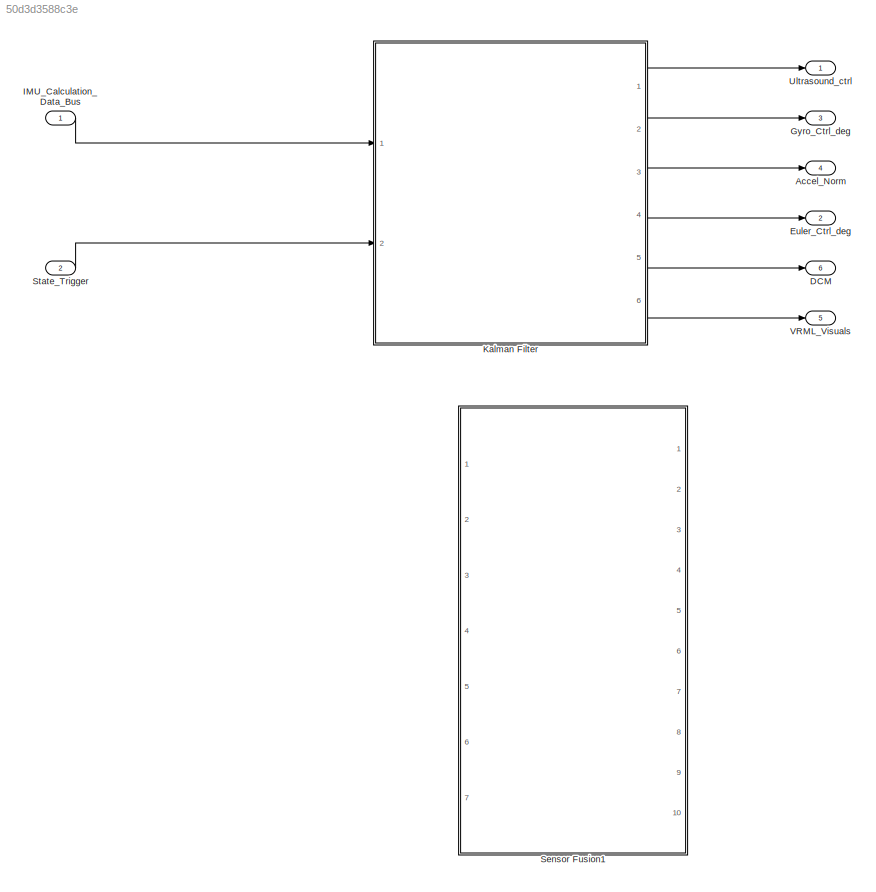
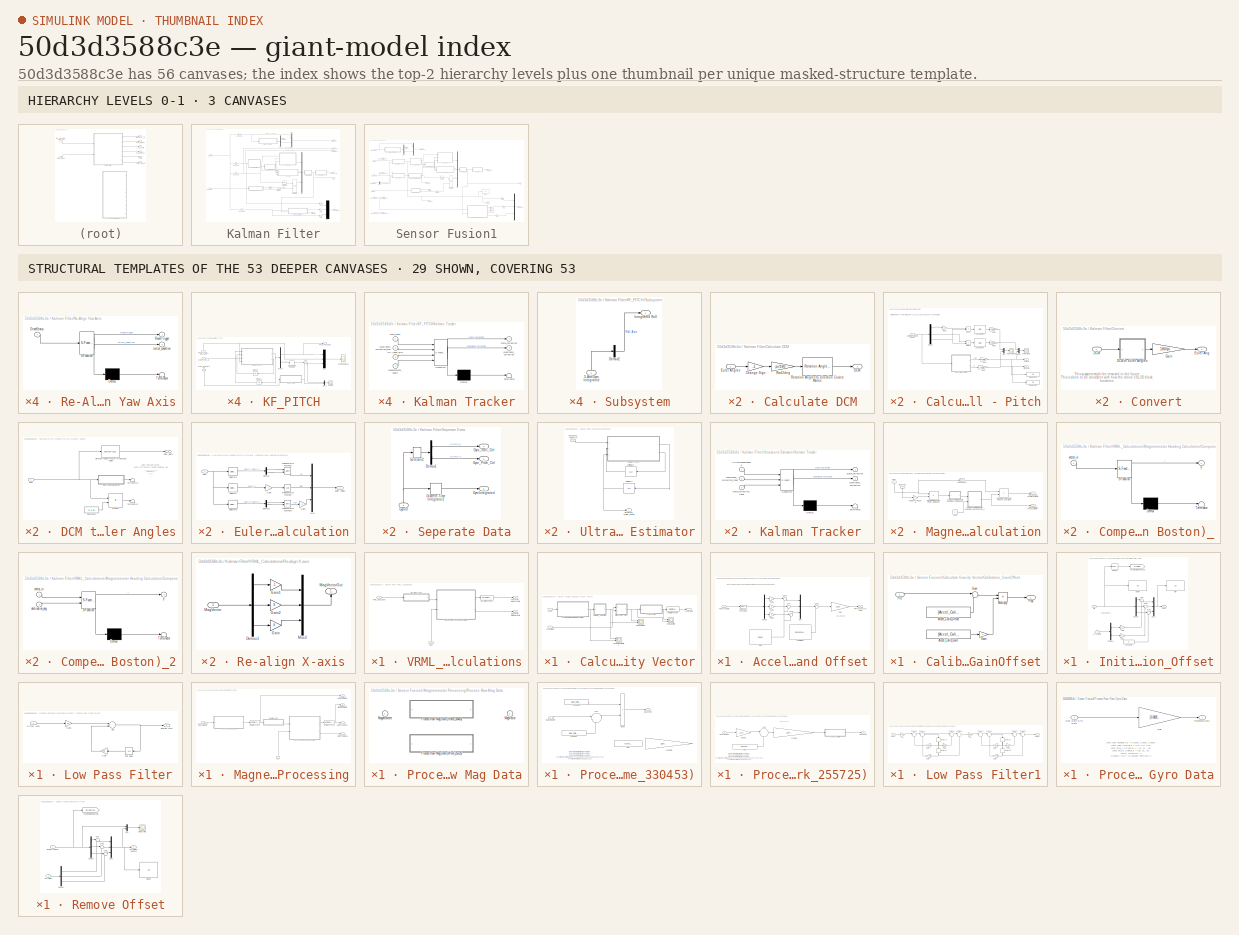
[diagram: thumbnail index - top-2 hierarchy levels (3 canvases) + 29 structural-template representatives of the remaining 53 canvases]
MODEL slx_50d3d3588c3e
KIND model
BLOCK [Outport] Accel_Norm
  IconDisplay = Port number
  Port = 4
BLOCK [Outport] DCM
  IconDisplay = Port number
  Port = 6
BLOCK [Outport] Euler_Ctrl_deg
  IconDisplay = Port number
  Port = 2
BLOCK [Outport] Gyro_Ctrl_deg
  IconDisplay = Port number
  Port = 3
BLOCK [Inport] IMU_Calculation_Data_Bus
  IconDisplay = Port number
  OutDataTypeStr = Bus: Measurement_Calculation_Bus
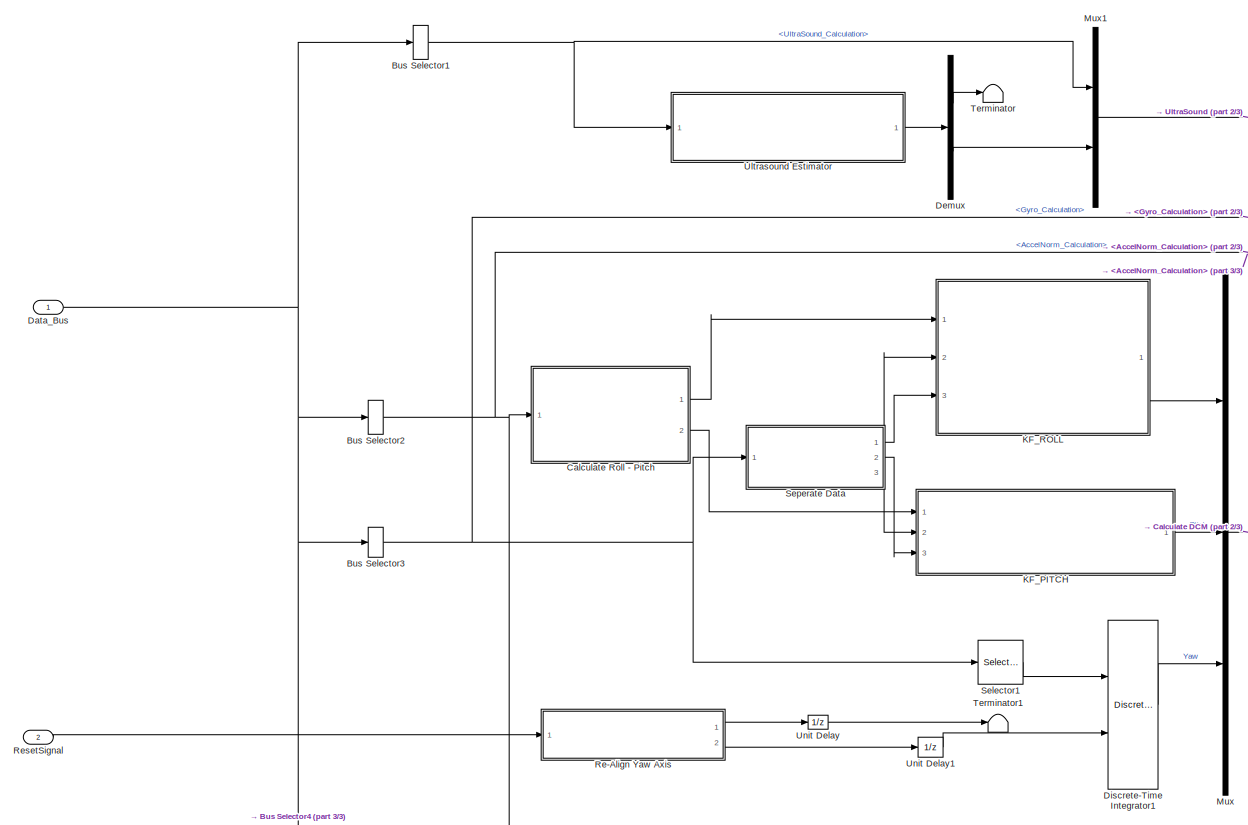
[diagram: Kalman Filter - part 1/3, full width, middle band]
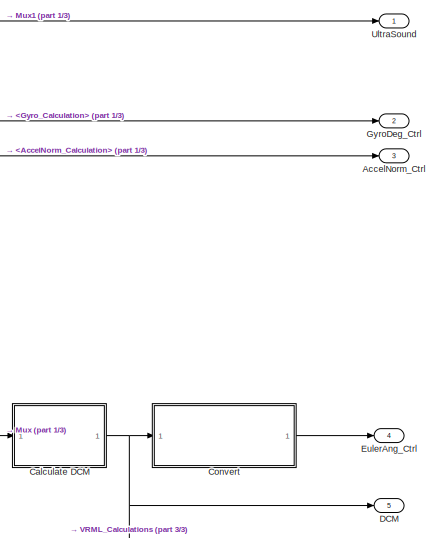
[diagram: Kalman Filter - part 2/3, top right region]
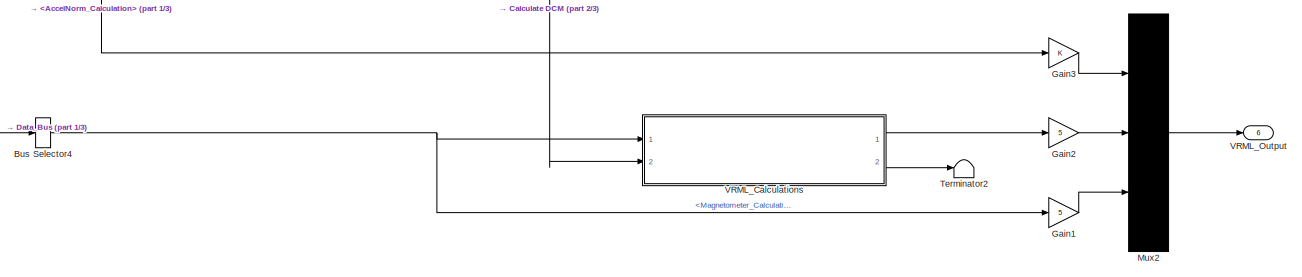
[diagram: Kalman Filter - part 3/3, full width, bottom band]
BLOCK [SubSystem] Kalman Filter
  Ports = [2, 6]
  RequestExecContextInheritance = off
BLOCK [Outport] Kalman Filter/AccelNorm_Ctrl
  IconDisplay = Port number
  Port = 3
BLOCK [BusSelector] Kalman Filter/Bus Selector1
  OutputSignals = UltraSound_Calculation
  Ports = [1, 1]
BLOCK [BusSelector] Kalman Filter/Bus Selector2
  OutputSignals = AccelNorm_Calculation
  Ports = [1, 1]
BLOCK [BusSelector] Kalman Filter/Bus Selector3
  OutputSignals = Gyro_Calculation
  Ports = [1, 1]
BLOCK [BusSelector] Kalman Filter/Bus Selector4
  OutputSignals = Magnetometer_Calculation
  Ports = [1, 1]
BLOCK [SubSystem] Kalman Filter/Calculate DCM
  Ports = [1, 1]
  RequestExecContextInheritance = off
BLOCK [Gain] Kalman Filter/Calculate DCM/Change Sign
  Gain = -1
  OutDataTypeStr = Inherit: Inherit via internal rule
  ParamDataTypeStr = Inherit: Inherit via internal rule
  SaturateOnIntegerOverflow = off
BLOCK [Outport] Kalman Filter/Calculate DCM/DCM
  IconDisplay = Port number
BLOCK [Inport] Kalman Filter/Calculate DCM/Euler Angles
  IconDisplay = Port number
BLOCK [Gain] Kalman Filter/Calculate DCM/Rad2deg
  Gain = pi/180
  OutDataTypeStr = Inherit: Inherit via internal rule
  ParamDataTypeStr = Inherit: Inherit via internal rule
  SaturateOnIntegerOverflow = off
BLOCK [Reference] Kalman Filter/Calculate DCM/Rotation Angles to Direction Cosine Matrix  REF=aerolibtransform2/Rotation Angles to
Direction Cosine Matrix
  AttributesFormatString = Rotation Order: %<rotationOrder>
  Ports = [1, 1]
  SourceBlock = aerolibtransform2/Rotation Angles to\nDirection Cosine Matrix
  SourceType = Ang2DCM
  rotationOrder = XYZ
BLOCK [SubSystem] Kalman Filter/Calculate Roll - Pitch
  Ports = [1, 2]
  RequestExecContextInheritance = off
BLOCK [Trigonometry] Kalman Filter/Calculate Roll - Pitch/Calculate Pitch
  Operator = atan
  Ports = [1, 1]
BLOCK [Trigonometry] Kalman Filter/Calculate Roll - Pitch/Calculate Roll
  Operator = atan
  Ports = [1, 1]
BLOCK [Demux] Kalman Filter/Calculate Roll - Pitch/Demux
  DisplayOption = bar
  Outputs = 3
  Ports = [1, 3]
BLOCK [Display] Kalman Filter/Calculate Roll - Pitch/Display Pitch
  Commented = on
  Decimation = 1
  Ports = [1]
BLOCK [Display] Kalman Filter/Calculate Roll - Pitch/Display Roll
  Commented = on
  Decimation = 1
  Ports = [1]
BLOCK [Product] Kalman Filter/Calculate Roll - Pitch/Divide
  InputSameDT = off
  Inputs = */
  OutDataTypeStr = Inherit: Inherit via internal rule
  Ports = [2, 1]
  RndMeth = Floor
  SaturateOnIntegerOverflow = off
BLOCK [Product] Kalman Filter/Calculate Roll - Pitch/Divide1
  InputSameDT = off
  Inputs = */
  OutDataTypeStr = Inherit: Inherit via internal rule
  Ports = [2, 1]
  RndMeth = Floor
  SaturateOnIntegerOverflow = off
BLOCK [Gain] Kalman Filter/Calculate Roll - Pitch/Gain1
  Gain = 180/pi
  OutDataTypeStr = Inherit: Inherit via internal rule
  ParamDataTypeStr = Inherit: Inherit via internal rule
  SaturateOnIntegerOverflow = off
BLOCK [Gain] Kalman Filter/Calculate Roll - Pitch/Gain2
  Gain = -1
  OutDataTypeStr = Inherit: Inherit via internal rule
  ParamDataTypeStr = Inherit: Inherit via internal rule
  SaturateOnIntegerOverflow = off
BLOCK [Gain] Kalman Filter/Calculate Roll - Pitch/Gain3
  Gain = 180/pi
  OutDataTypeStr = Inherit: Inherit via internal rule
  ParamDataTypeStr = Inherit: Inherit via internal rule
  SaturateOnIntegerOverflow = off
BLOCK [Gain] Kalman Filter/Calculate Roll - Pitch/Gain4
  Gain = 180/pi
  OutDataTypeStr = Inherit: Inherit via internal rule
  ParamDataTypeStr = Inherit: Inherit via internal rule
  SaturateOnIntegerOverflow = off
BLOCK [Gain] Kalman Filter/Calculate Roll - Pitch/Gain5
  Gain = -180/pi
  OutDataTypeStr = Inherit: Inherit via internal rule
  ParamDataTypeStr = Inherit: Inherit via internal rule
  SaturateOnIntegerOverflow = off
BLOCK [SubSystem] Kalman Filter/Calculate Roll - Pitch/MATLAB Function
  ErrorFcn = Stateflow.Translate.translate
  PermitHierarchicalResolution = ExplicitOnly
  Ports = [1, 2]
  RequestExecContextInheritance = off
  SFBlockType = MATLAB Function
  TreatAsAtomicUnit = on
BLOCK [Demux] Kalman Filter/Calculate Roll - Pitch/MATLAB Function/ Demux 
  Outputs = 1
  Ports = [1, 1]
BLOCK [S-Function] Kalman Filter/Calculate Roll - Pitch/MATLAB Function/ SFunction 
  EnableBusSupport = on
  FunctionName = sf_sfun
  PortCounts = [1 3]
  Ports = [1, 3]
  Tag = Stateflow S-Function Navigation_KF_Subsystem_child 1
BLOCK [Terminator] Kalman Filter/Calculate Roll - Pitch/MATLAB Function/ Terminator 
BLOCK [Inport] Kalman Filter/Calculate Roll - Pitch/MATLAB Function/Ax_Ay_Az
  IconDisplay = Port number
BLOCK [Outport] Kalman Filter/Calculate Roll - Pitch/MATLAB Function/Pitch
  IconDisplay = Port number
  Port = 2
BLOCK [Outport] Kalman Filter/Calculate Roll - Pitch/MATLAB Function/Roll
  IconDisplay = Port number
BLOCK [Mux] Kalman Filter/Calculate Roll - Pitch/Mux
  Commented = on
  DisplayOption = bar
  Inputs = 2
  Ports = [2, 1]
BLOCK [Mux] Kalman Filter/Calculate Roll - Pitch/Mux1
  Commented = on
  DisplayOption = bar
  Inputs = 2
  Ports = [2, 1]
BLOCK [Inport] Kalman Filter/Calculate Roll - Pitch/Normalized Gravity Vector
  IconDisplay = Port number
BLOCK [Scope] Kalman Filter/Calculate Roll - Pitch/PitchCompare
  Commented = on
  DataFormat = StructureWithTime
  Floating = off
  LimitDataPoints = off
  NumInputPorts = 1
  Ports = [1]
  SampleTime = 0
  SaveName = ScopeData9
  ShowLegends = off
  YMax = 3
  YMin = -11
BLOCK [Outport] Kalman Filter/Calculate Roll - Pitch/PitchRaw
  IconDisplay = Port number
  Port = 2
BLOCK [Scope] Kalman Filter/Calculate Roll - Pitch/Roll Compare
  Commented = on
  DataFormat = StructureWithTime
  Floating = off
  LimitDataPoints = off
  NumInputPorts = 1
  Ports = [1]
  SampleTime = 0
  SaveName = ScopeData5
  ShowLegends = off
  YMax = -1.7
  YMin = -2.175
BLOCK [Outport] Kalman Filter/Calculate Roll - Pitch/RollRaw
  IconDisplay = Port number
BLOCK [SubSystem] Kalman Filter/Convert
  Ports = [1, 1]
  RequestExecContextInheritance = off
BLOCK [Inport] Kalman Filter/Convert/DCM
  IconDisplay = Port number
BLOCK [SubSystem] Kalman Filter/Convert/DCM to Euler Angles
  Ports = [1, 1]
  RequestExecContextInheritance = off
BLOCK [Constant] Kalman Filter/Convert/DCM to Euler Angles/Constant2
  Value = [1 0 0]
BLOCK [Inport] Kalman Filter/Convert/DCM to Euler Angles/DCM
  IconDisplay = Port number
BLOCK [Reference] Kalman Filter/Convert/DCM to Euler Angles/Direction Cosine Matrix to Rotation Angles  REF=aerolibtransform2/Direction Cosine Matrix
to Rotation Angles
  AttributesFormatString = Rotation Order: %<rotationOrder>
  Ports = [1, 1]
  SourceBlock = aerolibtransform2/Direction Cosine Matrix\nto Rotation Angles
  SourceType = DCM2Ang
  lim = Default
  rotationOrder = XYZ
BLOCK [SubSystem] Kalman Filter/Convert/DCM to Euler Angles/EulerAnglesCalculation
  Ports = [1, 1]
  RequestExecContextInheritance = off
  TreatAsAtomicUnit = on
BLOCK [Inport] Kalman Filter/Convert/DCM to Euler Angles/EulerAnglesCalculation/DCM
  IconDisplay = Port number
BLOCK [Demux] Kalman Filter/Convert/DCM to Euler Angles/EulerAnglesCalculation/Demux
  DisplayOption = bar
  Outputs = 2
  Ports = [1, 2]
BLOCK [Demux] Kalman Filter/Convert/DCM to Euler Angles/EulerAnglesCalculation/Demux1
  DisplayOption = bar
  Outputs = 2
  Ports = [1, 2]
BLOCK [Outport] Kalman Filter/Convert/DCM to Euler Angles/EulerAnglesCalculation/Euler Angles
  IconDisplay = Port number
  InitialOutput = [0 0 0]
BLOCK [Gain] Kalman Filter/Convert/DCM to Euler Angles/EulerAnglesCalculation/Gain
  Gain = -1
  OutDataTypeStr = Inherit: Inherit via internal rule
  ParamDataTypeStr = Inherit: Inherit via internal rule
  SaturateOnIntegerOverflow = off
BLOCK [Gain] Kalman Filter/Convert/DCM to Euler Angles/EulerAnglesCalculation/Gain1
  ParamDataTypeStr = Inherit: Inherit via internal rule
  SaturateOnIntegerOverflow = off
BLOCK [Mux] Kalman Filter/Convert/DCM to Euler Angles/EulerAnglesCalculation/Mux
  DisplayOption = bar
  Inputs = 3
  Ports = [3, 1]
BLOCK [Selector] Kalman Filter/Convert/DCM to Euler Angles/EulerAnglesCalculation/Selector
  IndexMode = Zero-based
  IndexOptions = Index vector (dialog),Index vector (dialog)
  Indices = 2,0
  InputPortWidth = 3
  NumberOfDimensions = 2
  OutputSizes = 1,1
  Ports = [1, 1]
BLOCK [Selector] Kalman Filter/Convert/DCM to Euler Angles/EulerAnglesCalculation/Selector1
  IndexMode = Zero-based
  IndexOptions = Index vector (dialog),Index vector (dialog)
  Indices = 2,[1 2]
  InputPortWidth = 3
  NumberOfDimensions = 2
  OutputSizes = 1,1
  Ports = [1, 1]
BLOCK [Selector] Kalman Filter/Convert/DCM to Euler Angles/EulerAnglesCalculation/Selector2
  IndexMode = Zero-based
  IndexOptions = Index vector (dialog),Index vector (dialog)
  Indices = [1 0],0
  InputPortWidth = 3
  NumberOfDimensions = 2
  OutputSizes = 1,1
  Ports = [1, 1]
BLOCK [Trigonometry] Kalman Filter/Convert/DCM to Euler Angles/EulerAnglesCalculation/Trigonometric Function
  Operator = asin
  Ports = [1, 1]
BLOCK [Trigonometry] Kalman Filter/Convert/DCM to Euler Angles/EulerAnglesCalculation/Trigonometric Function1
  Operator = atan2
  Ports = [2, 1]
BLOCK [Trigonometry] Kalman Filter/Convert/DCM to Euler Angles/EulerAnglesCalculation/Trigonometric Function2
  Operator = atan2
  Ports = [2, 1]
BLOCK [Outport] Kalman Filter/Convert/DCM to Euler Angles/Euler_Block
  IconDisplay = Port number
BLOCK [Product] Kalman Filter/Convert/DCM to Euler Angles/Product
  InputSameDT = off
  Multiplication = Matrix(*)
  OutDataTypeStr = Inherit: Inherit via internal rule
  Ports = [2, 1]
  RndMeth = Floor
  SaturateOnIntegerOverflow = off
BLOCK [Terminator] Kalman Filter/Convert/DCM to Euler Angles/Terminator1
BLOCK [Terminator] Kalman Filter/Convert/DCM to Euler Angles/Terminator3
BLOCK [Outport] Kalman Filter/Convert/Euler Ang
  IconDisplay = Port number
BLOCK [Gain] Kalman Filter/Convert/Gain
  Gain = 180/pi
  OutDataTypeStr = Inherit: Inherit via internal rule
  ParamDataTypeStr = Inherit: Inherit via internal rule
  SaturateOnIntegerOverflow = off
BLOCK [Outport] Kalman Filter/DCM
  IconDisplay = Port number
  Port = 5
BLOCK [Inport] Kalman Filter/Data_Bus
  IconDisplay = Port number
BLOCK [Demux] Kalman Filter/Demux
  DisplayOption = bar
  Outputs = 2
  Ports = [1, 2]
BLOCK [DiscreteIntegrator] Kalman Filter/Discrete-Time Integrator1
  ICPrevOutput = DiscIntNeverNeededParam
  ICPrevScaledInput = DiscIntNeverNeededParam
  InitialConditionSource = external
  OutDataTypeStr = double
  Ports = [2, 1]
  SampleTime = 1/400
BLOCK [Outport] Kalman Filter/EulerAng_Ctrl
  IconDisplay = Port number
  Port = 4
BLOCK [Gain] Kalman Filter/Gain1
  Gain = 5
  OutDataTypeStr = double
  ParamDataTypeStr = Inherit: Inherit via internal rule
  SaturateOnIntegerOverflow = off
BLOCK [Gain] Kalman Filter/Gain2
  Gain = 5
  OutDataTypeStr = double
  ParamDataTypeStr = Inherit: Inherit via internal rule
  SaturateOnIntegerOverflow = off
BLOCK [Gain] Kalman Filter/Gain3
  OutDataTypeStr = double
  ParamDataTypeStr = Inherit: Inherit via internal rule
  SaturateOnIntegerOverflow = off
BLOCK [Outport] Kalman Filter/GyroDeg_Ctrl
  IconDisplay = Port number
  Port = 2
BLOCK [SubSystem] Kalman Filter/KF_PITCH
  Ports = [3, 1]
  RequestExecContextInheritance = off
BLOCK [Demux] Kalman Filter/KF_PITCH/Demux
  DisplayOption = bar
  Outputs = 2
  Ports = [1, 2]
BLOCK [DiscreteIntegrator] Kalman Filter/KF_PITCH/Discrete-Time Integrator1
  ICPrevOutput = DiscIntNeverNeededParam
  ICPrevScaledInput = DiscIntNeverNeededParam
  Ports = [1, 1]
  SampleTime = 1/400
BLOCK [Inport] Kalman Filter/KF_PITCH/GYRO_CTRL_IN
  IconDisplay = Port number
  Port = 3
BLOCK [Inport] Kalman Filter/KF_PITCH/GYRO_INTEGRATED
  IconDisplay = Port number
  Port = 2
BLOCK [Scope] Kalman Filter/KF_PITCH/KF Pitch Compare
  DataFormat = StructureWithTime
  Floating = off
  LimitDataPoints = off
  NumInputPorts = 1
  Ports = [1]
  SampleTime = 0
  SaveName = ScopeData10
  ShowLegends = off
  TimeRange = 1.484669176976869
  YMax = 30
  YMin = 0
BLOCK [SubSystem] Kalman Filter/KF_PITCH/Kalman Tracker
  ErrorFcn = Stateflow.Translate.translate
  PermitHierarchicalResolution = ExplicitOnly
  Ports = [4, 2]
  RequestExecContextInheritance = off
  SFBlockType = MATLAB Function
  TreatAsAtomicUnit = on
BLOCK [Demux] Kalman Filter/KF_PITCH/Kalman Tracker/ Demux 
  Outputs = 1
  Ports = [1, 1]
BLOCK [S-Function] Kalman Filter/KF_PITCH/Kalman Tracker/ SFunction 
  EnableBusSupport = on
  FunctionName = sf_sfun
  PortCounts = [4 3]
  Ports = [4, 3]
  Tag = Stateflow S-Function Navigation_KF_Subsystem_child 17
BLOCK [Terminator] Kalman Filter/KF_PITCH/Kalman Tracker/ Terminator 
BLOCK [Outport] Kalman Filter/KF_PITCH/Kalman Tracker/covariance_correction
  IconDisplay = Port number
  Port = 2
BLOCK [Inport] Kalman Filter/KF_PITCH/Kalman Tracker/covariance_correction_prev
  IconDisplay = Port number
  Port = 2
BLOCK [Inport] Kalman Filter/KF_PITCH/Kalman Tracker/ctrl_input_gyro
  IconDisplay = Port number
  Port = 3
BLOCK [Inport] Kalman Filter/KF_PITCH/Kalman Tracker/measurement_angle
  IconDisplay = Port number
  Port = 4
BLOCK [Inport] Kalman Filter/KF_PITCH/Kalman Tracker/prev_state
  IconDisplay = Port number
BLOCK [Outport] Kalman Filter/KF_PITCH/Kalman Tracker/state_correction
  IconDisplay = Port number
BLOCK [Mux] Kalman Filter/KF_PITCH/Mux
  DisplayOption = bar
  Inputs = 3
  Ports = [3, 1]
BLOCK [Mux] Kalman Filter/KF_PITCH/Mux1
  Commented = on
  DisplayOption = bar
  Inputs = 2
  Ports = [2, 1]
BLOCK [Inport] Kalman Filter/KF_PITCH/PITCH_ACCEL_MEASURE
  IconDisplay = Port number
BLOCK [Outport] Kalman Filter/KF_PITCH/PITCH_FILTERED
  IconDisplay = Port number
BLOCK [Scope] Kalman Filter/KF_PITCH/Scope
  Commented = on
  DataFormat = StructureWithTime
  Floating = off
  LimitDataPoints = off
  NumInputPorts = 1
  Ports = [1]
  SampleTime = 0
  SaveName = ScopeData14
  ShowLegends = off
  YMax = 1.05
  YMin = 0.05
BLOCK [SubSystem] Kalman Filter/KF_PITCH/Subsystem
  Ports = [1, 1]
  RequestExecContextInheritance = off
BLOCK [Inport] Kalman Filter/KF_PITCH/Subsystem/3-Axis Gyro Integrated
  IconDisplay = Port number
BLOCK [Demux] Kalman Filter/KF_PITCH/Subsystem/Demux2
  DisplayOption = bar
  Outputs = 3
  Ports = [1, 3]
BLOCK [Outport] Kalman Filter/KF_PITCH/Subsystem/Integrated Roll
  IconDisplay = Port number
BLOCK [Sum] Kalman Filter/KF_PITCH/Sum
  IconShape = round
  InputSameDT = off
  Inputs = |-+
  OutDataTypeStr = Inherit: Inherit via internal rule
  Ports = [2, 1]
  SaturateOnIntegerOverflow = off
BLOCK [UnitDelay] Kalman Filter/KF_PITCH/Unit Delay
  InitialCondition = eye(2)
  InputProcessing = Elements as channels (sample based)
  SampleTime = -1
BLOCK [UnitDelay] Kalman Filter/KF_PITCH/Unit Delay1
  InitialCondition = [0 0]'
  InputProcessing = Elements as channels (sample based)
  SampleTime = -1
BLOCK [SubSystem] Kalman Filter/KF_ROLL
  Ports = [3, 1]
  RequestExecContextInheritance = off
BLOCK [Demux] Kalman Filter/KF_ROLL/Demux
  DisplayOption = bar
  Outputs = 2
  Ports = [1, 2]
BLOCK [DiscreteIntegrator] Kalman Filter/KF_ROLL/Discrete-Time Integrator1
  ICPrevOutput = DiscIntNeverNeededParam
  ICPrevScaledInput = DiscIntNeverNeededParam
  Ports = [1, 1]
  SampleTime = 1/400
BLOCK [Inport] Kalman Filter/KF_ROLL/GYRO_INTEGRATED
  IconDisplay = Port number
  Port = 2
BLOCK [Inport] Kalman Filter/KF_ROLL/GYRO_ROLL_CTRL_IN
  IconDisplay = Port number
  Port = 3
BLOCK [Scope] Kalman Filter/KF_ROLL/KF Roll Compare
  DataFormat = StructureWithTime
  Floating = off
  LimitDataPoints = off
  NumInputPorts = 2
  Ports = [2]
  SampleTime = 0
  SaveName = ScopeData10
  ShowLegends = off
  YMax = -18~1
  YMin = -20.1~-15
  ZoomMode = yonly
BLOCK [SubSystem] Kalman Filter/KF_ROLL/Kalman Tracker
  ErrorFcn = Stateflow.Translate.translate
  PermitHierarchicalResolution = ExplicitOnly
  Ports = [4, 2]
  RequestExecContextInheritance = off
  SFBlockType = MATLAB Function
  TreatAsAtomicUnit = on
BLOCK [Demux] Kalman Filter/KF_ROLL/Kalman Tracker/ Demux 
  Outputs = 1
  Ports = [1, 1]
BLOCK [S-Function] Kalman Filter/KF_ROLL/Kalman Tracker/ SFunction 
  EnableBusSupport = on
  FunctionName = sf_sfun
  PortCounts = [4 3]
  Ports = [4, 3]
  Tag = Stateflow S-Function Navigation_KF_Subsystem_child 16
BLOCK [Terminator] Kalman Filter/KF_ROLL/Kalman Tracker/ Terminator 
BLOCK [Outport] Kalman Filter/KF_ROLL/Kalman Tracker/covariance_correction
  IconDisplay = Port number
  Port = 2
BLOCK [Inport] Kalman Filter/KF_ROLL/Kalman Tracker/covariance_correction_prev
  IconDisplay = Port number
  Port = 2
BLOCK [Inport] Kalman Filter/KF_ROLL/Kalman Tracker/ctrl_input_gyro
  IconDisplay = Port number
  Port = 3
BLOCK [Inport] Kalman Filter/KF_ROLL/Kalman Tracker/measurement_angle
  IconDisplay = Port number
  Port = 4
BLOCK [Inport] Kalman Filter/KF_ROLL/Kalman Tracker/prev_state
  IconDisplay = Port number
BLOCK [Outport] Kalman Filter/KF_ROLL/Kalman Tracker/state_correction
  IconDisplay = Port number
BLOCK [Mux] Kalman Filter/KF_ROLL/Mux
  DisplayOption = bar
  Inputs = 3
  Ports = [3, 1]
BLOCK [Mux] Kalman Filter/KF_ROLL/Mux1
  Commented = on
  DisplayOption = bar
  Inputs = 2
  Ports = [2, 1]
BLOCK [Inport] Kalman Filter/KF_ROLL/ROLL_ACCEL_MEASURE
  IconDisplay = Port number
BLOCK [Outport] Kalman Filter/KF_ROLL/ROLL_FILTERED
  IconDisplay = Port number
BLOCK [Scope] Kalman Filter/KF_ROLL/Scope
  Commented = on
  DataFormat = StructureWithTime
  Floating = off
  LimitDataPoints = off
  NumInputPorts = 1
  Ports = [1]
  SampleTime = 0
  SaveName = ScopeData14
  ShowLegends = off
  YMax = 1.05
  YMin = 0.05
  ZoomMode = yonly
BLOCK [SubSystem] Kalman Filter/KF_ROLL/Subsystem
  Ports = [1, 1]
  RequestExecContextInheritance = off
BLOCK [Inport] Kalman Filter/KF_ROLL/Subsystem/3-Axis Gyro Integrated
  IconDisplay = Port number
BLOCK [Demux] Kalman Filter/KF_ROLL/Subsystem/Demux2
  DisplayOption = bar
  Outputs = 3
  Ports = [1, 3]
BLOCK [Outport] Kalman Filter/KF_ROLL/Subsystem/Integrated Roll
  IconDisplay = Port number
BLOCK [Sum] Kalman Filter/KF_ROLL/Sum
  IconShape = round
  InputSameDT = off
  Inputs = |-+
  OutDataTypeStr = Inherit: Inherit via internal rule
  Ports = [2, 1]
  SaturateOnIntegerOverflow = off
BLOCK [UnitDelay] Kalman Filter/KF_ROLL/Unit Delay
  InitialCondition = eye(2)
  InputProcessing = Elements as channels (sample based)
  SampleTime = -1
BLOCK [UnitDelay] Kalman Filter/KF_ROLL/Unit Delay1
  InitialCondition = [0 0]'
  InputProcessing = Elements as channels (sample based)
  SampleTime = -1
BLOCK [Mux] Kalman Filter/Mux
  DisplayOption = bar
  Inputs = 3
  Ports = [3, 1]
BLOCK [Mux] Kalman Filter/Mux1
  DisplayOption = bar
  Inputs = 2
  Ports = [2, 1]
BLOCK [Mux] Kalman Filter/Mux2
  DisplayOption = bar
  Inputs = 3
  Ports = [3, 1]
BLOCK [SubSystem] Kalman Filter/Re-Align Yaw Axis
  ErrorFcn = Stateflow.Translate.translate
  PermitHierarchicalResolution = ExplicitOnly
  Ports = [1, 2]
  RequestExecContextInheritance = off
  SFBlockType = MATLAB Function
  TreatAsAtomicUnit = on
BLOCK [Demux] Kalman Filter/Re-Align Yaw Axis/ Demux 
  Outputs = 1
  Ports = [1, 1]
BLOCK [S-Function] Kalman Filter/Re-Align Yaw Axis/ SFunction 
  EnableBusSupport = on
  FunctionName = sf_sfun
  PortCounts = [1 3]
  Ports = [1, 3]
  Tag = Stateflow S-Function Navigation_KF_Subsystem_child 11
BLOCK [Terminator] Kalman Filter/Re-Align Yaw Axis/ Terminator 
BLOCK [Inport] Kalman Filter/Re-Align Yaw Axis/DroneStatus
  IconDisplay = Port number
BLOCK [Outport] Kalman Filter/Re-Align Yaw Axis/ResetTrigger
  IconDisplay = Port number
BLOCK [Outport] Kalman Filter/Re-Align Yaw Axis/initial_condition
  IconDisplay = Port number
  Port = 2
BLOCK [Inport] Kalman Filter/ResetSignal
  IconDisplay = Port number
  Port = 2
BLOCK [Selector] Kalman Filter/Selector1
  IndexMode = Zero-based
  Indices = [2]
  InputPortWidth = 3
  Ports = [1, 1]
BLOCK [SubSystem] Kalman Filter/Seperate Data
  Ports = [1, 3]
  RequestExecContextInheritance = off
BLOCK [Demux] Kalman Filter/Seperate Data/Demux1
  DisplayOption = bar
  Outputs = [1 1]
  Ports = [1, 2]
BLOCK [DiscreteIntegrator] Kalman Filter/Seperate Data/Discrete-Time Integrator1
  ICPrevOutput = DiscIntNeverNeededParam
  ICPrevScaledInput = DiscIntNeverNeededParam
  Ports = [1, 1]
  SampleTime = 1/400
BLOCK [Inport] Kalman Filter/Seperate Data/GyroIn
  IconDisplay = Port number
BLOCK [Outport] Kalman Filter/Seperate Data/GyroIntegrated
  IconDisplay = Port number
  Port = 3
BLOCK [Outport] Kalman Filter/Seperate Data/Gyro_Pitch_Ctrl
  IconDisplay = Port number
  Port = 2
BLOCK [Outport] Kalman Filter/Seperate Data/Gyro_Roll_Ctrl
  IconDisplay = Port number
BLOCK [Selector] Kalman Filter/Seperate Data/Selector2
  IndexMode = Zero-based
  Indices = [0 1]
  InputPortWidth = 3
  Ports = [1, 1]
BLOCK [Terminator] Kalman Filter/Terminator
BLOCK [Terminator] Kalman Filter/Terminator1
BLOCK [Terminator] Kalman Filter/Terminator2
BLOCK [Outport] Kalman Filter/UltraSound
  IconDisplay = Port number
BLOCK [SubSystem] Kalman Filter/Ultrasound Estimator
  Ports = [1, 1]
  RequestExecContextInheritance = off
BLOCK [SubSystem] Kalman Filter/Ultrasound Estimator/Kalman Tracker
  ErrorFcn = Stateflow.Translate.translate
  PermitHierarchicalResolution = ExplicitOnly
  Ports = [3, 2]
  RequestExecContextInheritance = off
  SFBlockType = MATLAB Function
  TreatAsAtomicUnit = on
BLOCK [Demux] Kalman Filter/Ultrasound Estimator/Kalman Tracker/ Demux 
  Outputs = 1
  Ports = [1, 1]
BLOCK [S-Function] Kalman Filter/Ultrasound Estimator/Kalman Tracker/ SFunction 
  EnableBusSupport = on
  FunctionName = sf_sfun
  PortCounts = [3 3]
  Ports = [3, 3]
  Tag = Stateflow S-Function Navigation_KF_Subsystem_child 19
BLOCK [Terminator] Kalman Filter/Ultrasound Estimator/Kalman Tracker/ Terminator 
BLOCK [Inport] Kalman Filter/Ultrasound Estimator/Kalman Tracker/UltraSoundMeasure
  IconDisplay = Port number
BLOCK [Outport] Kalman Filter/Ultrasound Estimator/Kalman Tracker/covariance_correction
  IconDisplay = Port number
  Port = 2
BLOCK [Inport] Kalman Filter/Ultrasound Estimator/Kalman Tracker/covariance_correction_input
  IconDisplay = Port number
  Port = 2
BLOCK [Outport] Kalman Filter/Ultrasound Estimator/Kalman Tracker/state_correction
  IconDisplay = Port number
BLOCK [Inport] Kalman Filter/Ultrasound Estimator/Kalman Tracker/state_correction_input
  IconDisplay = Port number
  Port = 3
BLOCK [Inport] Kalman Filter/Ultrasound Estimator/UltraSound_Measure
  IconDisplay = Port number
BLOCK [Outport] Kalman Filter/Ultrasound Estimator/UltraSound_Position_Velocity 
  IconDisplay = Port number
BLOCK [UnitDelay] Kalman Filter/Ultrasound Estimator/Unit Delay1
  InitialCondition = [0 0 ]
  InputProcessing = Elements as channels (sample based)
  SampleTime = -1
BLOCK [UnitDelay] Kalman Filter/Ultrasound Estimator/Unit Delay2
  InitialCondition = eye(2)
  InputProcessing = Elements as channels (sample based)
  SampleTime = -1
BLOCK [UnitDelay] Kalman Filter/Unit Delay
  InputProcessing = Elements as channels (sample based)
  SampleTime = -1
BLOCK [UnitDelay] Kalman Filter/Unit Delay1
  InputProcessing = Elements as channels (sample based)
  SampleTime = -1
BLOCK [SubSystem] Kalman Filter/VRML_Calculations
  Ports = [2, 2]
  RequestExecContextInheritance = off
BLOCK [Inport] Kalman Filter/VRML_Calculations/DCM
  IconDisplay = Port number
  Port = 2
BLOCK [Outport] Kalman Filter/VRML_Calculations/MagVector_BodyFrame
  IconDisplay = Port number
BLOCK [Outport] Kalman Filter/VRML_Calculations/MagVector_GlobalFrame
  IconDisplay = Port number
  Port = 2
BLOCK [SubSystem] Kalman Filter/VRML_Calculations/Magnetometer Heading Calculation
  Ports = [2, 2]
  RequestExecContextInheritance = off
BLOCK [SubSystem] Kalman Filter/VRML_Calculations/Magnetometer Heading Calculation/Compensate for Magnetic Declination (~60 degrees in Boston)_
  Commented = through
  ErrorFcn = Stateflow.Translate.translate
  PermitHierarchicalResolution = ExplicitOnly
  Ports = [1, 1]
  RequestExecContextInheritance = off
  SFBlockType = MATLAB Function
  TreatAsAtomicUnit = on
BLOCK [Demux] Kalman Filter/VRML_Calculations/Magnetometer Heading Calculation/Compensate for Magnetic Declination (~60 degrees in Boston)_/ Demux 
  Outputs = 1
  Ports = [1, 1]
BLOCK [S-Function] Kalman Filter/VRML_Calculations/Magnetometer Heading Calculation/Compensate for Magnetic Declination (~60 degrees in Boston)_/ SFunction 
  EnableBusSupport = on
  FunctionName = sf_sfun
  PortCounts = [1 2]
  Ports = [1, 2]
  Tag = Stateflow S-Function Navigation_KF_Subsystem_child 30
BLOCK [Terminator] Kalman Filter/VRML_Calculations/Magnetometer Heading Calculation/Compensate for Magnetic Declination (~60 degrees in Boston)_/ Terminator 
BLOCK [Inport] Kalman Filter/VRML_Calculations/Magnetometer Heading Calculation/Compensate for Magnetic Declination (~60 degrees in Boston)_/vector_in
  IconDisplay = Port number
BLOCK [Outport] Kalman Filter/VRML_Calculations/Magnetometer Heading Calculation/Compensate for Magnetic Declination (~60 degrees in Boston)_/y
  IconDisplay = Port number
BLOCK [SubSystem] Kalman Filter/VRML_Calculations/Magnetometer Heading Calculation/Compensate for Magnetic Declination (~67 degrees in Boston)_2
  ErrorFcn = Stateflow.Translate.translate
  PermitHierarchicalResolution = ExplicitOnly
  Ports = [2, 1]
  RequestExecContextInheritance = off
  SFBlockType = MATLAB Function
  TreatAsAtomicUnit = on
BLOCK [Demux] Kalman Filter/VRML_Calculations/Magnetometer Heading Calculation/Compensate for Magnetic Declination (~67 degrees in Boston)_2/ Demux 
  Outputs = 1
  Ports = [1, 1]
BLOCK [S-Function] Kalman Filter/VRML_Calculations/Magnetometer Heading Calculation/Compensate for Magnetic Declination (~67 degrees in Boston)_2/ SFunction 
  EnableBusSupport = on
  FunctionName = sf_sfun
  PortCounts = [2 2]
  Ports = [2, 2]
  Tag = Stateflow S-Function Navigation_KF_Subsystem_child 31
BLOCK [Terminator] Kalman Filter/VRML_Calculations/Magnetometer Heading Calculation/Compensate for Magnetic Declination (~67 degrees in Boston)_2/ Terminator 
BLOCK [Inport] Kalman Filter/VRML_Calculations/Magnetometer Heading Calculation/Compensate for Magnetic Declination (~67 degrees in Boston)_2/declination_ang
  IconDisplay = Port number
  Port = 2
BLOCK [Inport] Kalman Filter/VRML_Calculations/Magnetometer Heading Calculation/Compensate for Magnetic Declination (~67 degrees in Boston)_2/vector_in
  IconDisplay = Port number
BLOCK [Outport] Kalman Filter/VRML_Calculations/Magnetometer Heading Calculation/Compensate for Magnetic Declination (~67 degrees in Boston)_2/y
  IconDisplay = Port number
BLOCK [Inport] Kalman Filter/VRML_Calculations/Magnetometer Heading Calculation/DCM
  IconDisplay = Port number
  Port = 2
BLOCK [Gain] Kalman Filter/VRML_Calculations/Magnetometer Heading Calculation/EnlargeVectorAgain
  Commented = through
  Gain = 3
  OutDataTypeStr = Inherit: Inherit via internal rule
  ParamDataTypeStr = Inherit: Inherit via internal rule
  SaturateOnIntegerOverflow = off
BLOCK [Inport] Kalman Filter/VRML_Calculations/Magnetometer Heading Calculation/MagVector
  IconDisplay = Port number
BLOCK [Outport] Kalman Filter/VRML_Calculations/Magnetometer Heading Calculation/Projected Mag Vector (body frame)
  IconDisplay = Port number
BLOCK [Outport] Kalman Filter/VRML_Calculations/Magnetometer Heading Calculation/Projected Mag Vector (global frame)
  IconDisplay = Port number
  Port = 2
BLOCK [Product] Kalman Filter/VRML_Calculations/Magnetometer Heading Calculation/Transform MagVector from Body Frame to World Frame
  InputSameDT = off
  Multiplication = Matrix(*)
  OutDataTypeStr = Inherit: Inherit via internal rule
  Ports = [2, 1]
  RndMeth = Floor
  SaturateOnIntegerOverflow = off
BLOCK [Product] Kalman Filter/VRML_Calculations/Magnetometer Heading Calculation/Transform compensated magnetic vector into the  body frame
  InputSameDT = off
  Multiplication = Matrix(*)
  OutDataTypeStr = Inherit: Inherit via internal rule
  Ports = [2, 1]
  RndMeth = Floor
  SaturateOnIntegerOverflow = off
BLOCK [Reference] Kalman Filter/VRML_Calculations/Magnetometer Heading Calculation/Transpose2  REF=dspmtrx3/Transpose
  Hermitian = off
  Ports = [1, 1]
  SourceBlock = dspmtrx3/Transpose
  SourceType = Transpose
  overflowFlag = off
BLOCK [Constant] Kalman Filter/VRML_Calculations/Magnetometer Heading Calculation/deg
  Value = 67
BLOCK [Reference] Kalman Filter/VRML_Calculations/Normalize Vector1  REF=vrlib/Utilities/Normalize Vector
  Ports = [1, 1]
  SourceBlock = vrlib/Utilities/Normalize Vector
  SourceType = Normalize Vector
  maxzero = 0
BLOCK [SubSystem] Kalman Filter/VRML_Calculations/Re-align X-axis
  Ports = [1, 1]
  RequestExecContextInheritance = off
BLOCK [Demux] Kalman Filter/VRML_Calculations/Re-align X-axis/Demux1
  DisplayOption = bar
  Outputs = 3
  Ports = [1, 3]
BLOCK [Gain] Kalman Filter/VRML_Calculations/Re-align X-axis/Gain
  OutDataTypeStr = Inherit: Inherit via internal rule
  ParamDataTypeStr = Inherit: Inherit via internal rule
  SaturateOnIntegerOverflow = off
BLOCK [Gain] Kalman Filter/VRML_Calculations/Re-align X-axis/Gain1
  Gain = -1
  OutDataTypeStr = Inherit: Inherit via internal rule
  ParamDataTypeStr = Inherit: Inherit via internal rule
  SaturateOnIntegerOverflow = off
BLOCK [Gain] Kalman Filter/VRML_Calculations/Re-align X-axis/Gain2
  OutDataTypeStr = Inherit: Inherit via internal rule
  ParamDataTypeStr = Inherit: Inherit via internal rule
  SaturateOnIntegerOverflow = off
BLOCK [Inport] Kalman Filter/VRML_Calculations/Re-align X-axis/MagVector
  IconDisplay = Port number
BLOCK [Outport] Kalman Filter/VRML_Calculations/Re-align X-axis/MagVectorOut
  IconDisplay = Port number
BLOCK [Mux] Kalman Filter/VRML_Calculations/Re-align X-axis/Mux2
  DisplayOption = bar
  Inputs = 3
  Ports = [3, 1]
BLOCK [Inport] Kalman Filter/VRML_Calculations/VRML_Mag_Input
  IconDisplay = Port number
BLOCK [Outport] Kalman Filter/VRML_Output
  IconDisplay = Port number
  Port = 6
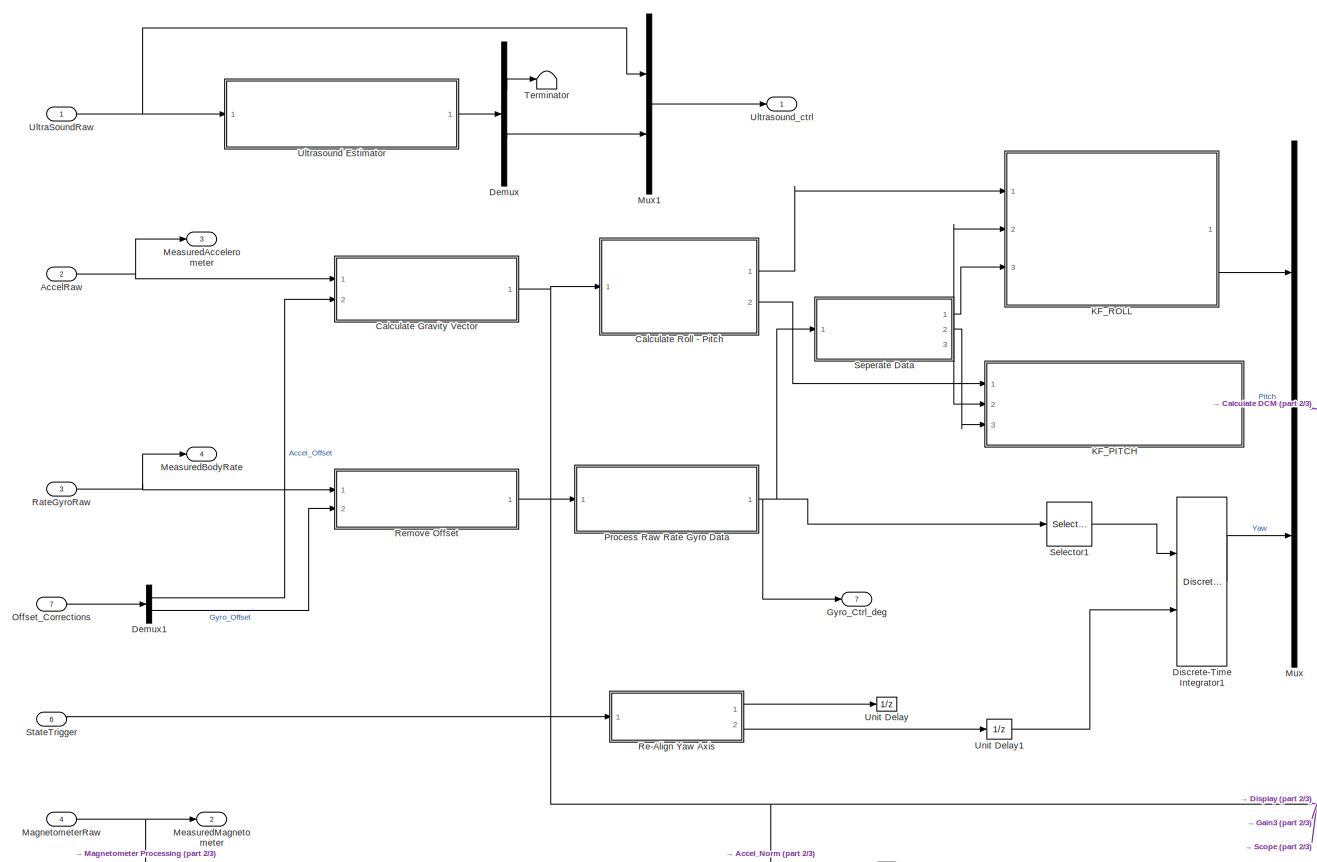
[diagram: Sensor Fusion1 - part 1/3, middle left region]
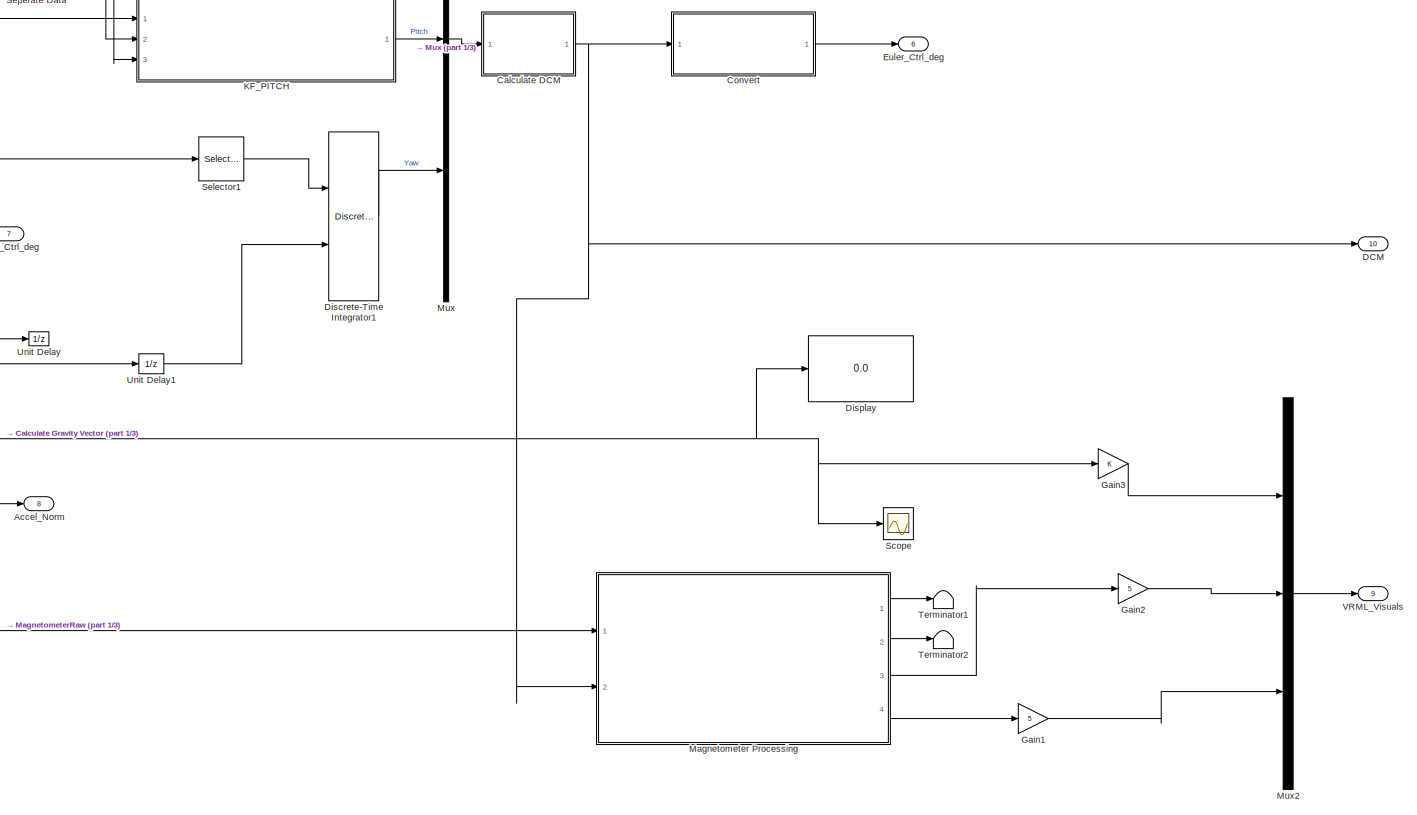
[diagram: Sensor Fusion1 - part 2/3, middle right region]
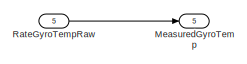
[diagram: Sensor Fusion1 - part 3/3, bottom left region]
BLOCK [SubSystem] Sensor Fusion1
  Commented = on
  Ports = [7, 10]
  RequestExecContextInheritance = off
BLOCK [Inport] Sensor Fusion1/AccelRaw
  IconDisplay = Port number
  Port = 2
BLOCK [Outport] Sensor Fusion1/Accel_Norm
  IconDisplay = Port number
  Port = 8
BLOCK [SubSystem] Sensor Fusion1/Calculate DCM
  Ports = [1, 1]
  RequestExecContextInheritance = off
BLOCK [Gain] Sensor Fusion1/Calculate DCM/Change Sign
  Gain = -1
  OutDataTypeStr = Inherit: Inherit via internal rule
  ParamDataTypeStr = Inherit: Inherit via internal rule
  SaturateOnIntegerOverflow = off
BLOCK [Outport] Sensor Fusion1/Calculate DCM/DCM
  IconDisplay = Port number
BLOCK [Inport] Sensor Fusion1/Calculate DCM/Euler Angles
  IconDisplay = Port number
BLOCK [Gain] Sensor Fusion1/Calculate DCM/Rad2deg
  Gain = pi/180
  OutDataTypeStr = Inherit: Inherit via internal rule
  ParamDataTypeStr = Inherit: Inherit via internal rule
  SaturateOnIntegerOverflow = off
BLOCK [Reference] Sensor Fusion1/Calculate DCM/Rotation Angles to Direction Cosine Matrix  REF=aerolibtransform2/Rotation Angles to
Direction Cosine Matrix
  AttributesFormatString = Rotation Order: %<rotationOrder>
  Ports = [1, 1]
  SourceBlock = aerolibtransform2/Rotation Angles to\nDirection Cosine Matrix
  SourceType = Ang2DCM
  rotationOrder = XYZ
BLOCK [SubSystem] Sensor Fusion1/Calculate Gravity Vector
  Ports = [2, 1]
  RequestExecContextInheritance = off
BLOCK [Inport] Sensor Fusion1/Calculate Gravity Vector/Accel
  IconDisplay = Port number
BLOCK [Outport] Sensor Fusion1/Calculate Gravity Vector/Accel_Norm
  IconDisplay = Port number
BLOCK [Inport] Sensor Fusion1/Calculate Gravity Vector/Accel_Offset
  IconDisplay = Port number
  Port = 2
BLOCK [SubSystem] Sensor Fusion1/Calculate Gravity Vector/Accelerometer Neutral Gain and Offset
  Ports = [1, 1]
  RequestExecContextInheritance = off
BLOCK [Constant] Sensor Fusion1/Calculate Gravity Vector/Accelerometer Neutral Gain and Offset/Bias
  Value = [4096]
BLOCK [DataTypeConversion] Sensor Fusion1/Calculate Gravity Vector/Accelerometer Neutral Gain and Offset/Data Type Conversion
  OutDataTypeStr = int16
  RndMeth = Floor
  SaturateOnIntegerOverflow = off
BLOCK [Demux] Sensor Fusion1/Calculate Gravity Vector/Accelerometer Neutral Gain and Offset/Demux
  DisplayOption = bar
  Outputs = 3
  Ports = [1, 3]
BLOCK [Gain] Sensor Fusion1/Calculate Gravity Vector/Accelerometer Neutral Gain and Offset/Gain
  Gain = 1/512
  OutDataTypeStr = Inherit: Inherit via internal rule
  ParamDataTypeStr = Inherit: Inherit via internal rule
  SaturateOnIntegerOverflow = off
BLOCK [Gain] Sensor Fusion1/Calculate Gravity Vector/Accelerometer Neutral Gain and Offset/Gain1
  Gain = -1
  OutDataTypeStr = double
  ParamDataTypeStr = Inherit: Inherit via internal rule
  SaturateOnIntegerOverflow = off
BLOCK [Gain] Sensor Fusion1/Calculate Gravity Vector/Accelerometer Neutral Gain and Offset/Gain2
  Gain = -1
  OutDataTypeStr = double
  ParamDataTypeStr = Inherit: Inherit via internal rule
  SaturateOnIntegerOverflow = off
BLOCK [Gain] Sensor Fusion1/Calculate Gravity Vector/Accelerometer Neutral Gain and Offset/Gain3
  Gain = -1
  OutDataTypeStr = double
  ParamDataTypeStr = Inherit: Inherit via internal rule
  SaturateOnIntegerOverflow = off
BLOCK [Mux] Sensor Fusion1/Calculate Gravity Vector/Accelerometer Neutral Gain and Offset/Mux
  DisplayOption = bar
  Inputs = 3
  Ports = [3, 1]
BLOCK [Constant] Sensor Fusion1/Calculate Gravity Vector/Accelerometer Neutral Gain and Offset/Neutral Bias
  Value = [2048 2048 2048]
BLOCK [Outport] Sensor Fusion1/Calculate Gravity Vector/Accelerometer Neutral Gain and Offset/Processed Accel Data
  IconDisplay = Port number
BLOCK [Inport] Sensor Fusion1/Calculate Gravity Vector/Accelerometer Neutral Gain and Offset/Raw Accel Data
  IconDisplay = Port number
BLOCK [Sum] Sensor Fusion1/Calculate Gravity Vector/Accelerometer Neutral Gain and Offset/Sum
  IconShape = round
  InputSameDT = off
  Inputs = |++
  OutDataTypeStr = Inherit: Inherit via internal rule
  Ports = [2, 1]
  SaturateOnIntegerOverflow = off
BLOCK [Sum] Sensor Fusion1/Calculate Gravity Vector/Accelerometer Neutral Gain and Offset/Sum1
  IconShape = round
  InputSameDT = off
  Inputs = |+-
  OutDataTypeStr = Inherit: Inherit via internal rule
  Ports = [2, 1]
  SaturateOnIntegerOverflow = off
BLOCK [Sum] Sensor Fusion1/Calculate Gravity Vector/Accelerometer Neutral Gain and Offset/Sum2
  IconShape = round
  InputSameDT = off
  Inputs = |++
  OutDataTypeStr = Inherit: Inherit via internal rule
  Ports = [2, 1]
  SaturateOnIntegerOverflow = off
BLOCK [Sum] Sensor Fusion1/Calculate Gravity Vector/Accelerometer Neutral Gain and Offset/Sum3
  IconShape = round
  InputSameDT = off
  Inputs = |++
  OutDataTypeStr = Inherit: Inherit via internal rule
  Ports = [2, 1]
  SaturateOnIntegerOverflow = off
BLOCK [SubSystem] Sensor Fusion1/Calculate Gravity Vector/Calibration_GainOffset
  Ports = [1, 1]
  RequestExecContextInheritance = off
BLOCK [Constant] Sensor Fusion1/Calculate Gravity Vector/Calibration_GainOffset/Accel_Calib_Gain
  AttributesFormatString = %<Value>
  Value = [Accel_Calib_Gain.Gain_X Accel_Calib_Gain.Gain_Y Accel_Calib_Gain.Gain_Z]
BLOCK [Constant] Sensor Fusion1/Calculate Gravity Vector/Calibration_GainOffset/Accel_Calib_Offset
  AttributesFormatString = %<Value>
  Value = [Accel_Calib_Offset.Gain_X  Accel_Calib_Offset.Gain_Y  Accel_Calib_Offset.Gain_Z]
BLOCK [Gain] Sensor Fusion1/Calculate Gravity Vector/Calibration_GainOffset/Gain
  Gain = -1
  ParamDataTypeStr = Inherit: Inherit via internal rule
  SaturateOnIntegerOverflow = off
BLOCK [Product] Sensor Fusion1/Calculate Gravity Vector/Calibration_GainOffset/Multiply
  InputSameDT = off
  Inputs = */
  OutDataTypeStr = Inherit: Inherit via internal rule
  Ports = [2, 1]
  RndMeth = Floor
  SaturateOnIntegerOverflow = off
BLOCK [Outport] Sensor Fusion1/Calculate Gravity Vector/Calibration_GainOffset/Post
  IconDisplay = Port number
BLOCK [Inport] Sensor Fusion1/Calculate Gravity Vector/Calibration_GainOffset/Pre
  IconDisplay = Port number
BLOCK [Sum] Sensor Fusion1/Calculate Gravity Vector/Calibration_GainOffset/Sum
  IconShape = round
  InputSameDT = off
  Inputs = |+-
  OutDataTypeStr = Inherit: Inherit via internal rule
  Ports = [2, 1]
  SaturateOnIntegerOverflow = off
BLOCK [Scope] Sensor Fusion1/Calculate Gravity Vector/Compare Calibration
  DataFormat = StructureWithTime
  Floating = off
  LimitDataPoints = off
  NumInputPorts = 2
  Ports = [2]
  SampleTime = 0
  SaveName = AccelProcessed_Record1
  ShowLegends = off
  TimeRange = 6.848856838354834
  YMax = 0.05~0.05
  YMin = -1.05~-1
  ZoomMode = yonly
BLOCK [Scope] Sensor Fusion1/Calculate Gravity Vector/Compare Filter
  DataFormat = StructureWithTime
  Floating = off
  LimitDataPoints = off
  NumInputPorts = 2
  Ports = [2]
  SampleTime = 0
  SaveName = AccelProcessed_Record2
  ShowLegends = off
  TimeRange = 6.848856838354834
  YMax = 0.05~0.05
  YMin = -1.05~-1
BLOCK [Scope] Sensor Fusion1/Calculate Gravity Vector/Compare Offset
  DataFormat = StructureWithTime
  Floating = off
  LimitDataPoints = off
  NumInputPorts = 2
  Ports = [2]
  SampleTime = 0
  SaveName = AccelProcessed_Record
  ShowLegends = off
  TimeRange = 6.848856838354834
  YMax = 0.05~0.05
  YMin = -1.05~-1
  ZoomMode = yonly
BLOCK [SubSystem] Sensor Fusion1/Calculate Gravity Vector/InitialCondition_Offset
  Ports = [2, 1]
  RequestExecContextInheritance = off
BLOCK [Inport] Sensor Fusion1/Calculate Gravity Vector/InitialCondition_Offset/Accel_Offset
  IconDisplay = Port number
  Port = 2
BLOCK [Display] Sensor Fusion1/Calculate Gravity Vector/InitialCondition_Offset/After
  Decimation = 1
  Ports = [1]
BLOCK [Display] Sensor Fusion1/Calculate Gravity Vector/InitialCondition_Offset/Before
  Decimation = 1
  Ports = [1]
BLOCK [Constant] Sensor Fusion1/Calculate Gravity Vector/InitialCondition_Offset/Constant2
  Value = 0
BLOCK [Demux] Sensor Fusion1/Calculate Gravity Vector/InitialCondition_Offset/Demux
  DisplayOption = bar
  Outputs = 3
  Ports = [1, 3]
BLOCK [Demux] Sensor Fusion1/Calculate Gravity Vector/InitialCondition_Offset/Demux1
  DisplayOption = bar
  Outputs = 2
  Ports = [1, 2]
BLOCK [Gain] Sensor Fusion1/Calculate Gravity Vector/InitialCondition_Offset/Gain
  OutDataTypeStr = Inherit: Inherit via internal rule
  ParamDataTypeStr = Inherit: Inherit via internal rule
  SaturateOnIntegerOverflow = off
BLOCK [Gain] Sensor Fusion1/Calculate Gravity Vector/InitialCondition_Offset/Gain1
  OutDataTypeStr = Inherit: Inherit via internal rule
  ParamDataTypeStr = Inherit: Inherit via internal rule
  SaturateOnIntegerOverflow = off
BLOCK [Mux] Sensor Fusion1/Calculate Gravity Vector/InitialCondition_Offset/Mux1
  DisplayOption = bar
  Inputs = 3
  Ports = [3, 1]
BLOCK [Outport] Sensor Fusion1/Calculate Gravity Vector/InitialCondition_Offset/Post
  IconDisplay = Port number
BLOCK [Inport] Sensor Fusion1/Calculate Gravity Vector/InitialCondition_Offset/Pre
  IconDisplay = Port number
BLOCK [Selector] Sensor Fusion1/Calculate Gravity Vector/InitialCondition_Offset/Selector
  Indices = [1 2]
  InputPortWidth = 3
  Ports = [1, 1]
BLOCK [Goto] Sensor Fusion1/Calculate Gravity Vector/InitialCondition_Offset/Send to StateFlow Logic
  GotoTag = AccelOffset
  TagVisibility = global
BLOCK [Sum] Sensor Fusion1/Calculate Gravity Vector/InitialCondition_Offset/Sum
  IconShape = round
  InputSameDT = off
  Inputs = |+-
  OutDataTypeStr = Inherit: Inherit via internal rule
  Ports = [2, 1]
  SaturateOnIntegerOverflow = off
BLOCK [Sum] Sensor Fusion1/Calculate Gravity Vector/InitialCondition_Offset/Sum1
  IconShape = round
  InputSameDT = off
  Inputs = |+-
  OutDataTypeStr = Inherit: Inherit via internal rule
  Ports = [2, 1]
  SaturateOnIntegerOverflow = off
BLOCK [Sum] Sensor Fusion1/Calculate Gravity Vector/InitialCondition_Offset/Sum2
  IconShape = round
  InputSameDT = off
  Inputs = |+-
  OutDataTypeStr = Inherit: Inherit via internal rule
  Ports = [2, 1]
  SaturateOnIntegerOverflow = off
BLOCK [SubSystem] Sensor Fusion1/Calculate Gravity Vector/Low Pass Filter
  Ports = [1, 1]
  RequestExecContextInheritance = off
BLOCK [Sum] Sensor Fusion1/Calculate Gravity Vector/Low Pass Filter/Add
  InputSameDT = off
  OutDataTypeStr = Inherit: Inherit via internal rule
  Ports = [2, 1]
  SaturateOnIntegerOverflow = off
BLOCK [Outport] Sensor Fusion1/Calculate Gravity Vector/Low Pass Filter/Filtered Accel
  IconDisplay = Port number
BLOCK [Gain] Sensor Fusion1/Calculate Gravity Vector/Low Pass Filter/Gain
  Gain = 0.8
  OutDataTypeStr = Inherit: Inherit via internal rule
  ParamDataTypeStr = Inherit: Inherit via internal rule
  SaturateOnIntegerOverflow = off
BLOCK [Gain] Sensor Fusion1/Calculate Gravity Vector/Low Pass Filter/Gain1
  Gain = 0.2
  OutDataTypeStr = Inherit: Inherit via internal rule
  ParamDataTypeStr = Inherit: Inherit via internal rule
  SaturateOnIntegerOverflow = off
BLOCK [Inport] Sensor Fusion1/Calculate Gravity Vector/Low Pass Filter/Offset Accel
  IconDisplay = Port number
BLOCK [UnitDelay] Sensor Fusion1/Calculate Gravity Vector/Low Pass Filter/Unit Delay
  InputProcessing = Elements as channels (sample based)
  SampleTime = -1
BLOCK [Reference] Sensor Fusion1/Calculate Gravity Vector/Normalize Vector  REF=vrlib/Utilities/Normalize Vector
  Ports = [1, 1]
  SourceBlock = vrlib/Utilities/Normalize Vector
  SourceType = Normalize Vector
  maxzero = 0
BLOCK [SubSystem] Sensor Fusion1/Calculate Roll - Pitch
  Ports = [1, 2]
  RequestExecContextInheritance = off
BLOCK [Trigonometry] Sensor Fusion1/Calculate Roll - Pitch/Calculate Pitch
  Operator = atan
  Ports = [1, 1]
BLOCK [Trigonometry] Sensor Fusion1/Calculate Roll - Pitch/Calculate Roll
  Operator = atan
  Ports = [1, 1]
BLOCK [Demux] Sensor Fusion1/Calculate Roll - Pitch/Demux
  DisplayOption = bar
  Outputs = 3
  Ports = [1, 3]
BLOCK [Display] Sensor Fusion1/Calculate Roll - Pitch/Display Pitch
  Commented = on
  Decimation = 1
  Ports = [1]
BLOCK [Display] Sensor Fusion1/Calculate Roll - Pitch/Display Roll
  Commented = on
  Decimation = 1
  Ports = [1]
BLOCK [Product] Sensor Fusion1/Calculate Roll - Pitch/Divide
  InputSameDT = off
  Inputs = */
  OutDataTypeStr = Inherit: Inherit via internal rule
  Ports = [2, 1]
  RndMeth = Floor
  SaturateOnIntegerOverflow = off
BLOCK [Product] Sensor Fusion1/Calculate Roll - Pitch/Divide1
  InputSameDT = off
  Inputs = */
  OutDataTypeStr = Inherit: Inherit via internal rule
  Ports = [2, 1]
  RndMeth = Floor
  SaturateOnIntegerOverflow = off
BLOCK [Gain] Sensor Fusion1/Calculate Roll - Pitch/Gain1
  Gain = 180/pi
  OutDataTypeStr = Inherit: Inherit via internal rule
  ParamDataTypeStr = Inherit: Inherit via internal rule
  SaturateOnIntegerOverflow = off
BLOCK [Gain] Sensor Fusion1/Calculate Roll - Pitch/Gain2
  Gain = -1
  OutDataTypeStr = Inherit: Inherit via internal rule
  ParamDataTypeStr = Inherit: Inherit via internal rule
  SaturateOnIntegerOverflow = off
BLOCK [Gain] Sensor Fusion1/Calculate Roll - Pitch/Gain3
  Gain = 180/pi
  OutDataTypeStr = Inherit: Inherit via internal rule
  ParamDataTypeStr = Inherit: Inherit via internal rule
  SaturateOnIntegerOverflow = off
BLOCK [Gain] Sensor Fusion1/Calculate Roll - Pitch/Gain4
  Gain = 180/pi
  OutDataTypeStr = Inherit: Inherit via internal rule
  ParamDataTypeStr = Inherit: Inherit via internal rule
  SaturateOnIntegerOverflow = off
BLOCK [Gain] Sensor Fusion1/Calculate Roll - Pitch/Gain5
  Gain = -180/pi
  OutDataTypeStr = Inherit: Inherit via internal rule
  ParamDataTypeStr = Inherit: Inherit via internal rule
  SaturateOnIntegerOverflow = off
BLOCK [SubSystem] Sensor Fusion1/Calculate Roll - Pitch/MATLAB Function
  ErrorFcn = Stateflow.Translate.translate
  PermitHierarchicalResolution = ExplicitOnly
  Ports = [1, 2]
  RequestExecContextInheritance = off
  SFBlockType = MATLAB Function
  TreatAsAtomicUnit = on
BLOCK [Demux] Sensor Fusion1/Calculate Roll - Pitch/MATLAB Function/ Demux 
  Outputs = 1
  Ports = [1, 1]
BLOCK [S-Function] Sensor Fusion1/Calculate Roll - Pitch/MATLAB Function/ SFunction 
  EnableBusSupport = on
  FunctionName = sf_sfun
  PortCounts = [1 3]
  Ports = [1, 3]
  Tag = Stateflow S-Function Navigation_KF_Subsystem_child 8
BLOCK [Terminator] Sensor Fusion1/Calculate Roll - Pitch/MATLAB Function/ Terminator 
BLOCK [Inport] Sensor Fusion1/Calculate Roll - Pitch/MATLAB Function/Ax_Ay_Az
  IconDisplay = Port number
BLOCK [Outport] Sensor Fusion1/Calculate Roll - Pitch/MATLAB Function/Pitch
  IconDisplay = Port number
  Port = 2
BLOCK [Outport] Sensor Fusion1/Calculate Roll - Pitch/MATLAB Function/Roll
  IconDisplay = Port number
BLOCK [Mux] Sensor Fusion1/Calculate Roll - Pitch/Mux
  Commented = on
  DisplayOption = bar
  Inputs = 2
  Ports = [2, 1]
BLOCK [Mux] Sensor Fusion1/Calculate Roll - Pitch/Mux1
  Commented = on
  DisplayOption = bar
  Inputs = 2
  Ports = [2, 1]
BLOCK [Inport] Sensor Fusion1/Calculate Roll - Pitch/Normalized Gravity Vector
  IconDisplay = Port number
BLOCK [Scope] Sensor Fusion1/Calculate Roll - Pitch/PitchCompare
  Commented = on
  DataFormat = StructureWithTime
  Floating = off
  LimitDataPoints = off
  NumInputPorts = 1
  Ports = [1]
  SampleTime = 0
  SaveName = ScopeData9
  ShowLegends = off
  YMax = 3
  YMin = -11
BLOCK [Outport] Sensor Fusion1/Calculate Roll - Pitch/PitchRaw
  IconDisplay = Port number
  Port = 2
BLOCK [Scope] Sensor Fusion1/Calculate Roll - Pitch/Roll Compare
  Commented = on
  DataFormat = StructureWithTime
  Floating = off
  LimitDataPoints = off
  NumInputPorts = 1
  Ports = [1]
  SampleTime = 0
  SaveName = ScopeData5
  ShowLegends = off
  YMax = -1.7
  YMin = -2.175
BLOCK [Outport] Sensor Fusion1/Calculate Roll - Pitch/RollRaw
  IconDisplay = Port number
BLOCK [SubSystem] Sensor Fusion1/Convert
  Ports = [1, 1]
  RequestExecContextInheritance = off
BLOCK [Inport] Sensor Fusion1/Convert/DCM
  IconDisplay = Port number
BLOCK [SubSystem] Sensor Fusion1/Convert/DCM to Euler Angles
  Ports = [1, 1]
  RequestExecContextInheritance = off
BLOCK [Constant] Sensor Fusion1/Convert/DCM to Euler Angles/Constant2
  Value = [1 0 0]
BLOCK [Inport] Sensor Fusion1/Convert/DCM to Euler Angles/DCM
  IconDisplay = Port number
BLOCK [Reference] Sensor Fusion1/Convert/DCM to Euler Angles/Direction Cosine Matrix to Rotation Angles  REF=aerolibtransform2/Direction Cosine Matrix
to Rotation Angles
  AttributesFormatString = Rotation Order: %<rotationOrder>
  Ports = [1, 1]
  SourceBlock = aerolibtransform2/Direction Cosine Matrix\nto Rotation Angles
  SourceType = DCM2Ang
  lim = Default
  rotationOrder = XYZ
BLOCK [SubSystem] Sensor Fusion1/Convert/DCM to Euler Angles/EulerAnglesCalculation
  Ports = [1, 1]
  RequestExecContextInheritance = off
  TreatAsAtomicUnit = on
BLOCK [Inport] Sensor Fusion1/Convert/DCM to Euler Angles/EulerAnglesCalculation/DCM
  IconDisplay = Port number
BLOCK [Demux] Sensor Fusion1/Convert/DCM to Euler Angles/EulerAnglesCalculation/Demux
  DisplayOption = bar
  Outputs = 2
  Ports = [1, 2]
BLOCK [Demux] Sensor Fusion1/Convert/DCM to Euler Angles/EulerAnglesCalculation/Demux1
  DisplayOption = bar
  Outputs = 2
  Ports = [1, 2]
BLOCK [Outport] Sensor Fusion1/Convert/DCM to Euler Angles/EulerAnglesCalculation/Euler Angles
  IconDisplay = Port number
  InitialOutput = [0 0 0]
BLOCK [Gain] Sensor Fusion1/Convert/DCM to Euler Angles/EulerAnglesCalculation/Gain
  Gain = -1
  OutDataTypeStr = Inherit: Inherit via internal rule
  ParamDataTypeStr = Inherit: Inherit via internal rule
  SaturateOnIntegerOverflow = off
BLOCK [Gain] Sensor Fusion1/Convert/DCM to Euler Angles/EulerAnglesCalculation/Gain1
  ParamDataTypeStr = Inherit: Inherit via internal rule
  SaturateOnIntegerOverflow = off
BLOCK [Mux] Sensor Fusion1/Convert/DCM to Euler Angles/EulerAnglesCalculation/Mux
  DisplayOption = bar
  Inputs = 3
  Ports = [3, 1]
BLOCK [Selector] Sensor Fusion1/Convert/DCM to Euler Angles/EulerAnglesCalculation/Selector
  IndexMode = Zero-based
  IndexOptions = Index vector (dialog),Index vector (dialog)
  Indices = 2,0
  InputPortWidth = 3
  NumberOfDimensions = 2
  OutputSizes = 1,1
  Ports = [1, 1]
BLOCK [Selector] Sensor Fusion1/Convert/DCM to Euler Angles/EulerAnglesCalculation/Selector1
  IndexMode = Zero-based
  IndexOptions = Index vector (dialog),Index vector (dialog)
  Indices = 2,[1 2]
  InputPortWidth = 3
  NumberOfDimensions = 2
  OutputSizes = 1,1
  Ports = [1, 1]
BLOCK [Selector] Sensor Fusion1/Convert/DCM to Euler Angles/EulerAnglesCalculation/Selector2
  IndexMode = Zero-based
  IndexOptions = Index vector (dialog),Index vector (dialog)
  Indices = [1 0],0
  InputPortWidth = 3
  NumberOfDimensions = 2
  OutputSizes = 1,1
  Ports = [1, 1]
BLOCK [Trigonometry] Sensor Fusion1/Convert/DCM to Euler Angles/EulerAnglesCalculation/Trigonometric Function
  Operator = asin
  Ports = [1, 1]
BLOCK [Trigonometry] Sensor Fusion1/Convert/DCM to Euler Angles/EulerAnglesCalculation/Trigonometric Function1
  Operator = atan2
  Ports = [2, 1]
BLOCK [Trigonometry] Sensor Fusion1/Convert/DCM to Euler Angles/EulerAnglesCalculation/Trigonometric Function2
  Operator = atan2
  Ports = [2, 1]
BLOCK [Outport] Sensor Fusion1/Convert/DCM to Euler Angles/Euler_Block
  IconDisplay = Port number
BLOCK [Product] Sensor Fusion1/Convert/DCM to Euler Angles/Product
  InputSameDT = off
  Multiplication = Matrix(*)
  OutDataTypeStr = Inherit: Inherit via internal rule
  Ports = [2, 1]
  RndMeth = Floor
  SaturateOnIntegerOverflow = off
BLOCK [Terminator] Sensor Fusion1/Convert/DCM to Euler Angles/Terminator1
BLOCK [Terminator] Sensor Fusion1/Convert/DCM to Euler Angles/Terminator3
BLOCK [Outport] Sensor Fusion1/Convert/Euler Ang
  IconDisplay = Port number
BLOCK [Gain] Sensor Fusion1/Convert/Gain
  Gain = 180/pi
  OutDataTypeStr = Inherit: Inherit via internal rule
  ParamDataTypeStr = Inherit: Inherit via internal rule
  SaturateOnIntegerOverflow = off
BLOCK [Outport] Sensor Fusion1/DCM
  IconDisplay = Port number
  Port = 10
BLOCK [Demux] Sensor Fusion1/Demux
  DisplayOption = bar
  Outputs = 2
  Ports = [1, 2]
BLOCK [Demux] Sensor Fusion1/Demux1
  DisplayOption = bar
  Outputs = [2 3]
  Ports = [1, 2]
BLOCK [DiscreteIntegrator] Sensor Fusion1/Discrete-Time Integrator1
  ICPrevOutput = DiscIntNeverNeededParam
  ICPrevScaledInput = DiscIntNeverNeededParam
  InitialConditionSource = external
  OutDataTypeStr = double
  Ports = [2, 1]
  SampleTime = 1/400
BLOCK [Display] Sensor Fusion1/Display
  Decimation = 1
  Ports = [1]
BLOCK [Outport] Sensor Fusion1/Euler_Ctrl_deg
  IconDisplay = Port number
  Port = 6
BLOCK [Gain] Sensor Fusion1/Gain1
  Gain = 5
  OutDataTypeStr = double
  ParamDataTypeStr = Inherit: Inherit via internal rule
  SaturateOnIntegerOverflow = off
BLOCK [Gain] Sensor Fusion1/Gain2
  Gain = 5
  OutDataTypeStr = double
  ParamDataTypeStr = Inherit: Inherit via internal rule
  SaturateOnIntegerOverflow = off
BLOCK [Gain] Sensor Fusion1/Gain3
  OutDataTypeStr = double
  ParamDataTypeStr = Inherit: Inherit via internal rule
  SaturateOnIntegerOverflow = off
BLOCK [Outport] Sensor Fusion1/Gyro_Ctrl_deg
  IconDisplay = Port number
  Port = 7
BLOCK [SubSystem] Sensor Fusion1/KF_PITCH
  Ports = [3, 1]
  RequestExecContextInheritance = off
BLOCK [Demux] Sensor Fusion1/KF_PITCH/Demux
  DisplayOption = bar
  Outputs = 2
  Ports = [1, 2]
BLOCK [DiscreteIntegrator] Sensor Fusion1/KF_PITCH/Discrete-Time Integrator1
  ICPrevOutput = DiscIntNeverNeededParam
  ICPrevScaledInput = DiscIntNeverNeededParam
  Ports = [1, 1]
  SampleTime = 1/400
BLOCK [Inport] Sensor Fusion1/KF_PITCH/GYRO_CTRL_IN
  IconDisplay = Port number
  Port = 3
BLOCK [Inport] Sensor Fusion1/KF_PITCH/GYRO_INTEGRATED
  IconDisplay = Port number
  Port = 2
BLOCK [Scope] Sensor Fusion1/KF_PITCH/KF Pitch Compare
  DataFormat = StructureWithTime
  Floating = off
  LimitDataPoints = off
  NumInputPorts = 1
  Ports = [1]
  SampleTime = 0
  SaveName = ScopeData10
  ShowLegends = off
  TimeRange = 1.484669176976869
  YMax = 30
  YMin = 0
BLOCK [SubSystem] Sensor Fusion1/KF_PITCH/Kalman Tracker
  ErrorFcn = Stateflow.Translate.translate
  PermitHierarchicalResolution = ExplicitOnly
  Ports = [4, 2]
  RequestExecContextInheritance = off
  SFBlockType = MATLAB Function
  TreatAsAtomicUnit = on
BLOCK [Demux] Sensor Fusion1/KF_PITCH/Kalman Tracker/ Demux 
  Outputs = 1
  Ports = [1, 1]
BLOCK [S-Function] Sensor Fusion1/KF_PITCH/Kalman Tracker/ SFunction 
  EnableBusSupport = on
  FunctionName = sf_sfun
  PortCounts = [4 3]
  Ports = [4, 3]
  Tag = Stateflow S-Function Navigation_KF_Subsystem_child 9
BLOCK [Terminator] Sensor Fusion1/KF_PITCH/Kalman Tracker/ Terminator 
BLOCK [Outport] Sensor Fusion1/KF_PITCH/Kalman Tracker/covariance_correction
  IconDisplay = Port number
  Port = 2
BLOCK [Inport] Sensor Fusion1/KF_PITCH/Kalman Tracker/covariance_correction_prev
  IconDisplay = Port number
  Port = 2
BLOCK [Inport] Sensor Fusion1/KF_PITCH/Kalman Tracker/ctrl_input_gyro
  IconDisplay = Port number
  Port = 3
BLOCK [Inport] Sensor Fusion1/KF_PITCH/Kalman Tracker/measurement_angle
  IconDisplay = Port number
  Port = 4
BLOCK [Inport] Sensor Fusion1/KF_PITCH/Kalman Tracker/prev_state
  IconDisplay = Port number
BLOCK [Outport] Sensor Fusion1/KF_PITCH/Kalman Tracker/state_correction
  IconDisplay = Port number
BLOCK [Mux] Sensor Fusion1/KF_PITCH/Mux
  DisplayOption = bar
  Inputs = 3
  Ports = [3, 1]
BLOCK [Mux] Sensor Fusion1/KF_PITCH/Mux1
  Commented = on
  DisplayOption = bar
  Inputs = 2
  Ports = [2, 1]
BLOCK [Inport] Sensor Fusion1/KF_PITCH/PITCH_ACCEL_MEASURE
  IconDisplay = Port number
BLOCK [Outport] Sensor Fusion1/KF_PITCH/PITCH_FILTERED
  IconDisplay = Port number
BLOCK [Scope] Sensor Fusion1/KF_PITCH/Scope
  Commented = on
  DataFormat = StructureWithTime
  Floating = off
  LimitDataPoints = off
  NumInputPorts = 1
  Ports = [1]
  SampleTime = 0
  SaveName = ScopeData14
  ShowLegends = off
  YMax = 1.05
  YMin = 0.05
BLOCK [SubSystem] Sensor Fusion1/KF_PITCH/Subsystem
  Ports = [1, 1]
  RequestExecContextInheritance = off
BLOCK [Inport] Sensor Fusion1/KF_PITCH/Subsystem/3-Axis Gyro Integrated
  IconDisplay = Port number
BLOCK [Demux] Sensor Fusion1/KF_PITCH/Subsystem/Demux2
  DisplayOption = bar
  Outputs = 3
  Ports = [1, 3]
BLOCK [Outport] Sensor Fusion1/KF_PITCH/Subsystem/Integrated Roll
  IconDisplay = Port number
BLOCK [Sum] Sensor Fusion1/KF_PITCH/Sum
  IconShape = round
  InputSameDT = off
  Inputs = |-+
  OutDataTypeStr = Inherit: Inherit via internal rule
  Ports = [2, 1]
  SaturateOnIntegerOverflow = off
BLOCK [UnitDelay] Sensor Fusion1/KF_PITCH/Unit Delay
  InitialCondition = eye(2)
  InputProcessing = Elements as channels (sample based)
  SampleTime = -1
BLOCK [UnitDelay] Sensor Fusion1/KF_PITCH/Unit Delay1
  InitialCondition = [0 0]'
  InputProcessing = Elements as channels (sample based)
  SampleTime = -1
BLOCK [SubSystem] Sensor Fusion1/KF_ROLL
  Ports = [3, 1]
  RequestExecContextInheritance = off
BLOCK [Demux] Sensor Fusion1/KF_ROLL/Demux
  DisplayOption = bar
  Outputs = 2
  Ports = [1, 2]
BLOCK [DiscreteIntegrator] Sensor Fusion1/KF_ROLL/Discrete-Time Integrator1
  ICPrevOutput = DiscIntNeverNeededParam
  ICPrevScaledInput = DiscIntNeverNeededParam
  Ports = [1, 1]
  SampleTime = 1/400
BLOCK [Inport] Sensor Fusion1/KF_ROLL/GYRO_INTEGRATED
  IconDisplay = Port number
  Port = 2
BLOCK [Inport] Sensor Fusion1/KF_ROLL/GYRO_ROLL_CTRL_IN
  IconDisplay = Port number
  Port = 3
BLOCK [Scope] Sensor Fusion1/KF_ROLL/KF Roll Compare
  DataFormat = StructureWithTime
  Floating = off
  LimitDataPoints = off
  NumInputPorts = 2
  Ports = [2]
  SampleTime = 0
  SaveName = ScopeData10
  ShowLegends = off
  YMax = -18~1
  YMin = -20.1~-15
  ZoomMode = yonly
BLOCK [SubSystem] Sensor Fusion1/KF_ROLL/Kalman Tracker
  ErrorFcn = Stateflow.Translate.translate
  PermitHierarchicalResolution = ExplicitOnly
  Ports = [4, 2]
  RequestExecContextInheritance = off
  SFBlockType = MATLAB Function
  TreatAsAtomicUnit = on
BLOCK [Demux] Sensor Fusion1/KF_ROLL/Kalman Tracker/ Demux 
  Outputs = 1
  Ports = [1, 1]
BLOCK [S-Function] Sensor Fusion1/KF_ROLL/Kalman Tracker/ SFunction 
  EnableBusSupport = on
  FunctionName = sf_sfun
  PortCounts = [4 3]
  Ports = [4, 3]
  Tag = Stateflow S-Function Navigation_KF_Subsystem_child 10
BLOCK [Terminator] Sensor Fusion1/KF_ROLL/Kalman Tracker/ Terminator 
BLOCK [Outport] Sensor Fusion1/KF_ROLL/Kalman Tracker/covariance_correction
  IconDisplay = Port number
  Port = 2
BLOCK [Inport] Sensor Fusion1/KF_ROLL/Kalman Tracker/covariance_correction_prev
  IconDisplay = Port number
  Port = 2
BLOCK [Inport] Sensor Fusion1/KF_ROLL/Kalman Tracker/ctrl_input_gyro
  IconDisplay = Port number
  Port = 3
BLOCK [Inport] Sensor Fusion1/KF_ROLL/Kalman Tracker/measurement_angle
  IconDisplay = Port number
  Port = 4
BLOCK [Inport] Sensor Fusion1/KF_ROLL/Kalman Tracker/prev_state
  IconDisplay = Port number
BLOCK [Outport] Sensor Fusion1/KF_ROLL/Kalman Tracker/state_correction
  IconDisplay = Port number
BLOCK [Mux] Sensor Fusion1/KF_ROLL/Mux
  DisplayOption = bar
  Inputs = 3
  Ports = [3, 1]
BLOCK [Mux] Sensor Fusion1/KF_ROLL/Mux1
  Commented = on
  DisplayOption = bar
  Inputs = 2
  Ports = [2, 1]
BLOCK [Inport] Sensor Fusion1/KF_ROLL/ROLL_ACCEL_MEASURE
  IconDisplay = Port number
BLOCK [Outport] Sensor Fusion1/KF_ROLL/ROLL_FILTERED
  IconDisplay = Port number
BLOCK [Scope] Sensor Fusion1/KF_ROLL/Scope
  Commented = on
  DataFormat = StructureWithTime
  Floating = off
  LimitDataPoints = off
  NumInputPorts = 1
  Ports = [1]
  SampleTime = 0
  SaveName = ScopeData14
  ShowLegends = off
  YMax = 1.05
  YMin = 0.05
  ZoomMode = yonly
BLOCK [SubSystem] Sensor Fusion1/KF_ROLL/Subsystem
  Ports = [1, 1]
  RequestExecContextInheritance = off
BLOCK [Inport] Sensor Fusion1/KF_ROLL/Subsystem/3-Axis Gyro Integrated
  IconDisplay = Port number
BLOCK [Demux] Sensor Fusion1/KF_ROLL/Subsystem/Demux2
  DisplayOption = bar
  Outputs = 3
  Ports = [1, 3]
BLOCK [Outport] Sensor Fusion1/KF_ROLL/Subsystem/Integrated Roll
  IconDisplay = Port number
BLOCK [Sum] Sensor Fusion1/KF_ROLL/Sum
  IconShape = round
  InputSameDT = off
  Inputs = |-+
  OutDataTypeStr = Inherit: Inherit via internal rule
  Ports = [2, 1]
  SaturateOnIntegerOverflow = off
BLOCK [UnitDelay] Sensor Fusion1/KF_ROLL/Unit Delay
  InitialCondition = eye(2)
  InputProcessing = Elements as channels (sample based)
  SampleTime = -1
BLOCK [UnitDelay] Sensor Fusion1/KF_ROLL/Unit Delay1
  InitialCondition = [0 0]'
  InputProcessing = Elements as channels (sample based)
  SampleTime = -1
BLOCK [SubSystem] Sensor Fusion1/Magnetometer Processing
  Ports = [2, 4]
  RTWSystemCode = Inline
  RequestExecContextInheritance = off
  TreatAsAtomicUnit = on
BLOCK [Inport] Sensor Fusion1/Magnetometer Processing/DCM
  IconDisplay = Port number
  Port = 2
BLOCK [Outport] Sensor Fusion1/Magnetometer Processing/Mag Vector Projected on XY (Body)
  IconDisplay = Port number
BLOCK [Outport] Sensor Fusion1/Magnetometer Processing/Mag Vector Projected on XY (Global)
  IconDisplay = Port number
  Port = 2
BLOCK [SubSystem] Sensor Fusion1/Magnetometer Processing/Magnetometer Heading Calculation
  Ports = [2, 2]
  RequestExecContextInheritance = off
BLOCK [SubSystem] Sensor Fusion1/Magnetometer Processing/Magnetometer Heading Calculation/Compensate for Magnetic Declination (~60 degrees in Boston)_
  Commented = through
  ErrorFcn = Stateflow.Translate.translate
  PermitHierarchicalResolution = ExplicitOnly
  Ports = [1, 1]
  RequestExecContextInheritance = off
  SFBlockType = MATLAB Function
  TreatAsAtomicUnit = on
BLOCK [Demux] Sensor Fusion1/Magnetometer Processing/Magnetometer Heading Calculation/Compensate for Magnetic Declination (~60 degrees in Boston)_/ Demux 
  Outputs = 1
  Ports = [1, 1]
BLOCK [S-Function] Sensor Fusion1/Magnetometer Processing/Magnetometer Heading Calculation/Compensate for Magnetic Declination (~60 degrees in Boston)_/ SFunction 
  EnableBusSupport = on
  FunctionName = sf_sfun
  PortCounts = [1 2]
  Ports = [1, 2]
  Tag = Stateflow S-Function Navigation_KF_Subsystem_child 12
BLOCK [Terminator] Sensor Fusion1/Magnetometer Processing/Magnetometer Heading Calculation/Compensate for Magnetic Declination (~60 degrees in Boston)_/ Terminator 
BLOCK [Inport] Sensor Fusion1/Magnetometer Processing/Magnetometer Heading Calculation/Compensate for Magnetic Declination (~60 degrees in Boston)_/vector_in
  IconDisplay = Port number
BLOCK [Outport] Sensor Fusion1/Magnetometer Processing/Magnetometer Heading Calculation/Compensate for Magnetic Declination (~60 degrees in Boston)_/y
  IconDisplay = Port number
BLOCK [SubSystem] Sensor Fusion1/Magnetometer Processing/Magnetometer Heading Calculation/Compensate for Magnetic Declination (~67 degrees in Boston)_2
  ErrorFcn = Stateflow.Translate.translate
  PermitHierarchicalResolution = ExplicitOnly
  Ports = [2, 1]
  RequestExecContextInheritance = off
  SFBlockType = MATLAB Function
  TreatAsAtomicUnit = on
BLOCK [Demux] Sensor Fusion1/Magnetometer Processing/Magnetometer Heading Calculation/Compensate for Magnetic Declination (~67 degrees in Boston)_2/ Demux 
  Outputs = 1
  Ports = [1, 1]
BLOCK [S-Function] Sensor Fusion1/Magnetometer Processing/Magnetometer Heading Calculation/Compensate for Magnetic Declination (~67 degrees in Boston)_2/ SFunction 
  EnableBusSupport = on
  FunctionName = sf_sfun
  PortCounts = [2 2]
  Ports = [2, 2]
  Tag = Stateflow S-Function Navigation_KF_Subsystem_child 13
BLOCK [Terminator] Sensor Fusion1/Magnetometer Processing/Magnetometer Heading Calculation/Compensate for Magnetic Declination (~67 degrees in Boston)_2/ Terminator 
BLOCK [Inport] Sensor Fusion1/Magnetometer Processing/Magnetometer Heading Calculation/Compensate for Magnetic Declination (~67 degrees in Boston)_2/declination_ang
  IconDisplay = Port number
  Port = 2
BLOCK [Inport] Sensor Fusion1/Magnetometer Processing/Magnetometer Heading Calculation/Compensate for Magnetic Declination (~67 degrees in Boston)_2/vector_in
  IconDisplay = Port number
BLOCK [Outport] Sensor Fusion1/Magnetometer Processing/Magnetometer Heading Calculation/Compensate for Magnetic Declination (~67 degrees in Boston)_2/y
  IconDisplay = Port number
BLOCK [Inport] Sensor Fusion1/Magnetometer Processing/Magnetometer Heading Calculation/DCM
  IconDisplay = Port number
  Port = 2
BLOCK [Gain] Sensor Fusion1/Magnetometer Processing/Magnetometer Heading Calculation/EnlargeVectorAgain
  Commented = through
  Gain = 3
  OutDataTypeStr = Inherit: Inherit via internal rule
  ParamDataTypeStr = Inherit: Inherit via internal rule
  SaturateOnIntegerOverflow = off
BLOCK [Inport] Sensor Fusion1/Magnetometer Processing/Magnetometer Heading Calculation/MagVector
  IconDisplay = Port number
BLOCK [Outport] Sensor Fusion1/Magnetometer Processing/Magnetometer Heading Calculation/Projected Mag Vector (body frame)
  IconDisplay = Port number
BLOCK [Outport] Sensor Fusion1/Magnetometer Processing/Magnetometer Heading Calculation/Projected Mag Vector (global frame)
  IconDisplay = Port number
  Port = 2
BLOCK [Product] Sensor Fusion1/Magnetometer Processing/Magnetometer Heading Calculation/Transform MagVector from Body Frame to World Frame
  InputSameDT = off
  Multiplication = Matrix(*)
  OutDataTypeStr = Inherit: Inherit via internal rule
  Ports = [2, 1]
  RndMeth = Floor
  SaturateOnIntegerOverflow = off
BLOCK [Product] Sensor Fusion1/Magnetometer Processing/Magnetometer Heading Calculation/Transform compensated magnetic vector into the  body frame
  InputSameDT = off
  Multiplication = Matrix(*)
  OutDataTypeStr = Inherit: Inherit via internal rule
  Ports = [2, 1]
  RndMeth = Floor
  SaturateOnIntegerOverflow = off
BLOCK [Reference] Sensor Fusion1/Magnetometer Processing/Magnetometer Heading Calculation/Transpose2  REF=dspmtrx3/Transpose
  Hermitian = off
  Ports = [1, 1]
  SourceBlock = dspmtrx3/Transpose
  SourceType = Transpose
  overflowFlag = off
BLOCK [Constant] Sensor Fusion1/Magnetometer Processing/Magnetometer Heading Calculation/deg
  Value = 67
BLOCK [Inport] Sensor Fusion1/Magnetometer Processing/Magnetometer Measurement
  IconDisplay = Port number
BLOCK [Reference] Sensor Fusion1/Magnetometer Processing/Normalize Vector  REF=vrlib/Utilities/Normalize Vector
  Ports = [1, 1]
  SourceBlock = vrlib/Utilities/Normalize Vector
  SourceType = Normalize Vector
  maxzero = 0
BLOCK [Reference] Sensor Fusion1/Magnetometer Processing/Normalize Vector1  REF=vrlib/Utilities/Normalize Vector
  Ports = [1, 1]
  SourceBlock = vrlib/Utilities/Normalize Vector
  SourceType = Normalize Vector
  maxzero = 0
BLOCK [Outport] Sensor Fusion1/Magnetometer Processing/Normalized  Magnetometer
  IconDisplay = Port number
  Port = 4
BLOCK [Outport] Sensor Fusion1/Magnetometer Processing/Normalized XY Magnetometer
  IconDisplay = Port number
  Port = 3
BLOCK [SubSystem] Sensor Fusion1/Magnetometer Processing/Process Raw Mag Data
  OverrideUsingVariant = TempVariantA
  Ports = [1, 1]
  RequestExecContextInheritance = off
  Variant = on
BLOCK [Outport] Sensor Fusion1/Magnetometer Processing/Process Raw Mag Data/MagVector
  IconDisplay = Port number
BLOCK [Inport] Sensor Fusion1/Magnetometer Processing/Process Raw Mag Data/Magnetometer
  IconDisplay = Port number
BLOCK [SubSystem] Sensor Fusion1/Magnetometer Processing/Process Raw Mag Data/Process Raw Mag Data (Home_330453)
  Ports = [1, 1]
  RequestExecContextInheritance = off
  VariantControl = TempVariantA
BLOCK [Constant] Sensor Fusion1/Magnetometer Processing/Process Raw Mag Data/Process Raw Mag Data (Home_330453)/Bias
  Commented = on
  Value = [-23 4.3 1.44]
BLOCK [Constant] Sensor Fusion1/Magnetometer Processing/Process Raw Mag Data/Process Raw Mag Data (Home_330453)/Constant
  AttributesFormatString = %<Value>
  Value = [Mag_Calib_Offset_Vector.Gain_X Mag_Calib_Offset_Vector.Gain_Y Mag_Calib_Offset_Vector.Gain_Z]
BLOCK [Constant] Sensor Fusion1/Magnetometer Processing/Process Raw Mag Data/Process Raw Mag Data (Home_330453)/Constant1
  AttributesFormatString = %<Value>
  Value = [Mag_Calib_Gain_Vector.Gain_X Mag_Calib_Gain_Vector.Gain_Y Mag_Calib_Gain_Vector.Gain_Z]
BLOCK [Product] Sensor Fusion1/Magnetometer Processing/Process Raw Mag Data/Process Raw Mag Data (Home_330453)/Divide
  InputSameDT = off
  Inputs = /*
  OutDataTypeStr = Inherit: Inherit via internal rule
  Ports = [2, 1]
  RndMeth = Floor
  SaturateOnIntegerOverflow = off
BLOCK [Outport] Sensor Fusion1/Magnetometer Processing/Process Raw Mag Data/Process Raw Mag Data (Home_330453)/MagVector
  IconDisplay = Port number
BLOCK [Inport] Sensor Fusion1/Magnetometer Processing/Process Raw Mag Data/Process Raw Mag Data (Home_330453)/Magnetometer
  IconDisplay = Port number
BLOCK [Sum] Sensor Fusion1/Magnetometer Processing/Process Raw Mag Data/Process Raw Mag Data (Home_330453)/Sum
  IconShape = round
  InputSameDT = off
  Inputs = |+-
  OutDataTypeStr = Inherit: Inherit via internal rule
  Ports = [2, 1]
  SaturateOnIntegerOverflow = off
BLOCK [Gain] Sensor Fusion1/Magnetometer Processing/Process Raw Mag Data/Process Raw Mag Data (Home_330453)/postGain
  Commented = on
  Gain = 1./[187 163 139]
  OutDataTypeStr = Inherit: Inherit via internal rule
  ParamDataTypeStr = Inherit: Inherit via internal rule
  SaturateOnIntegerOverflow = off
BLOCK [SubSystem] Sensor Fusion1/Magnetometer Processing/Process Raw Mag Data/Process Raw Mag Data (Work_255725)
  Ports = [1, 1]
  RequestExecContextInheritance = off
  VariantControl = TempVariantB
BLOCK [Constant] Sensor Fusion1/Magnetometer Processing/Process Raw Mag Data/Process Raw Mag Data (Work_255725)/Bias
  Value = [2.93 18.9 77.5]
BLOCK [SubSystem] Sensor Fusion1/Magnetometer Processing/Process Raw Mag Data/Process Raw Mag Data (Work_255725)/Low Pass Filter1
  Commented = through
  Ports = [1, 1]
  RequestExecContextInheritance = off
BLOCK [Delay] Sensor Fusion1/Magnetometer Processing/Process Raw Mag Data/Process Raw Mag Data (Work_255725)/Low Pass Filter1/Delay11
  DelayLength = 1
  InitialCondition = 0
  InputPortMap = u0
  Ports = [1, 1]
BLOCK [Delay] Sensor Fusion1/Magnetometer Processing/Process Raw Mag Data/Process Raw Mag Data (Work_255725)/Low Pass Filter1/Delay12
  DelayLength = 1
  InitialCondition = 0
  InputPortMap = u0
  Ports = [1, 1]
BLOCK [Delay] Sensor Fusion1/Magnetometer Processing/Process Raw Mag Data/Process Raw Mag Data (Work_255725)/Low Pass Filter1/Delay21
  DelayLength = 1
  InitialCondition = 0
  InputPortMap = u0
  Ports = [1, 1]
BLOCK [Delay] Sensor Fusion1/Magnetometer Processing/Process Raw Mag Data/Process Raw Mag Data (Work_255725)/Low Pass Filter1/Delay22
  DelayLength = 1
  InitialCondition = 0
  InputPortMap = u0
  Ports = [1, 1]
BLOCK [Inport] Sensor Fusion1/Magnetometer Processing/Process Raw Mag Data/Process Raw Mag Data (Work_255725)/Low Pass Filter1/Input
  IconDisplay = Port number
BLOCK [Outport] Sensor Fusion1/Magnetometer Processing/Process Raw Mag Data/Process Raw Mag Data (Work_255725)/Low Pass Filter1/Output
  IconDisplay = Port number
BLOCK [Sum] Sensor Fusion1/Magnetometer Processing/Process Raw Mag Data/Process Raw Mag Data (Work_255725)/Low Pass Filter1/SumA21
  IconShape = round
  InputSameDT = off
  Inputs = |+-
  Ports = [2, 1]
  RndMeth = Nearest
BLOCK [Sum] Sensor Fusion1/Magnetometer Processing/Process Raw Mag Data/Process Raw Mag Data (Work_255725)/Low Pass Filter1/SumA22
  IconShape = round
  InputSameDT = off
  Inputs = |+-
  Ports = [2, 1]
  RndMeth = Nearest
BLOCK [Sum] Sensor Fusion1/Magnetometer Processing/Process Raw Mag Data/Process Raw Mag Data (Work_255725)/Low Pass Filter1/SumA31
  IconShape = round
  InputSameDT = off
  Inputs = |+-
  Ports = [2, 1]
  RndMeth = Nearest
BLOCK [Sum] Sensor Fusion1/Magnetometer Processing/Process Raw Mag Data/Process Raw Mag Data (Work_255725)/Low Pass Filter1/SumA32
  IconShape = round
  InputSameDT = off
  Inputs = |+-
  Ports = [2, 1]
  RndMeth = Nearest
BLOCK [Sum] Sensor Fusion1/Magnetometer Processing/Process Raw Mag Data/Process Raw Mag Data (Work_255725)/Low Pass Filter1/SumB21
  IconShape = round
  InputSameDT = off
  Inputs = |++
  Ports = [2, 1]
  RndMeth = Nearest
BLOCK [Sum] Sensor Fusion1/Magnetometer Processing/Process Raw Mag Data/Process Raw Mag Data (Work_255725)/Low Pass Filter1/SumB22
  IconShape = round
  InputSameDT = off
  Inputs = |++
  Ports = [2, 1]
  RndMeth = Nearest
BLOCK [Sum] Sensor Fusion1/Magnetometer Processing/Process Raw Mag Data/Process Raw Mag Data (Work_255725)/Low Pass Filter1/SumB31
  IconShape = round
  InputSameDT = off
  Inputs = |++
  Ports = [2, 1]
  RndMeth = Nearest
BLOCK [Sum] Sensor Fusion1/Magnetometer Processing/Process Raw Mag Data/Process Raw Mag Data (Work_255725)/Low Pass Filter1/SumB32
  IconShape = round
  InputSameDT = off
  Inputs = |++
  Ports = [2, 1]
  RndMeth = Nearest
BLOCK [Gain] Sensor Fusion1/Magnetometer Processing/Process Raw Mag Data/Process Raw Mag Data (Work_255725)/Low Pass Filter1/a(2)(1)
  Gain = -1.2246464819911413
  ParamDataTypeStr = double
  RndMeth = Nearest
BLOCK [Gain] Sensor Fusion1/Magnetometer Processing/Process Raw Mag Data/Process Raw Mag Data (Work_255725)/Low Pass Filter1/a(2)(2)
  Gain = -1.3465055478176402
  ParamDataTypeStr = double
  RndMeth = Nearest
BLOCK [Gain] Sensor Fusion1/Magnetometer Processing/Process Raw Mag Data/Process Raw Mag Data (Work_255725)/Low Pass Filter1/a(3)(1)
  Gain = 0.42616417218876096
  ParamDataTypeStr = double
  RndMeth = Nearest
BLOCK [Gain] Sensor Fusion1/Magnetometer Processing/Process Raw Mag Data/Process Raw Mag Data (Work_255725)/Low Pass Filter1/a(3)(2)
  Gain = 0.77448341373041674
  ParamDataTypeStr = double
  RndMeth = Nearest
BLOCK [Gain] Sensor Fusion1/Magnetometer Processing/Process Raw Mag Data/Process Raw Mag Data (Work_255725)/Low Pass Filter1/b(2)(1)
  Gain = 0.98859289939093931
  ParamDataTypeStr = double
  RndMeth = Nearest
BLOCK [Gain] Sensor Fusion1/Magnetometer Processing/Process Raw Mag Data/Process Raw Mag Data (Work_255725)/Low Pass Filter1/b(2)(2)
  Gain = -0.57608730768019933
  ParamDataTypeStr = double
  RndMeth = Nearest
BLOCK [Gain] Sensor Fusion1/Magnetometer Processing/Process Raw Mag Data/Process Raw Mag Data (Work_255725)/Low Pass Filter1/s(1)
  Gain = 0.64277503697032301
  ParamDataTypeStr = double
  RndMeth = Nearest
BLOCK [Gain] Sensor Fusion1/Magnetometer Processing/Process Raw Mag Data/Process Raw Mag Data (Work_255725)/Low Pass Filter1/s(2)
  Gain = 0.031169178920745725
  ParamDataTypeStr = double
  RndMeth = Nearest
BLOCK [Outport] Sensor Fusion1/Magnetometer Processing/Process Raw Mag Data/Process Raw Mag Data (Work_255725)/MagVector
  IconDisplay = Port number
BLOCK [Inport] Sensor Fusion1/Magnetometer Processing/Process Raw Mag Data/Process Raw Mag Data (Work_255725)/Magnetometer
  IconDisplay = Port number
BLOCK [Sum] Sensor Fusion1/Magnetometer Processing/Process Raw Mag Data/Process Raw Mag Data (Work_255725)/Sum
  IconShape = round
  InputSameDT = off
  Inputs = |+-
  OutDataTypeStr = Inherit: Inherit via internal rule
  Ports = [2, 1]
  SaturateOnIntegerOverflow = off
BLOCK [Gain] Sensor Fusion1/Magnetometer Processing/Process Raw Mag Data/Process Raw Mag Data (Work_255725)/postGain
  Gain = 1./[167 135 132]
  OutDataTypeStr = Inherit: Inherit via internal rule
  ParamDataTypeStr = Inherit: Inherit via internal rule
  SaturateOnIntegerOverflow = off
BLOCK [Gain] Sensor Fusion1/Magnetometer Processing/Process Raw Mag Data/Process Raw Mag Data (Work_255725)/preGain
  Commented = through
  Gain = [1 1 1]
  OutDataTypeStr = Inherit: Inherit via internal rule
  ParamDataTypeStr = Inherit: Inherit via internal rule
  SaturateOnIntegerOverflow = off
BLOCK [SubSystem] Sensor Fusion1/Magnetometer Processing/Re-align X-axis
  Ports = [1, 1]
  RequestExecContextInheritance = off
BLOCK [Demux] Sensor Fusion1/Magnetometer Processing/Re-align X-axis/Demux1
  DisplayOption = bar
  Outputs = 3
  Ports = [1, 3]
BLOCK [Gain] Sensor Fusion1/Magnetometer Processing/Re-align X-axis/Gain
  OutDataTypeStr = Inherit: Inherit via internal rule
  ParamDataTypeStr = Inherit: Inherit via internal rule
  SaturateOnIntegerOverflow = off
BLOCK [Gain] Sensor Fusion1/Magnetometer Processing/Re-align X-axis/Gain1
  Gain = -1
  OutDataTypeStr = Inherit: Inherit via internal rule
  ParamDataTypeStr = Inherit: Inherit via internal rule
  SaturateOnIntegerOverflow = off
BLOCK [Gain] Sensor Fusion1/Magnetometer Processing/Re-align X-axis/Gain2
  OutDataTypeStr = Inherit: Inherit via internal rule
  ParamDataTypeStr = Inherit: Inherit via internal rule
  SaturateOnIntegerOverflow = off
BLOCK [Inport] Sensor Fusion1/Magnetometer Processing/Re-align X-axis/MagVector
  IconDisplay = Port number
BLOCK [Outport] Sensor Fusion1/Magnetometer Processing/Re-align X-axis/MagVectorOut
  IconDisplay = Port number
BLOCK [Mux] Sensor Fusion1/Magnetometer Processing/Re-align X-axis/Mux2
  DisplayOption = bar
  Inputs = 3
  Ports = [3, 1]
BLOCK [Inport] Sensor Fusion1/MagnetometerRaw
  IconDisplay = Port number
  Port = 4
BLOCK [Outport] Sensor Fusion1/MeasuredAccelerometer
  IconDisplay = Port number
  Port = 3
BLOCK [Outport] Sensor Fusion1/MeasuredBodyRate
  IconDisplay = Port number
  Port = 4
BLOCK [Outport] Sensor Fusion1/MeasuredGyroTemp
  IconDisplay = Port number
  Port = 5
BLOCK [Outport] Sensor Fusion1/MeasuredMagnetometer
  IconDisplay = Port number
  Port = 2
BLOCK [Mux] Sensor Fusion1/Mux
  DisplayOption = bar
  Inputs = 3
  Ports = [3, 1]
BLOCK [Mux] Sensor Fusion1/Mux1
  DisplayOption = bar
  Inputs = 2
  Ports = [2, 1]
BLOCK [Mux] Sensor Fusion1/Mux2
  DisplayOption = bar
  Inputs = 3
  Ports = [3, 1]
BLOCK [Inport] Sensor Fusion1/Offset_Corrections
  IconDisplay = Port number
  Port = 7
BLOCK [SubSystem] Sensor Fusion1/Process Raw Rate Gyro Data
  Ports = [1, 1]
  RequestExecContextInheritance = off
BLOCK [Gain] Sensor Fusion1/Process Raw Rate Gyro Data/Gain
  Gain = [0.0609, 0.0609, 0.0609]
  OutDataTypeStr = Inherit: Inherit via internal rule
  ParamDataTypeStr = double
  SaturateOnIntegerOverflow = off
BLOCK [Outport] Sensor Fusion1/Process Raw Rate Gyro Data/Processed Data
  IconDisplay = Port number
BLOCK [Inport] Sensor Fusion1/Process Raw Rate Gyro Data/Raw Rate Gyro Data
  IconDisplay = Port number
BLOCK [Inport] Sensor Fusion1/RateGyroRaw
  IconDisplay = Port number
  Port = 3
BLOCK [Inport] Sensor Fusion1/RateGyroTempRaw
  IconDisplay = Port number
  Port = 5
BLOCK [SubSystem] Sensor Fusion1/Re-Align Yaw Axis
  ErrorFcn = Stateflow.Translate.translate
  PermitHierarchicalResolution = ExplicitOnly
  Ports = [1, 2]
  RequestExecContextInheritance = off
  SFBlockType = MATLAB Function
  TreatAsAtomicUnit = on
BLOCK [Demux] Sensor Fusion1/Re-Align Yaw Axis/ Demux 
  Outputs = 1
  Ports = [1, 1]
BLOCK [S-Function] Sensor Fusion1/Re-Align Yaw Axis/ SFunction 
  EnableBusSupport = on
  FunctionName = sf_sfun
  PortCounts = [1 3]
  Ports = [1, 3]
  Tag = Stateflow S-Function Navigation_KF_Subsystem_child 14
BLOCK [Terminator] Sensor Fusion1/Re-Align Yaw Axis/ Terminator 
BLOCK [Inport] Sensor Fusion1/Re-Align Yaw Axis/DroneStatus
  IconDisplay = Port number
BLOCK [Outport] Sensor Fusion1/Re-Align Yaw Axis/ResetTrigger
  IconDisplay = Port number
BLOCK [Outport] Sensor Fusion1/Re-Align Yaw Axis/initial_condition
  IconDisplay = Port number
  Port = 2
BLOCK [SubSystem] Sensor Fusion1/Remove Offset
  Ports = [2, 1]
  RequestExecContextInheritance = off
BLOCK [Scope] Sensor Fusion1/Remove Offset/BeforeAfter
  DataFormat = StructureWithTime
  Floating = off
  LimitDataPoints = off
  NumInputPorts = 1
  Ports = [1]
  SampleTime = 0
  SaveName = ScopeData1
  ShowLegends = off
  YMax = 60
  YMin = -90
  ZoomMode = yonly
BLOCK [Demux] Sensor Fusion1/Remove Offset/Demux
  DisplayOption = bar
  Outputs = 3
  Ports = [1, 3]
BLOCK [Demux] Sensor Fusion1/Remove Offset/Demux1
  DisplayOption = bar
  Outputs = 3
  Ports = [1, 3]
BLOCK [Display] Sensor Fusion1/Remove Offset/Display
  Decimation = 1
  Ports = [1]
BLOCK [Inport] Sensor Fusion1/Remove Offset/Gyro Offset
  IconDisplay = Port number
  Port = 2
BLOCK [Outport] Sensor Fusion1/Remove Offset/Gyro Offset Remove
  IconDisplay = Port number
BLOCK [Mux] Sensor Fusion1/Remove Offset/Mux
  DisplayOption = bar
  Inputs = 2
  Ports = [2, 1]
BLOCK [Mux] Sensor Fusion1/Remove Offset/Mux1
  DisplayOption = bar
  Inputs = 3
  Ports = [3, 1]
BLOCK [Inport] Sensor Fusion1/Remove Offset/Raw Gyro Values
  IconDisplay = Port number
BLOCK [Goto] Sensor Fusion1/Remove Offset/Send to StateFlow Logic
  GotoTag = GyroOffset_Tag
  TagVisibility = global
BLOCK [Sum] Sensor Fusion1/Remove Offset/Sum
  IconShape = round
  InputSameDT = off
  Inputs = |+-
  OutDataTypeStr = Inherit: Inherit via internal rule
  Ports = [2, 1]
  SaturateOnIntegerOverflow = off
BLOCK [Sum] Sensor Fusion1/Remove Offset/Sum1
  IconShape = round
  InputSameDT = off
  Inputs = |+-
  OutDataTypeStr = Inherit: Inherit via internal rule
  Ports = [2, 1]
  SaturateOnIntegerOverflow = off
BLOCK [Sum] Sensor Fusion1/Remove Offset/Sum2
  IconShape = round
  InputSameDT = off
  Inputs = |+-
  OutDataTypeStr = Inherit: Inherit via internal rule
  Ports = [2, 1]
  SaturateOnIntegerOverflow = off
BLOCK [Scope] Sensor Fusion1/Scope
  DataFormat = StructureWithTime
  Floating = off
  LimitDataPoints = off
  NumInputPorts = 1
  Ports = [1]
  SampleTime = 0
  ShowLegends = off
BLOCK [Selector] Sensor Fusion1/Selector1
  IndexMode = Zero-based
  Indices = [2]
  InputPortWidth = 3
  Ports = [1, 1]
BLOCK [SubSystem] Sensor Fusion1/Seperate Data
  Ports = [1, 3]
  RequestExecContextInheritance = off
BLOCK [Demux] Sensor Fusion1/Seperate Data/Demux1
  DisplayOption = bar
  Outputs = [1 1]
  Ports = [1, 2]
BLOCK [DiscreteIntegrator] Sensor Fusion1/Seperate Data/Discrete-Time Integrator1
  ICPrevOutput = DiscIntNeverNeededParam
  ICPrevScaledInput = DiscIntNeverNeededParam
  Ports = [1, 1]
  SampleTime = 1/400
BLOCK [Inport] Sensor Fusion1/Seperate Data/GyroIn
  IconDisplay = Port number
BLOCK [Outport] Sensor Fusion1/Seperate Data/GyroIntegrated
  IconDisplay = Port number
  Port = 3
BLOCK [Outport] Sensor Fusion1/Seperate Data/Gyro_Pitch_Ctrl
  IconDisplay = Port number
  Port = 2
BLOCK [Outport] Sensor Fusion1/Seperate Data/Gyro_Roll_Ctrl
  IconDisplay = Port number
BLOCK [Selector] Sensor Fusion1/Seperate Data/Selector2
  IndexMode = Zero-based
  Indices = [0 1]
  InputPortWidth = 3
  Ports = [1, 1]
BLOCK [Inport] Sensor Fusion1/StateTrigger
  IconDisplay = Port number
  Port = 6
BLOCK [Terminator] Sensor Fusion1/Terminator
BLOCK [Terminator] Sensor Fusion1/Terminator1
BLOCK [Terminator] Sensor Fusion1/Terminator2
BLOCK [Inport] Sensor Fusion1/UltraSoundRaw
  IconDisplay = Port number
BLOCK [SubSystem] Sensor Fusion1/Ultrasound Estimator
  Ports = [1, 1]
  RequestExecContextInheritance = off
BLOCK [SubSystem] Sensor Fusion1/Ultrasound Estimator/Kalman Tracker
  ErrorFcn = Stateflow.Translate.translate
  PermitHierarchicalResolution = ExplicitOnly
  Ports = [3, 2]
  RequestExecContextInheritance = off
  SFBlockType = MATLAB Function
  TreatAsAtomicUnit = on
BLOCK [Demux] Sensor Fusion1/Ultrasound Estimator/Kalman Tracker/ Demux 
  Outputs = 1
  Ports = [1, 1]
BLOCK [S-Function] Sensor Fusion1/Ultrasound Estimator/Kalman Tracker/ SFunction 
  EnableBusSupport = on
  FunctionName = sf_sfun
  PortCounts = [3 3]
  Ports = [3, 3]
  Tag = Stateflow S-Function Navigation_KF_Subsystem_child 15
BLOCK [Terminator] Sensor Fusion1/Ultrasound Estimator/Kalman Tracker/ Terminator 
BLOCK [Inport] Sensor Fusion1/Ultrasound Estimator/Kalman Tracker/UltraSoundMeasure
  IconDisplay = Port number
BLOCK [Outport] Sensor Fusion1/Ultrasound Estimator/Kalman Tracker/covariance_correction
  IconDisplay = Port number
  Port = 2
BLOCK [Inport] Sensor Fusion1/Ultrasound Estimator/Kalman Tracker/covariance_correction_input
  IconDisplay = Port number
  Port = 2
BLOCK [Outport] Sensor Fusion1/Ultrasound Estimator/Kalman Tracker/state_correction
  IconDisplay = Port number
BLOCK [Inport] Sensor Fusion1/Ultrasound Estimator/Kalman Tracker/state_correction_input
  IconDisplay = Port number
  Port = 3
BLOCK [Inport] Sensor Fusion1/Ultrasound Estimator/UltraSound_Measure
  IconDisplay = Port number
BLOCK [Outport] Sensor Fusion1/Ultrasound Estimator/UltraSound_Position_Velocity 
  IconDisplay = Port number
BLOCK [UnitDelay] Sensor Fusion1/Ultrasound Estimator/Unit Delay1
  InitialCondition = [0 0 ]
  InputProcessing = Elements as channels (sample based)
  SampleTime = -1
BLOCK [UnitDelay] Sensor Fusion1/Ultrasound Estimator/Unit Delay2
  InitialCondition = eye(2)
  InputProcessing = Elements as channels (sample based)
  SampleTime = -1
BLOCK [Outport] Sensor Fusion1/Ultrasound_ctrl
  IconDisplay = Port number
BLOCK [UnitDelay] Sensor Fusion1/Unit Delay
  InputProcessing = Elements as channels (sample based)
  SampleTime = -1
BLOCK [UnitDelay] Sensor Fusion1/Unit Delay1
  InputProcessing = Elements as channels (sample based)
  SampleTime = -1
BLOCK [Outport] Sensor Fusion1/VRML_Visuals
  IconDisplay = Port number
  Port = 9
BLOCK [Inport] State_Trigger
  IconDisplay = Port number
  OutDataTypeStr = int16
  Port = 2
BLOCK [Outport] Ultrasound_ctrl
  IconDisplay = Port number
BLOCK [Outport] VRML_Visuals
  IconDisplay = Port number
  Port = 5
ANNOTATION Kalman Filter/Calculate Roll - Pitch: http://www.digikey.com/en/articles/techzone/2011/may/using-an-accelerometer-for-inclination-sensing
ANNOTATION Kalman Filter/Convert: This susystem might be removed in the future This is done to be consistent with how the drone's SL3D block functions
ANNOTATION Kalman Filter/Convert/DCM to Euler Angles: Euler Rotation Order: With the camera facing towards you ______________ Camera | 1 2 | | 3 4 | ______________| Rotation Roll+ , increase 2+4 Roll - , increase 1 3 Pitch+ , increaes 1+2 Pitch- , increase 3+4
ANNOTATION Sensor Fusion1/Calculate Gravity Vector/Accelerometer Neutral Gain and Offset: (1/512)g /LSB
ANNOTATION Sensor Fusion1/Calculate Gravity Vector/Accelerometer Neutral Gain and Offset: All axes were invereted here, both implementations in paparazzi and student team seem to do this
ANNOTATION Sensor Fusion1/Calculate Gravity Vector/InitialCondition_Offset: For Home Drone
ANNOTATION Sensor Fusion1/Calculate Roll - Pitch: http://www.digikey.com/en/articles/techzone/2011/may/using-an-accelerometer-for-inclination-sensing
ANNOTATION Sensor Fusion1/Convert: This susystem might be removed in the future This is done to be consistent with how the drone's SL3D block functions
ANNOTATION Sensor Fusion1/Convert/DCM to Euler Angles: Euler Rotation Order: With the camera facing towards you ______________ Camera | 1 2 | | 3 4 | ______________| Rotation Roll+ , increase 2+4 Roll - , increase 1 3 Pitch+ , increaes 1+2 Pitch- , increase 3+4
ANNOTATION Sensor Fusion1/Magnetometer Processing/Process Raw Mag Data/Process Raw Mag Data (Home_330453): magnetometer[ 0 ] = - ( float ) navdata.mx ; magnetometer[ 1 ] = ( float ) navdata.my ; magnetometer[ 2 ] = - ( float ) navdata.mz ; const float Sensitivity[ 3 ] = { 0.0071492608 , 0.0070882491 , 0.0074057781 } ; const float Neutral[ 3 ] = { 118.0 , - 65.0 , 110.0 } ;
ANNOTATION Sensor Fusion1/Magnetometer Processing/Process Raw Mag Data/Process Raw Mag Data (Work_255725): 158 145 136
ANNOTATION Sensor Fusion1/Magnetometer Processing/Process Raw Mag Data/Process Raw Mag Data (Work_255725): magnetometer[ 0 ] = - ( float ) navdata.mx ; magnetometer[ 1 ] = ( float ) navdata.my ; magnetometer[ 2 ] = - ( float ) navdata.mz ; const float Sensitivity[ 3 ] = { 0.0071492608 , 0.0070882491 , 0.0074057781 } ; const float Neutral[ 3 ] = { 118.0 , - 65.0 , 110.0 } ;
ANNOTATION Sensor Fusion1/Process Raw Rate Gyro Data: const float Sensitivity[ 3 ] = { 0.0609 , 0.0609 , 0.0609 } ; const float Neutral[ 3 ] = { 0.0 , 0.0 , 0.0 } ; const int16_t Offset[ 3 ] = { - 73 , 14 , - 13 } ; const int16_t Noises[ 3 ] = { 35 , 35 , 15 } ; int16_t vRaws[ 3 ] = { Navdata :: IMU :: Gyroscope :: getRawX (), Navdata :: IMU :: Gyroscope :: getRawY (), Navdata :: IMU :: Gyroscope :: getRawZ () } ; gyroscope[i] = vRaws[i] * Gyroscope ...<+34ch>
LINE IMU_Calculation_Data_Bus:1 -> Kalman Filter:1
NET Kalman Filter/Bus Selector1:1 -> Kalman Filter/Mux1:1, Kalman Filter/Ultrasound Estimator:1
NET Kalman Filter/Bus Selector2:1 -> Kalman Filter/AccelNorm_Ctrl:1, Kalman Filter/Calculate Roll - Pitch:1, Kalman Filter/Gain3:1
NET Kalman Filter/Bus Selector3:1 -> Kalman Filter/GyroDeg_Ctrl:1, Kalman Filter/Selector1:1, Kalman Filter/Seperate Data:1
NET Kalman Filter/Bus Selector4:1 -> Kalman Filter/Gain1:1, Kalman Filter/VRML_Calculations:1
LINE Kalman Filter/Calculate DCM/Change Sign:1 -> Kalman Filter/Calculate DCM/Rad2deg:1
LINE Kalman Filter/Calculate DCM/Euler Angles:1 -> Kalman Filter/Calculate DCM/Change Sign:1
LINE Kalman Filter/Calculate DCM/Rad2deg:1 -> Kalman Filter/Calculate DCM/Rotation Angles to Direction Cosine Matrix:1
LINE Kalman Filter/Calculate DCM/Rotation Angles to Direction Cosine Matrix:1 -> Kalman Filter/Calculate DCM/DCM:1
NET Kalman Filter/Calculate DCM:1 -> Kalman Filter/Convert:1, Kalman Filter/DCM:1, Kalman Filter/VRML_Calculations:2
LINE Kalman Filter/Calculate Roll - Pitch/Calculate Pitch:1 -> Kalman Filter/Calculate Roll - Pitch/Gain1:1
LINE Kalman Filter/Calculate Roll - Pitch/Calculate Roll:1 -> Kalman Filter/Calculate Roll - Pitch/Gain3:1
LINE Kalman Filter/Calculate Roll - Pitch/Demux:1 -> Kalman Filter/Calculate Roll - Pitch/Gain2:1
LINE Kalman Filter/Calculate Roll - Pitch/Demux:2 -> Kalman Filter/Calculate Roll - Pitch/Divide1:1
NET Kalman Filter/Calculate Roll - Pitch/Demux:3 -> Kalman Filter/Calculate Roll - Pitch/Divide1:2, Kalman Filter/Calculate Roll - Pitch/Divide:2
LINE Kalman Filter/Calculate Roll - Pitch/Divide1:1 -> Kalman Filter/Calculate Roll - Pitch/Calculate Roll:1
LINE Kalman Filter/Calculate Roll - Pitch/Divide:1 -> Kalman Filter/Calculate Roll - Pitch/Calculate Pitch:1
LINE Kalman Filter/Calculate Roll - Pitch/Gain1:1 -> Kalman Filter/Calculate Roll - Pitch/Mux:1
LINE Kalman Filter/Calculate Roll - Pitch/Gain2:1 -> Kalman Filter/Calculate Roll - Pitch/Divide:1
LINE Kalman Filter/Calculate Roll - Pitch/Gain3:1 -> Kalman Filter/Calculate Roll - Pitch/Mux1:1
NET Kalman Filter/Calculate Roll - Pitch/Gain4:1 -> Kalman Filter/Calculate Roll - Pitch/Display Roll:1, Kalman Filter/Calculate Roll - Pitch/Mux1:2, Kalman Filter/Calculate Roll - Pitch/RollRaw:1
NET Kalman Filter/Calculate Roll - Pitch/Gain5:1 -> Kalman Filter/Calculate Roll - Pitch/Display Pitch:1, Kalman Filter/Calculate Roll - Pitch/Mux:2, Kalman Filter/Calculate Roll - Pitch/PitchRaw:1
LINE Kalman Filter/Calculate Roll - Pitch/MATLAB Function:1 -> Kalman Filter/Calculate Roll - Pitch/Gain4:1
LINE Kalman Filter/Calculate Roll - Pitch/MATLAB Function:2 -> Kalman Filter/Calculate Roll - Pitch/Gain5:1
LINE Kalman Filter/Calculate Roll - Pitch/Mux1:1 -> Kalman Filter/Calculate Roll - Pitch/Roll Compare:1
LINE Kalman Filter/Calculate Roll - Pitch/Mux:1 -> Kalman Filter/Calculate Roll - Pitch/PitchCompare:1
NET Kalman Filter/Calculate Roll - Pitch/Normalized Gravity Vector:1 -> Kalman Filter/Calculate Roll - Pitch/Demux:1, Kalman Filter/Calculate Roll - Pitch/MATLAB Function:1
LINE Kalman Filter/Calculate Roll - Pitch:1 -> Kalman Filter/KF_ROLL:1
LINE Kalman Filter/Calculate Roll - Pitch:2 -> Kalman Filter/KF_PITCH:1
LINE Kalman Filter/Convert/DCM to Euler Angles/Constant2:1 -> Kalman Filter/Convert/DCM to Euler Angles/Product:2
NET Kalman Filter/Convert/DCM to Euler Angles/DCM:1 -> Kalman Filter/Convert/DCM to Euler Angles/Direction Cosine Matrix to Rotation Angles:1, Kalman Filter/Convert/DCM to Euler Angles/EulerAnglesCalculation:1, Kalman Filter/Convert/DCM to Euler Angles/Product:1
LINE Kalman Filter/Convert/DCM to Euler Angles/Direction Cosine Matrix to Rotation Angles:1 -> Kalman Filter/Convert/DCM to Euler Angles/Euler_Block:1
NET Kalman Filter/Convert/DCM to Euler Angles/EulerAnglesCalculation/DCM:1 -> Kalman Filter/Convert/DCM to Euler Angles/EulerAnglesCalculation/Selector1:1, Kalman Filter/Convert/DCM to Euler Angles/EulerAnglesCalculation/Selector2:1, Kalman Filter/Convert/DCM to Euler Angles/EulerAnglesCalculation/Selector:1
LINE Kalman Filter/Convert/DCM to Euler Angles/EulerAnglesCalculation/Demux1:1 -> Kalman Filter/Convert/DCM to Euler Angles/EulerAnglesCalculation/Trigonometric Function2:1
LINE Kalman Filter/Convert/DCM to Euler Angles/EulerAnglesCalculation/Demux1:2 -> Kalman Filter/Convert/DCM to Euler Angles/EulerAnglesCalculation/Trigonometric Function2:2
LINE Kalman Filter/Convert/DCM to Euler Angles/EulerAnglesCalculation/Demux:1 -> Kalman Filter/Convert/DCM to Euler Angles/EulerAnglesCalculation/Trigonometric Function1:1
LINE Kalman Filter/Convert/DCM to Euler Angles/EulerAnglesCalculation/Demux:2 -> Kalman Filter/Convert/DCM to Euler Angles/EulerAnglesCalculation/Trigonometric Function1:2
LINE Kalman Filter/Convert/DCM to Euler Angles/EulerAnglesCalculation/Gain1:1 -> Kalman Filter/Convert/DCM to Euler Angles/EulerAnglesCalculation/Mux:3
LINE Kalman Filter/Convert/DCM to Euler Angles/EulerAnglesCalculation/Gain:1 -> Kalman Filter/Convert/DCM to Euler Angles/EulerAnglesCalculation/Trigonometric Function:1
LINE Kalman Filter/Convert/DCM to Euler Angles/EulerAnglesCalculation/Mux:1 -> Kalman Filter/Convert/DCM to Euler Angles/EulerAnglesCalculation/Euler Angles:1
LINE Kalman Filter/Convert/DCM to Euler Angles/EulerAnglesCalculation/Selector1:1 -> Kalman Filter/Convert/DCM to Euler Angles/EulerAnglesCalculation/Demux:1
LINE Kalman Filter/Convert/DCM to Euler Angles/EulerAnglesCalculation/Selector2:1 -> Kalman Filter/Convert/DCM to Euler Angles/EulerAnglesCalculation/Demux1:1
LINE Kalman Filter/Convert/DCM to Euler Angles/EulerAnglesCalculation/Selector:1 -> Kalman Filter/Convert/DCM to Euler Angles/EulerAnglesCalculation/Gain:1
LINE Kalman Filter/Convert/DCM to Euler Angles/EulerAnglesCalculation/Trigonometric Function1:1 -> Kalman Filter/Convert/DCM to Euler Angles/EulerAnglesCalculation/Mux:1
LINE Kalman Filter/Convert/DCM to Euler Angles/EulerAnglesCalculation/Trigonometric Function2:1 -> Kalman Filter/Convert/DCM to Euler Angles/EulerAnglesCalculation/Gain1:1
LINE Kalman Filter/Convert/DCM to Euler Angles/EulerAnglesCalculation/Trigonometric Function:1 -> Kalman Filter/Convert/DCM to Euler Angles/EulerAnglesCalculation/Mux:2
LINE Kalman Filter/Convert/DCM to Euler Angles/EulerAnglesCalculation:1 -> Kalman Filter/Convert/DCM to Euler Angles/Terminator3:1
LINE Kalman Filter/Convert/DCM to Euler Angles/Product:1 -> Kalman Filter/Convert/DCM to Euler Angles/Terminator1:1
LINE Kalman Filter/Convert/DCM to Euler Angles:1 -> Kalman Filter/Convert/Gain:1
LINE Kalman Filter/Convert/DCM:1 -> Kalman Filter/Convert/DCM to Euler Angles:1
LINE Kalman Filter/Convert/Gain:1 -> Kalman Filter/Convert/Euler Ang:1
LINE Kalman Filter/Convert:1 -> Kalman Filter/EulerAng_Ctrl:1
NET Kalman Filter/Data_Bus:1 -> Kalman Filter/Bus Selector1:1, Kalman Filter/Bus Selector2:1, Kalman Filter/Bus Selector3:1, Kalman Filter/Bus Selector4:1
LINE Kalman Filter/Demux:1 -> Kalman Filter/Terminator:1
LINE Kalman Filter/Demux:2 -> Kalman Filter/Mux1:2
LINE Kalman Filter/Discrete-Time Integrator1:1 -> Kalman Filter/Mux:3
LINE Kalman Filter/Gain1:1 -> Kalman Filter/Mux2:3
LINE Kalman Filter/Gain2:1 -> Kalman Filter/Mux2:2
LINE Kalman Filter/Gain3:1 -> Kalman Filter/Mux2:1
NET Kalman Filter/KF_PITCH/Demux:1 -> Kalman Filter/KF_PITCH/Mux:1, Kalman Filter/KF_PITCH/PITCH_FILTERED:1
LINE Kalman Filter/KF_PITCH/Demux:2 -> Kalman Filter/KF_PITCH/Discrete-Time Integrator1:1
LINE Kalman Filter/KF_PITCH/Discrete-Time Integrator1:1 -> Kalman Filter/KF_PITCH/Sum:1
LINE Kalman Filter/KF_PITCH/GYRO_CTRL_IN:1 -> Kalman Filter/KF_PITCH/Kalman Tracker:3
LINE Kalman Filter/KF_PITCH/GYRO_INTEGRATED:1 -> Kalman Filter/KF_PITCH/Subsystem:1
NET Kalman Filter/KF_PITCH/Kalman Tracker:1 -> Kalman Filter/KF_PITCH/Demux:1, Kalman Filter/KF_PITCH/Unit Delay1:1
LINE Kalman Filter/KF_PITCH/Kalman Tracker:2 -> Kalman Filter/KF_PITCH/Unit Delay:1
LINE Kalman Filter/KF_PITCH/Mux1:1 -> Kalman Filter/KF_PITCH/Scope:1
LINE Kalman Filter/KF_PITCH/Mux:1 -> Kalman Filter/KF_PITCH/KF Pitch Compare:1
NET Kalman Filter/KF_PITCH/PITCH_ACCEL_MEASURE:1 -> Kalman Filter/KF_PITCH/Kalman Tracker:4, Kalman Filter/KF_PITCH/Mux:2
LINE Kalman Filter/KF_PITCH/Subsystem/3-Axis Gyro Integrated:1 -> Kalman Filter/KF_PITCH/Subsystem/Demux2:1
LINE Kalman Filter/KF_PITCH/Subsystem/Demux2:2 -> Kalman Filter/KF_PITCH/Subsystem/Integrated Roll:1
NET Kalman Filter/KF_PITCH/Subsystem:1 -> Kalman Filter/KF_PITCH/Mux1:2, Kalman Filter/KF_PITCH/Sum:2
NET Kalman Filter/KF_PITCH/Sum:1 -> Kalman Filter/KF_PITCH/Mux1:1, Kalman Filter/KF_PITCH/Mux:3
LINE Kalman Filter/KF_PITCH/Unit Delay1:1 -> Kalman Filter/KF_PITCH/Kalman Tracker:1
LINE Kalman Filter/KF_PITCH/Unit Delay:1 -> Kalman Filter/KF_PITCH/Kalman Tracker:2
LINE Kalman Filter/KF_PITCH:1 -> Kalman Filter/Mux:2
NET Kalman Filter/KF_ROLL/Demux:1 -> Kalman Filter/KF_ROLL/Mux:1, Kalman Filter/KF_ROLL/ROLL_FILTERED:1
LINE Kalman Filter/KF_ROLL/Demux:2 -> Kalman Filter/KF_ROLL/Discrete-Time Integrator1:1
LINE Kalman Filter/KF_ROLL/Discrete-Time Integrator1:1 -> Kalman Filter/KF_ROLL/Sum:1
NET Kalman Filter/KF_ROLL/GYRO_INTEGRATED:1 -> Kalman Filter/KF_ROLL/KF Roll Compare:2, Kalman Filter/KF_ROLL/Subsystem:1
LINE Kalman Filter/KF_ROLL/GYRO_ROLL_CTRL_IN:1 -> Kalman Filter/KF_ROLL/Kalman Tracker:3
NET Kalman Filter/KF_ROLL/Kalman Tracker:1 -> Kalman Filter/KF_ROLL/Demux:1, Kalman Filter/KF_ROLL/Unit Delay1:1
LINE Kalman Filter/KF_ROLL/Kalman Tracker:2 -> Kalman Filter/KF_ROLL/Unit Delay:1
LINE Kalman Filter/KF_ROLL/Mux1:1 -> Kalman Filter/KF_ROLL/Scope:1
LINE Kalman Filter/KF_ROLL/Mux:1 -> Kalman Filter/KF_ROLL/KF Roll Compare:1
NET Kalman Filter/KF_ROLL/ROLL_ACCEL_MEASURE:1 -> Kalman Filter/KF_ROLL/Kalman Tracker:4, Kalman Filter/KF_ROLL/Mux:2
LINE Kalman Filter/KF_ROLL/Subsystem/3-Axis Gyro Integrated:1 -> Kalman Filter/KF_ROLL/Subsystem/Demux2:1
LINE Kalman Filter/KF_ROLL/Subsystem/Demux2:1 -> Kalman Filter/KF_ROLL/Subsystem/Integrated Roll:1
NET Kalman Filter/KF_ROLL/Subsystem:1 -> Kalman Filter/KF_ROLL/Mux1:2, Kalman Filter/KF_ROLL/Sum:2
NET Kalman Filter/KF_ROLL/Sum:1 -> Kalman Filter/KF_ROLL/Mux1:1, Kalman Filter/KF_ROLL/Mux:3
LINE Kalman Filter/KF_ROLL/Unit Delay1:1 -> Kalman Filter/KF_ROLL/Kalman Tracker:1
LINE Kalman Filter/KF_ROLL/Unit Delay:1 -> Kalman Filter/KF_ROLL/Kalman Tracker:2
LINE Kalman Filter/KF_ROLL:1 -> Kalman Filter/Mux:1
LINE Kalman Filter/Mux1:1 -> Kalman Filter/UltraSound:1
LINE Kalman Filter/Mux2:1 -> Kalman Filter/VRML_Output:1
LINE Kalman Filter/Mux:1 -> Kalman Filter/Calculate DCM:1
LINE Kalman Filter/Re-Align Yaw Axis:1 -> Kalman Filter/Unit Delay:1
LINE Kalman Filter/Re-Align Yaw Axis:2 -> Kalman Filter/Unit Delay1:1
LINE Kalman Filter/ResetSignal:1 -> Kalman Filter/Re-Align Yaw Axis:1
LINE Kalman Filter/Selector1:1 -> Kalman Filter/Discrete-Time Integrator1:1
LINE Kalman Filter/Seperate Data/Demux1:1 -> Kalman Filter/Seperate Data/Gyro_Roll_Ctrl:1
LINE Kalman Filter/Seperate Data/Demux1:2 -> Kalman Filter/Seperate Data/Gyro_Pitch_Ctrl:1
LINE Kalman Filter/Seperate Data/Discrete-Time Integrator1:1 -> Kalman Filter/Seperate Data/GyroIntegrated:1
NET Kalman Filter/Seperate Data/GyroIn:1 -> Kalman Filter/Seperate Data/Discrete-Time Integrator1:1, Kalman Filter/Seperate Data/Selector2:1
LINE Kalman Filter/Seperate Data/Selector2:1 -> Kalman Filter/Seperate Data/Demux1:1
LINE Kalman Filter/Seperate Data:1 -> Kalman Filter/KF_ROLL:3
LINE Kalman Filter/Seperate Data:2 -> Kalman Filter/KF_PITCH:3
NET Kalman Filter/Seperate Data:3 -> Kalman Filter/KF_PITCH:2, Kalman Filter/KF_ROLL:2
LINE Kalman Filter/Ultrasound Estimator/Kalman Tracker:1 -> Kalman Filter/Ultrasound Estimator/Unit Delay1:1
LINE Kalman Filter/Ultrasound Estimator/Kalman Tracker:2 -> Kalman Filter/Ultrasound Estimator/Unit Delay2:1
LINE Kalman Filter/Ultrasound Estimator/UltraSound_Measure:1 -> Kalman Filter/Ultrasound Estimator/Kalman Tracker:1
NET Kalman Filter/Ultrasound Estimator/Unit Delay1:1 -> Kalman Filter/Ultrasound Estimator/Kalman Tracker:3, Kalman Filter/Ultrasound Estimator/UltraSound_Position_Velocity :1
LINE Kalman Filter/Ultrasound Estimator/Unit Delay2:1 -> Kalman Filter/Ultrasound Estimator/Kalman Tracker:2
LINE Kalman Filter/Ultrasound Estimator:1 -> Kalman Filter/Demux:1
LINE Kalman Filter/Unit Delay1:1 -> Kalman Filter/Discrete-Time Integrator1:2
LINE Kalman Filter/Unit Delay:1 -> Kalman Filter/Terminator1:1
LINE Kalman Filter/VRML_Calculations/DCM:1 -> Kalman Filter/VRML_Calculations/Magnetometer Heading Calculation:2
LINE Kalman Filter/VRML_Calculations/Magnetometer Heading Calculation/Compensate for Magnetic Declination (~60 degrees in Boston)_:1 -> Kalman Filter/VRML_Calculations/Magnetometer Heading Calculation/Compensate for Magnetic Declination (~67 degrees in Boston)_2:1
NET Kalman Filter/VRML_Calculations/Magnetometer Heading Calculation/Compensate for Magnetic Declination (~67 degrees in Boston)_2:1 -> Kalman Filter/VRML_Calculations/Magnetometer Heading Calculation/Projected Mag Vector (global frame):1, Kalman Filter/VRML_Calculations/Magnetometer Heading Calculation/Transform compensated magnetic vector into the  body frame:2
NET Kalman Filter/VRML_Calculations/Magnetometer Heading Calculation/DCM:1 -> Kalman Filter/VRML_Calculations/Magnetometer Heading Calculation/Transform MagVector from Body Frame to World Frame:1, Kalman Filter/VRML_Calculations/Magnetometer Heading Calculation/Transpose2:1
LINE Kalman Filter/VRML_Calculations/Magnetometer Heading Calculation/EnlargeVectorAgain:1 -> Kalman Filter/VRML_Calculations/Magnetometer Heading Calculation/Transform MagVector from Body Frame to World Frame:2
LINE Kalman Filter/VRML_Calculations/Magnetometer Heading Calculation/MagVector:1 -> Kalman Filter/VRML_Calculations/Magnetometer Heading Calculation/EnlargeVectorAgain:1
LINE Kalman Filter/VRML_Calculations/Magnetometer Heading Calculation/Transform MagVector from Body Frame to World Frame:1 -> Kalman Filter/VRML_Calculations/Magnetometer Heading Calculation/Compensate for Magnetic Declination (~60 degrees in Boston)_:1
LINE Kalman Filter/VRML_Calculations/Magnetometer Heading Calculation/Transform compensated magnetic vector into the  body frame:1 -> Kalman Filter/VRML_Calculations/Magnetometer Heading Calculation/Projected Mag Vector (body frame):1
LINE Kalman Filter/VRML_Calculations/Magnetometer Heading Calculation/Transpose2:1 -> Kalman Filter/VRML_Calculations/Magnetometer Heading Calculation/Transform compensated magnetic vector into the  body frame:1
LINE Kalman Filter/VRML_Calculations/Magnetometer Heading Calculation/deg:1 -> Kalman Filter/VRML_Calculations/Magnetometer Heading Calculation/Compensate for Magnetic Declination (~67 degrees in Boston)_2:2
LINE Kalman Filter/VRML_Calculations/Magnetometer Heading Calculation:1 -> Kalman Filter/VRML_Calculations/Normalize Vector1:1
LINE Kalman Filter/VRML_Calculations/Magnetometer Heading Calculation:2 -> Kalman Filter/VRML_Calculations/MagVector_GlobalFrame:1
LINE Kalman Filter/VRML_Calculations/Normalize Vector1:1 -> Kalman Filter/VRML_Calculations/MagVector_BodyFrame:1
LINE Kalman Filter/VRML_Calculations/Re-align X-axis/Demux1:1 -> Kalman Filter/VRML_Calculations/Re-align X-axis/Gain1:1
LINE Kalman Filter/VRML_Calculations/Re-align X-axis/Demux1:2 -> Kalman Filter/VRML_Calculations/Re-align X-axis/Gain2:1
LINE Kalman Filter/VRML_Calculations/Re-align X-axis/Demux1:3 -> Kalman Filter/VRML_Calculations/Re-align X-axis/Gain:1
LINE Kalman Filter/VRML_Calculations/Re-align X-axis/Gain1:1 -> Kalman Filter/VRML_Calculations/Re-align X-axis/Mux2:1
LINE Kalman Filter/VRML_Calculations/Re-align X-axis/Gain2:1 -> Kalman Filter/VRML_Calculations/Re-align X-axis/Mux2:2
LINE Kalman Filter/VRML_Calculations/Re-align X-axis/Gain:1 -> Kalman Filter/VRML_Calculations/Re-align X-axis/Mux2:3
LINE Kalman Filter/VRML_Calculations/Re-align X-axis/MagVector:1 -> Kalman Filter/VRML_Calculations/Re-align X-axis/Demux1:1
LINE Kalman Filter/VRML_Calculations/Re-align X-axis/Mux2:1 -> Kalman Filter/VRML_Calculations/Re-align X-axis/MagVectorOut:1
LINE Kalman Filter/VRML_Calculations/Re-align X-axis:1 -> Kalman Filter/VRML_Calculations/Magnetometer Heading Calculation:1
LINE Kalman Filter/VRML_Calculations/VRML_Mag_Input:1 -> Kalman Filter/VRML_Calculations/Re-align X-axis:1
LINE Kalman Filter/VRML_Calculations:1 -> Kalman Filter/Gain2:1
LINE Kalman Filter/VRML_Calculations:2 -> Kalman Filter/Terminator2:1
LINE Kalman Filter:1 -> Ultrasound_ctrl:1
LINE Kalman Filter:2 -> Gyro_Ctrl_deg:1
LINE Kalman Filter:3 -> Accel_Norm:1
LINE Kalman Filter:4 -> Euler_Ctrl_deg:1
LINE Kalman Filter:5 -> DCM:1
LINE Kalman Filter:6 -> VRML_Visuals:1
NET Sensor Fusion1/AccelRaw:1 -> Sensor Fusion1/Calculate Gravity Vector:1, Sensor Fusion1/MeasuredAccelerometer:1
LINE Sensor Fusion1/Calculate DCM/Change Sign:1 -> Sensor Fusion1/Calculate DCM/Rad2deg:1
LINE Sensor Fusion1/Calculate DCM/Euler Angles:1 -> Sensor Fusion1/Calculate DCM/Change Sign:1
LINE Sensor Fusion1/Calculate DCM/Rad2deg:1 -> Sensor Fusion1/Calculate DCM/Rotation Angles to Direction Cosine Matrix:1
LINE Sensor Fusion1/Calculate DCM/Rotation Angles to Direction Cosine Matrix:1 -> Sensor Fusion1/Calculate DCM/DCM:1
NET Sensor Fusion1/Calculate DCM:1 -> Sensor Fusion1/Convert:1, Sensor Fusion1/DCM:1, Sensor Fusion1/Magnetometer Processing:2
LINE Sensor Fusion1/Calculate Gravity Vector/Accel:1 -> Sensor Fusion1/Calculate Gravity Vector/Accelerometer Neutral Gain and Offset:1
LINE Sensor Fusion1/Calculate Gravity Vector/Accel_Offset:1 -> Sensor Fusion1/Calculate Gravity Vector/InitialCondition_Offset:2
NET Sensor Fusion1/Calculate Gravity Vector/Accelerometer Neutral Gain and Offset/Bias:1 -> Sensor Fusion1/Calculate Gravity Vector/Accelerometer Neutral Gain and Offset/Sum2:2, Sensor Fusion1/Calculate Gravity Vector/Accelerometer Neutral Gain and Offset/Sum3:2, Sensor Fusion1/Calculate Gravity Vector/Accelerometer Neutral Gain and Offset/Sum:2
LINE Sensor Fusion1/Calculate Gravity Vector/Accelerometer Neutral Gain and Offset/Data Type Conversion:1 -> Sensor Fusion1/Calculate Gravity Vector/Accelerometer Neutral Gain and Offset/Demux:1
LINE Sensor Fusion1/Calculate Gravity Vector/Accelerometer Neutral Gain and Offset/Demux:1 -> Sensor Fusion1/Calculate Gravity Vector/Accelerometer Neutral Gain and Offset/Gain1:1
LINE Sensor Fusion1/Calculate Gravity Vector/Accelerometer Neutral Gain and Offset/Demux:2 -> Sensor Fusion1/Calculate Gravity Vector/Accelerometer Neutral Gain and Offset/Gain2:1
LINE Sensor Fusion1/Calculate Gravity Vector/Accelerometer Neutral Gain and Offset/Demux:3 -> Sensor Fusion1/Calculate Gravity Vector/Accelerometer Neutral Gain and Offset/Gain3:1
LINE Sensor Fusion1/Calculate Gravity Vector/Accelerometer Neutral Gain and Offset/Gain1:1 -> Sensor Fusion1/Calculate Gravity Vector/Accelerometer Neutral Gain and Offset/Sum3:1
LINE Sensor Fusion1/Calculate Gravity Vector/Accelerometer Neutral Gain and Offset/Gain2:1 -> Sensor Fusion1/Calculate Gravity Vector/Accelerometer Neutral Gain and Offset/Sum:1
LINE Sensor Fusion1/Calculate Gravity Vector/Accelerometer Neutral Gain and Offset/Gain3:1 -> Sensor Fusion1/Calculate Gravity Vector/Accelerometer Neutral Gain and Offset/Sum2:1
LINE Sensor Fusion1/Calculate Gravity Vector/Accelerometer Neutral Gain and Offset/Gain:1 -> Sensor Fusion1/Calculate Gravity Vector/Accelerometer Neutral Gain and Offset/Processed Accel Data:1
LINE Sensor Fusion1/Calculate Gravity Vector/Accelerometer Neutral Gain and Offset/Mux:1 -> Sensor Fusion1/Calculate Gravity Vector/Accelerometer Neutral Gain and Offset/Sum1:1
LINE Sensor Fusion1/Calculate Gravity Vector/Accelerometer Neutral Gain and Offset/Neutral Bias:1 -> Sensor Fusion1/Calculate Gravity Vector/Accelerometer Neutral Gain and Offset/Sum1:2
LINE Sensor Fusion1/Calculate Gravity Vector/Accelerometer Neutral Gain and Offset/Raw Accel Data:1 -> Sensor Fusion1/Calculate Gravity Vector/Accelerometer Neutral Gain and Offset/Data Type Conversion:1
LINE Sensor Fusion1/Calculate Gravity Vector/Accelerometer Neutral Gain and Offset/Sum1:1 -> Sensor Fusion1/Calculate Gravity Vector/Accelerometer Neutral Gain and Offset/Gain:1
LINE Sensor Fusion1/Calculate Gravity Vector/Accelerometer Neutral Gain and Offset/Sum2:1 -> Sensor Fusion1/Calculate Gravity Vector/Accelerometer Neutral Gain and Offset/Mux:3
LINE Sensor Fusion1/Calculate Gravity Vector/Accelerometer Neutral Gain and Offset/Sum3:1 -> Sensor Fusion1/Calculate Gravity Vector/Accelerometer Neutral Gain and Offset/Mux:1
LINE Sensor Fusion1/Calculate Gravity Vector/Accelerometer Neutral Gain and Offset/Sum:1 -> Sensor Fusion1/Calculate Gravity Vector/Accelerometer Neutral Gain and Offset/Mux:2
NET Sensor Fusion1/Calculate Gravity Vector/Accelerometer Neutral Gain and Offset:1 -> Sensor Fusion1/Calculate Gravity Vector/Calibration_GainOffset:1, Sensor Fusion1/Calculate Gravity Vector/Compare Calibration:2
LINE Sensor Fusion1/Calculate Gravity Vector/Calibration_GainOffset/Accel_Calib_Gain:1 -> Sensor Fusion1/Calculate Gravity Vector/Calibration_GainOffset/Gain:1
LINE Sensor Fusion1/Calculate Gravity Vector/Calibration_GainOffset/Accel_Calib_Offset:1 -> Sensor Fusion1/Calculate Gravity Vector/Calibration_GainOffset/Sum:2
LINE Sensor Fusion1/Calculate Gravity Vector/Calibration_GainOffset/Gain:1 -> Sensor Fusion1/Calculate Gravity Vector/Calibration_GainOffset/Multiply:2
LINE Sensor Fusion1/Calculate Gravity Vector/Calibration_GainOffset/Multiply:1 -> Sensor Fusion1/Calculate Gravity Vector/Calibration_GainOffset/Post:1
LINE Sensor Fusion1/Calculate Gravity Vector/Calibration_GainOffset/Pre:1 -> Sensor Fusion1/Calculate Gravity Vector/Calibration_GainOffset/Sum:1
LINE Sensor Fusion1/Calculate Gravity Vector/Calibration_GainOffset/Sum:1 -> Sensor Fusion1/Calculate Gravity Vector/Calibration_GainOffset/Multiply:1
NET Sensor Fusion1/Calculate Gravity Vector/Calibration_GainOffset:1 -> Sensor Fusion1/Calculate Gravity Vector/Compare Calibration:1, Sensor Fusion1/Calculate Gravity Vector/Compare Offset:2, Sensor Fusion1/Calculate Gravity Vector/InitialCondition_Offset:1
LINE Sensor Fusion1/Calculate Gravity Vector/InitialCondition_Offset/Accel_Offset:1 -> Sensor Fusion1/Calculate Gravity Vector/InitialCondition_Offset/Demux1:1
LINE Sensor Fusion1/Calculate Gravity Vector/InitialCondition_Offset/Constant2:1 -> Sensor Fusion1/Calculate Gravity Vector/InitialCondition_Offset/Sum2:2
LINE Sensor Fusion1/Calculate Gravity Vector/InitialCondition_Offset/Demux1:1 -> Sensor Fusion1/Calculate Gravity Vector/InitialCondition_Offset/Gain:1
LINE Sensor Fusion1/Calculate Gravity Vector/InitialCondition_Offset/Demux1:2 -> Sensor Fusion1/Calculate Gravity Vector/InitialCondition_Offset/Gain1:1
LINE Sensor Fusion1/Calculate Gravity Vector/InitialCondition_Offset/Demux:1 -> Sensor Fusion1/Calculate Gravity Vector/InitialCondition_Offset/Sum:1
LINE Sensor Fusion1/Calculate Gravity Vector/InitialCondition_Offset/Demux:2 -> Sensor Fusion1/Calculate Gravity Vector/InitialCondition_Offset/Sum1:1
LINE Sensor Fusion1/Calculate Gravity Vector/InitialCondition_Offset/Demux:3 -> Sensor Fusion1/Calculate Gravity Vector/InitialCondition_Offset/Sum2:1
LINE Sensor Fusion1/Calculate Gravity Vector/InitialCondition_Offset/Gain1:1 -> Sensor Fusion1/Calculate Gravity Vector/InitialCondition_Offset/Sum1:2
LINE Sensor Fusion1/Calculate Gravity Vector/InitialCondition_Offset/Gain:1 -> Sensor Fusion1/Calculate Gravity Vector/InitialCondition_Offset/Sum:2
NET Sensor Fusion1/Calculate Gravity Vector/InitialCondition_Offset/Mux1:1 -> Sensor Fusion1/Calculate Gravity Vector/InitialCondition_Offset/After:1, Sensor Fusion1/Calculate Gravity Vector/InitialCondition_Offset/Post:1
NET Sensor Fusion1/Calculate Gravity Vector/InitialCondition_Offset/Pre:1 -> Sensor Fusion1/Calculate Gravity Vector/InitialCondition_Offset/Before:1, Sensor Fusion1/Calculate Gravity Vector/InitialCondition_Offset/Demux:1, Sensor Fusion1/Calculate Gravity Vector/InitialCondition_Offset/Selector:1
LINE Sensor Fusion1/Calculate Gravity Vector/InitialCondition_Offset/Selector:1 -> Sensor Fusion1/Calculate Gravity Vector/InitialCondition_Offset/Send to StateFlow Logic:1
LINE Sensor Fusion1/Calculate Gravity Vector/InitialCondition_Offset/Sum1:1 -> Sensor Fusion1/Calculate Gravity Vector/InitialCondition_Offset/Mux1:2
LINE Sensor Fusion1/Calculate Gravity Vector/InitialCondition_Offset/Sum2:1 -> Sensor Fusion1/Calculate Gravity Vector/InitialCondition_Offset/Mux1:3
LINE Sensor Fusion1/Calculate Gravity Vector/InitialCondition_Offset/Sum:1 -> Sensor Fusion1/Calculate Gravity Vector/InitialCondition_Offset/Mux1:1
NET Sensor Fusion1/Calculate Gravity Vector/InitialCondition_Offset:1 -> Sensor Fusion1/Calculate Gravity Vector/Compare Filter:2, Sensor Fusion1/Calculate Gravity Vector/Compare Offset:1, Sensor Fusion1/Calculate Gravity Vector/Low Pass Filter:1
NET Sensor Fusion1/Calculate Gravity Vector/Low Pass Filter/Add:1 -> Sensor Fusion1/Calculate Gravity Vector/Low Pass Filter/Filtered Accel:1, Sensor Fusion1/Calculate Gravity Vector/Low Pass Filter/Unit Delay:1
LINE Sensor Fusion1/Calculate Gravity Vector/Low Pass Filter/Gain1:1 -> Sensor Fusion1/Calculate Gravity Vector/Low Pass Filter/Add:1
LINE Sensor Fusion1/Calculate Gravity Vector/Low Pass Filter/Gain:1 -> Sensor Fusion1/Calculate Gravity Vector/Low Pass Filter/Add:2
LINE Sensor Fusion1/Calculate Gravity Vector/Low Pass Filter/Offset Accel:1 -> Sensor Fusion1/Calculate Gravity Vector/Low Pass Filter/Gain1:1
LINE Sensor Fusion1/Calculate Gravity Vector/Low Pass Filter/Unit Delay:1 -> Sensor Fusion1/Calculate Gravity Vector/Low Pass Filter/Gain:1
NET Sensor Fusion1/Calculate Gravity Vector/Low Pass Filter:1 -> Sensor Fusion1/Calculate Gravity Vector/Compare Filter:1, Sensor Fusion1/Calculate Gravity Vector/Normalize Vector:1
LINE Sensor Fusion1/Calculate Gravity Vector/Normalize Vector:1 -> Sensor Fusion1/Calculate Gravity Vector/Accel_Norm:1
NET Sensor Fusion1/Calculate Gravity Vector:1 -> Sensor Fusion1/Accel_Norm:1, Sensor Fusion1/Calculate Roll - Pitch:1, Sensor Fusion1/Display:1, Sensor Fusion1/Gain3:1, Sensor Fusion1/Scope:1
LINE Sensor Fusion1/Calculate Roll - Pitch/Calculate Pitch:1 -> Sensor Fusion1/Calculate Roll - Pitch/Gain1:1
LINE Sensor Fusion1/Calculate Roll - Pitch/Calculate Roll:1 -> Sensor Fusion1/Calculate Roll - Pitch/Gain3:1
LINE Sensor Fusion1/Calculate Roll - Pitch/Demux:1 -> Sensor Fusion1/Calculate Roll - Pitch/Gain2:1
LINE Sensor Fusion1/Calculate Roll - Pitch/Demux:2 -> Sensor Fusion1/Calculate Roll - Pitch/Divide1:1
NET Sensor Fusion1/Calculate Roll - Pitch/Demux:3 -> Sensor Fusion1/Calculate Roll - Pitch/Divide1:2, Sensor Fusion1/Calculate Roll - Pitch/Divide:2
LINE Sensor Fusion1/Calculate Roll - Pitch/Divide1:1 -> Sensor Fusion1/Calculate Roll - Pitch/Calculate Roll:1
LINE Sensor Fusion1/Calculate Roll - Pitch/Divide:1 -> Sensor Fusion1/Calculate Roll - Pitch/Calculate Pitch:1
LINE Sensor Fusion1/Calculate Roll - Pitch/Gain1:1 -> Sensor Fusion1/Calculate Roll - Pitch/Mux:1
LINE Sensor Fusion1/Calculate Roll - Pitch/Gain2:1 -> Sensor Fusion1/Calculate Roll - Pitch/Divide:1
LINE Sensor Fusion1/Calculate Roll - Pitch/Gain3:1 -> Sensor Fusion1/Calculate Roll - Pitch/Mux1:1
NET Sensor Fusion1/Calculate Roll - Pitch/Gain4:1 -> Sensor Fusion1/Calculate Roll - Pitch/Display Roll:1, Sensor Fusion1/Calculate Roll - Pitch/Mux1:2, Sensor Fusion1/Calculate Roll - Pitch/RollRaw:1
NET Sensor Fusion1/Calculate Roll - Pitch/Gain5:1 -> Sensor Fusion1/Calculate Roll - Pitch/Display Pitch:1, Sensor Fusion1/Calculate Roll - Pitch/Mux:2, Sensor Fusion1/Calculate Roll - Pitch/PitchRaw:1
LINE Sensor Fusion1/Calculate Roll - Pitch/MATLAB Function:1 -> Sensor Fusion1/Calculate Roll - Pitch/Gain4:1
LINE Sensor Fusion1/Calculate Roll - Pitch/MATLAB Function:2 -> Sensor Fusion1/Calculate Roll - Pitch/Gain5:1
LINE Sensor Fusion1/Calculate Roll - Pitch/Mux1:1 -> Sensor Fusion1/Calculate Roll - Pitch/Roll Compare:1
LINE Sensor Fusion1/Calculate Roll - Pitch/Mux:1 -> Sensor Fusion1/Calculate Roll - Pitch/PitchCompare:1
NET Sensor Fusion1/Calculate Roll - Pitch/Normalized Gravity Vector:1 -> Sensor Fusion1/Calculate Roll - Pitch/Demux:1, Sensor Fusion1/Calculate Roll - Pitch/MATLAB Function:1
LINE Sensor Fusion1/Calculate Roll - Pitch:1 -> Sensor Fusion1/KF_ROLL:1
LINE Sensor Fusion1/Calculate Roll - Pitch:2 -> Sensor Fusion1/KF_PITCH:1
LINE Sensor Fusion1/Convert/DCM to Euler Angles/Constant2:1 -> Sensor Fusion1/Convert/DCM to Euler Angles/Product:2
NET Sensor Fusion1/Convert/DCM to Euler Angles/DCM:1 -> Sensor Fusion1/Convert/DCM to Euler Angles/Direction Cosine Matrix to Rotation Angles:1, Sensor Fusion1/Convert/DCM to Euler Angles/EulerAnglesCalculation:1, Sensor Fusion1/Convert/DCM to Euler Angles/Product:1
LINE Sensor Fusion1/Convert/DCM to Euler Angles/Direction Cosine Matrix to Rotation Angles:1 -> Sensor Fusion1/Convert/DCM to Euler Angles/Euler_Block:1
NET Sensor Fusion1/Convert/DCM to Euler Angles/EulerAnglesCalculation/DCM:1 -> Sensor Fusion1/Convert/DCM to Euler Angles/EulerAnglesCalculation/Selector1:1, Sensor Fusion1/Convert/DCM to Euler Angles/EulerAnglesCalculation/Selector2:1, Sensor Fusion1/Convert/DCM to Euler Angles/EulerAnglesCalculation/Selector:1
LINE Sensor Fusion1/Convert/DCM to Euler Angles/EulerAnglesCalculation/Demux1:1 -> Sensor Fusion1/Convert/DCM to Euler Angles/EulerAnglesCalculation/Trigonometric Function2:1
LINE Sensor Fusion1/Convert/DCM to Euler Angles/EulerAnglesCalculation/Demux1:2 -> Sensor Fusion1/Convert/DCM to Euler Angles/EulerAnglesCalculation/Trigonometric Function2:2
LINE Sensor Fusion1/Convert/DCM to Euler Angles/EulerAnglesCalculation/Demux:1 -> Sensor Fusion1/Convert/DCM to Euler Angles/EulerAnglesCalculation/Trigonometric Function1:1
LINE Sensor Fusion1/Convert/DCM to Euler Angles/EulerAnglesCalculation/Demux:2 -> Sensor Fusion1/Convert/DCM to Euler Angles/EulerAnglesCalculation/Trigonometric Function1:2
LINE Sensor Fusion1/Convert/DCM to Euler Angles/EulerAnglesCalculation/Gain1:1 -> Sensor Fusion1/Convert/DCM to Euler Angles/EulerAnglesCalculation/Mux:3
LINE Sensor Fusion1/Convert/DCM to Euler Angles/EulerAnglesCalculation/Gain:1 -> Sensor Fusion1/Convert/DCM to Euler Angles/EulerAnglesCalculation/Trigonometric Function:1
LINE Sensor Fusion1/Convert/DCM to Euler Angles/EulerAnglesCalculation/Mux:1 -> Sensor Fusion1/Convert/DCM to Euler Angles/EulerAnglesCalculation/Euler Angles:1
LINE Sensor Fusion1/Convert/DCM to Euler Angles/EulerAnglesCalculation/Selector1:1 -> Sensor Fusion1/Convert/DCM to Euler Angles/EulerAnglesCalculation/Demux:1
LINE Sensor Fusion1/Convert/DCM to Euler Angles/EulerAnglesCalculation/Selector2:1 -> Sensor Fusion1/Convert/DCM to Euler Angles/EulerAnglesCalculation/Demux1:1
LINE Sensor Fusion1/Convert/DCM to Euler Angles/EulerAnglesCalculation/Selector:1 -> Sensor Fusion1/Convert/DCM to Euler Angles/EulerAnglesCalculation/Gain:1
LINE Sensor Fusion1/Convert/DCM to Euler Angles/EulerAnglesCalculation/Trigonometric Function1:1 -> Sensor Fusion1/Convert/DCM to Euler Angles/EulerAnglesCalculation/Mux:1
LINE Sensor Fusion1/Convert/DCM to Euler Angles/EulerAnglesCalculation/Trigonometric Function2:1 -> Sensor Fusion1/Convert/DCM to Euler Angles/EulerAnglesCalculation/Gain1:1
LINE Sensor Fusion1/Convert/DCM to Euler Angles/EulerAnglesCalculation/Trigonometric Function:1 -> Sensor Fusion1/Convert/DCM to Euler Angles/EulerAnglesCalculation/Mux:2
LINE Sensor Fusion1/Convert/DCM to Euler Angles/EulerAnglesCalculation:1 -> Sensor Fusion1/Convert/DCM to Euler Angles/Terminator3:1
LINE Sensor Fusion1/Convert/DCM to Euler Angles/Product:1 -> Sensor Fusion1/Convert/DCM to Euler Angles/Terminator1:1
LINE Sensor Fusion1/Convert/DCM to Euler Angles:1 -> Sensor Fusion1/Convert/Gain:1
LINE Sensor Fusion1/Convert/DCM:1 -> Sensor Fusion1/Convert/DCM to Euler Angles:1
LINE Sensor Fusion1/Convert/Gain:1 -> Sensor Fusion1/Convert/Euler Ang:1
LINE Sensor Fusion1/Convert:1 -> Sensor Fusion1/Euler_Ctrl_deg:1
LINE Sensor Fusion1/Demux1:1 -> Sensor Fusion1/Calculate Gravity Vector:2
LINE Sensor Fusion1/Demux1:2 -> Sensor Fusion1/Remove Offset:2
LINE Sensor Fusion1/Demux:1 -> Sensor Fusion1/Terminator:1
LINE Sensor Fusion1/Demux:2 -> Sensor Fusion1/Mux1:2
LINE Sensor Fusion1/Discrete-Time Integrator1:1 -> Sensor Fusion1/Mux:3
LINE Sensor Fusion1/Gain1:1 -> Sensor Fusion1/Mux2:3
LINE Sensor Fusion1/Gain2:1 -> Sensor Fusion1/Mux2:2
LINE Sensor Fusion1/Gain3:1 -> Sensor Fusion1/Mux2:1
NET Sensor Fusion1/KF_PITCH/Demux:1 -> Sensor Fusion1/KF_PITCH/Mux:1, Sensor Fusion1/KF_PITCH/PITCH_FILTERED:1
LINE Sensor Fusion1/KF_PITCH/Demux:2 -> Sensor Fusion1/KF_PITCH/Discrete-Time Integrator1:1
LINE Sensor Fusion1/KF_PITCH/Discrete-Time Integrator1:1 -> Sensor Fusion1/KF_PITCH/Sum:1
LINE Sensor Fusion1/KF_PITCH/GYRO_CTRL_IN:1 -> Sensor Fusion1/KF_PITCH/Kalman Tracker:3
LINE Sensor Fusion1/KF_PITCH/GYRO_INTEGRATED:1 -> Sensor Fusion1/KF_PITCH/Subsystem:1
NET Sensor Fusion1/KF_PITCH/Kalman Tracker:1 -> Sensor Fusion1/KF_PITCH/Demux:1, Sensor Fusion1/KF_PITCH/Unit Delay1:1
LINE Sensor Fusion1/KF_PITCH/Kalman Tracker:2 -> Sensor Fusion1/KF_PITCH/Unit Delay:1
LINE Sensor Fusion1/KF_PITCH/Mux1:1 -> Sensor Fusion1/KF_PITCH/Scope:1
LINE Sensor Fusion1/KF_PITCH/Mux:1 -> Sensor Fusion1/KF_PITCH/KF Pitch Compare:1
NET Sensor Fusion1/KF_PITCH/PITCH_ACCEL_MEASURE:1 -> Sensor Fusion1/KF_PITCH/Kalman Tracker:4, Sensor Fusion1/KF_PITCH/Mux:2
LINE Sensor Fusion1/KF_PITCH/Subsystem/3-Axis Gyro Integrated:1 -> Sensor Fusion1/KF_PITCH/Subsystem/Demux2:1
LINE Sensor Fusion1/KF_PITCH/Subsystem/Demux2:2 -> Sensor Fusion1/KF_PITCH/Subsystem/Integrated Roll:1
NET Sensor Fusion1/KF_PITCH/Subsystem:1 -> Sensor Fusion1/KF_PITCH/Mux1:2, Sensor Fusion1/KF_PITCH/Sum:2
NET Sensor Fusion1/KF_PITCH/Sum:1 -> Sensor Fusion1/KF_PITCH/Mux1:1, Sensor Fusion1/KF_PITCH/Mux:3
LINE Sensor Fusion1/KF_PITCH/Unit Delay1:1 -> Sensor Fusion1/KF_PITCH/Kalman Tracker:1
LINE Sensor Fusion1/KF_PITCH/Unit Delay:1 -> Sensor Fusion1/KF_PITCH/Kalman Tracker:2
LINE Sensor Fusion1/KF_PITCH:1 -> Sensor Fusion1/Mux:2
NET Sensor Fusion1/KF_ROLL/Demux:1 -> Sensor Fusion1/KF_ROLL/Mux:1, Sensor Fusion1/KF_ROLL/ROLL_FILTERED:1
LINE Sensor Fusion1/KF_ROLL/Demux:2 -> Sensor Fusion1/KF_ROLL/Discrete-Time Integrator1:1
LINE Sensor Fusion1/KF_ROLL/Discrete-Time Integrator1:1 -> Sensor Fusion1/KF_ROLL/Sum:1
NET Sensor Fusion1/KF_ROLL/GYRO_INTEGRATED:1 -> Sensor Fusion1/KF_ROLL/KF Roll Compare:2, Sensor Fusion1/KF_ROLL/Subsystem:1
LINE Sensor Fusion1/KF_ROLL/GYRO_ROLL_CTRL_IN:1 -> Sensor Fusion1/KF_ROLL/Kalman Tracker:3
NET Sensor Fusion1/KF_ROLL/Kalman Tracker:1 -> Sensor Fusion1/KF_ROLL/Demux:1, Sensor Fusion1/KF_ROLL/Unit Delay1:1
LINE Sensor Fusion1/KF_ROLL/Kalman Tracker:2 -> Sensor Fusion1/KF_ROLL/Unit Delay:1
LINE Sensor Fusion1/KF_ROLL/Mux1:1 -> Sensor Fusion1/KF_ROLL/Scope:1
LINE Sensor Fusion1/KF_ROLL/Mux:1 -> Sensor Fusion1/KF_ROLL/KF Roll Compare:1
NET Sensor Fusion1/KF_ROLL/ROLL_ACCEL_MEASURE:1 -> Sensor Fusion1/KF_ROLL/Kalman Tracker:4, Sensor Fusion1/KF_ROLL/Mux:2
LINE Sensor Fusion1/KF_ROLL/Subsystem/3-Axis Gyro Integrated:1 -> Sensor Fusion1/KF_ROLL/Subsystem/Demux2:1
LINE Sensor Fusion1/KF_ROLL/Subsystem/Demux2:1 -> Sensor Fusion1/KF_ROLL/Subsystem/Integrated Roll:1
NET Sensor Fusion1/KF_ROLL/Subsystem:1 -> Sensor Fusion1/KF_ROLL/Mux1:2, Sensor Fusion1/KF_ROLL/Sum:2
NET Sensor Fusion1/KF_ROLL/Sum:1 -> Sensor Fusion1/KF_ROLL/Mux1:1, Sensor Fusion1/KF_ROLL/Mux:3
LINE Sensor Fusion1/KF_ROLL/Unit Delay1:1 -> Sensor Fusion1/KF_ROLL/Kalman Tracker:1
LINE Sensor Fusion1/KF_ROLL/Unit Delay:1 -> Sensor Fusion1/KF_ROLL/Kalman Tracker:2
LINE Sensor Fusion1/KF_ROLL:1 -> Sensor Fusion1/Mux:1
LINE Sensor Fusion1/Magnetometer Processing/DCM:1 -> Sensor Fusion1/Magnetometer Processing/Magnetometer Heading Calculation:2
LINE Sensor Fusion1/Magnetometer Processing/Magnetometer Heading Calculation/Compensate for Magnetic Declination (~60 degrees in Boston)_:1 -> Sensor Fusion1/Magnetometer Processing/Magnetometer Heading Calculation/Compensate for Magnetic Declination (~67 degrees in Boston)_2:1
NET Sensor Fusion1/Magnetometer Processing/Magnetometer Heading Calculation/Compensate for Magnetic Declination (~67 degrees in Boston)_2:1 -> Sensor Fusion1/Magnetometer Processing/Magnetometer Heading Calculation/Projected Mag Vector (global frame):1, Sensor Fusion1/Magnetometer Processing/Magnetometer Heading Calculation/Transform compensated magnetic vector into the  body frame:2
NET Sensor Fusion1/Magnetometer Processing/Magnetometer Heading Calculation/DCM:1 -> Sensor Fusion1/Magnetometer Processing/Magnetometer Heading Calculation/Transform MagVector from Body Frame to World Frame:1, Sensor Fusion1/Magnetometer Processing/Magnetometer Heading Calculation/Transpose2:1
LINE Sensor Fusion1/Magnetometer Processing/Magnetometer Heading Calculation/EnlargeVectorAgain:1 -> Sensor Fusion1/Magnetometer Processing/Magnetometer Heading Calculation/Transform MagVector from Body Frame to World Frame:2
LINE Sensor Fusion1/Magnetometer Processing/Magnetometer Heading Calculation/MagVector:1 -> Sensor Fusion1/Magnetometer Processing/Magnetometer Heading Calculation/EnlargeVectorAgain:1
LINE Sensor Fusion1/Magnetometer Processing/Magnetometer Heading Calculation/Transform MagVector from Body Frame to World Frame:1 -> Sensor Fusion1/Magnetometer Processing/Magnetometer Heading Calculation/Compensate for Magnetic Declination (~60 degrees in Boston)_:1
LINE Sensor Fusion1/Magnetometer Processing/Magnetometer Heading Calculation/Transform compensated magnetic vector into the  body frame:1 -> Sensor Fusion1/Magnetometer Processing/Magnetometer Heading Calculation/Projected Mag Vector (body frame):1
LINE Sensor Fusion1/Magnetometer Processing/Magnetometer Heading Calculation/Transpose2:1 -> Sensor Fusion1/Magnetometer Processing/Magnetometer Heading Calculation/Transform compensated magnetic vector into the  body frame:1
LINE Sensor Fusion1/Magnetometer Processing/Magnetometer Heading Calculation/deg:1 -> Sensor Fusion1/Magnetometer Processing/Magnetometer Heading Calculation/Compensate for Magnetic Declination (~67 degrees in Boston)_2:2
LINE Sensor Fusion1/Magnetometer Processing/Magnetometer Heading Calculation:1 -> Sensor Fusion1/Magnetometer Processing/Normalize Vector1:1
LINE Sensor Fusion1/Magnetometer Processing/Magnetometer Heading Calculation:2 -> Sensor Fusion1/Magnetometer Processing/Mag Vector Projected on XY (Global):1
LINE Sensor Fusion1/Magnetometer Processing/Magnetometer Measurement:1 -> Sensor Fusion1/Magnetometer Processing/Process Raw Mag Data:1
NET Sensor Fusion1/Magnetometer Processing/Normalize Vector1:1 -> Sensor Fusion1/Magnetometer Processing/Mag Vector Projected on XY (Body):1, Sensor Fusion1/Magnetometer Processing/Normalized XY Magnetometer:1
NET Sensor Fusion1/Magnetometer Processing/Normalize Vector:1 -> Sensor Fusion1/Magnetometer Processing/Normalized  Magnetometer:1, Sensor Fusion1/Magnetometer Processing/Re-align X-axis:1
LINE Sensor Fusion1/Magnetometer Processing/Process Raw Mag Data/Process Raw Mag Data (Home_330453)/Constant1:1 -> Sensor Fusion1/Magnetometer Processing/Process Raw Mag Data/Process Raw Mag Data (Home_330453)/Divide:1
LINE Sensor Fusion1/Magnetometer Processing/Process Raw Mag Data/Process Raw Mag Data (Home_330453)/Constant:1 -> Sensor Fusion1/Magnetometer Processing/Process Raw Mag Data/Process Raw Mag Data (Home_330453)/Sum:2
LINE Sensor Fusion1/Magnetometer Processing/Process Raw Mag Data/Process Raw Mag Data (Home_330453)/Divide:1 -> Sensor Fusion1/Magnetometer Processing/Process Raw Mag Data/Process Raw Mag Data (Home_330453)/MagVector:1
LINE Sensor Fusion1/Magnetometer Processing/Process Raw Mag Data/Process Raw Mag Data (Home_330453)/Magnetometer:1 -> Sensor Fusion1/Magnetometer Processing/Process Raw Mag Data/Process Raw Mag Data (Home_330453)/Sum:1
LINE Sensor Fusion1/Magnetometer Processing/Process Raw Mag Data/Process Raw Mag Data (Home_330453)/Sum:1 -> Sensor Fusion1/Magnetometer Processing/Process Raw Mag Data/Process Raw Mag Data (Home_330453)/Divide:2
LINE Sensor Fusion1/Magnetometer Processing/Process Raw Mag Data/Process Raw Mag Data (Work_255725)/Bias:1 -> Sensor Fusion1/Magnetometer Processing/Process Raw Mag Data/Process Raw Mag Data (Work_255725)/Sum:2
NET Sensor Fusion1/Magnetometer Processing/Process Raw Mag Data/Process Raw Mag Data (Work_255725)/Low Pass Filter1/Delay11:1 -> Sensor Fusion1/Magnetometer Processing/Process Raw Mag Data/Process Raw Mag Data (Work_255725)/Low Pass Filter1/Delay21:1, Sensor Fusion1/Magnetometer Processing/Process Raw Mag Data/Process Raw Mag Data (Work_255725)/Low Pass Filter1/a(2)(1):1, Sensor Fusion1/Magnetometer Processing/Process Raw Mag Data/Process Raw Mag Data (Work_255725)/Low Pass Filter1/b(2)(1):1
NET Sensor Fusion1/Magnetometer Processing/Process Raw Mag Data/Process Raw Mag Data (Work_255725)/Low Pass Filter1/Delay12:1 -> Sensor Fusion1/Magnetometer Processing/Process Raw Mag Data/Process Raw Mag Data (Work_255725)/Low Pass Filter1/Delay22:1, Sensor Fusion1/Magnetometer Processing/Process Raw Mag Data/Process Raw Mag Data (Work_255725)/Low Pass Filter1/a(2)(2):1, Sensor Fusion1/Magnetometer Processing/Process Raw Mag Data/Process Raw Mag Data (Work_255725)/Low Pass Filter1/b(2)(2):1
NET Sensor Fusion1/Magnetometer Processing/Process Raw Mag Data/Process Raw Mag Data (Work_255725)/Low Pass Filter1/Delay21:1 -> Sensor Fusion1/Magnetometer Processing/Process Raw Mag Data/Process Raw Mag Data (Work_255725)/Low Pass Filter1/SumB31:2, Sensor Fusion1/Magnetometer Processing/Process Raw Mag Data/Process Raw Mag Data (Work_255725)/Low Pass Filter1/a(3)(1):1
NET Sensor Fusion1/Magnetometer Processing/Process Raw Mag Data/Process Raw Mag Data (Work_255725)/Low Pass Filter1/Delay22:1 -> Sensor Fusion1/Magnetometer Processing/Process Raw Mag Data/Process Raw Mag Data (Work_255725)/Low Pass Filter1/SumB32:2, Sensor Fusion1/Magnetometer Processing/Process Raw Mag Data/Process Raw Mag Data (Work_255725)/Low Pass Filter1/a(3)(2):1
LINE Sensor Fusion1/Magnetometer Processing/Process Raw Mag Data/Process Raw Mag Data (Work_255725)/Low Pass Filter1/Input:1 -> Sensor Fusion1/Magnetometer Processing/Process Raw Mag Data/Process Raw Mag Data (Work_255725)/Low Pass Filter1/s(1):1
LINE Sensor Fusion1/Magnetometer Processing/Process Raw Mag Data/Process Raw Mag Data (Work_255725)/Low Pass Filter1/SumA21:1 -> Sensor Fusion1/Magnetometer Processing/Process Raw Mag Data/Process Raw Mag Data (Work_255725)/Low Pass Filter1/SumA31:1
LINE Sensor Fusion1/Magnetometer Processing/Process Raw Mag Data/Process Raw Mag Data (Work_255725)/Low Pass Filter1/SumA22:1 -> Sensor Fusion1/Magnetometer Processing/Process Raw Mag Data/Process Raw Mag Data (Work_255725)/Low Pass Filter1/SumA32:1
NET Sensor Fusion1/Magnetometer Processing/Process Raw Mag Data/Process Raw Mag Data (Work_255725)/Low Pass Filter1/SumA31:1 -> Sensor Fusion1/Magnetometer Processing/Process Raw Mag Data/Process Raw Mag Data (Work_255725)/Low Pass Filter1/Delay11:1, Sensor Fusion1/Magnetometer Processing/Process Raw Mag Data/Process Raw Mag Data (Work_255725)/Low Pass Filter1/SumB21:1
NET Sensor Fusion1/Magnetometer Processing/Process Raw Mag Data/Process Raw Mag Data (Work_255725)/Low Pass Filter1/SumA32:1 -> Sensor Fusion1/Magnetometer Processing/Process Raw Mag Data/Process Raw Mag Data (Work_255725)/Low Pass Filter1/Delay12:1, Sensor Fusion1/Magnetometer Processing/Process Raw Mag Data/Process Raw Mag Data (Work_255725)/Low Pass Filter1/SumB22:1
LINE Sensor Fusion1/Magnetometer Processing/Process Raw Mag Data/Process Raw Mag Data (Work_255725)/Low Pass Filter1/SumB21:1 -> Sensor Fusion1/Magnetometer Processing/Process Raw Mag Data/Process Raw Mag Data (Work_255725)/Low Pass Filter1/SumB31:1
LINE Sensor Fusion1/Magnetometer Processing/Process Raw Mag Data/Process Raw Mag Data (Work_255725)/Low Pass Filter1/SumB22:1 -> Sensor Fusion1/Magnetometer Processing/Process Raw Mag Data/Process Raw Mag Data (Work_255725)/Low Pass Filter1/SumB32:1
LINE Sensor Fusion1/Magnetometer Processing/Process Raw Mag Data/Process Raw Mag Data (Work_255725)/Low Pass Filter1/SumB31:1 -> Sensor Fusion1/Magnetometer Processing/Process Raw Mag Data/Process Raw Mag Data (Work_255725)/Low Pass Filter1/s(2):1
LINE Sensor Fusion1/Magnetometer Processing/Process Raw Mag Data/Process Raw Mag Data (Work_255725)/Low Pass Filter1/SumB32:1 -> Sensor Fusion1/Magnetometer Processing/Process Raw Mag Data/Process Raw Mag Data (Work_255725)/Low Pass Filter1/Output:1
LINE Sensor Fusion1/Magnetometer Processing/Process Raw Mag Data/Process Raw Mag Data (Work_255725)/Low Pass Filter1/a(2)(1):1 -> Sensor Fusion1/Magnetometer Processing/Process Raw Mag Data/Process Raw Mag Data (Work_255725)/Low Pass Filter1/SumA21:2
LINE Sensor Fusion1/Magnetometer Processing/Process Raw Mag Data/Process Raw Mag Data (Work_255725)/Low Pass Filter1/a(2)(2):1 -> Sensor Fusion1/Magnetometer Processing/Process Raw Mag Data/Process Raw Mag Data (Work_255725)/Low Pass Filter1/SumA22:2
LINE Sensor Fusion1/Magnetometer Processing/Process Raw Mag Data/Process Raw Mag Data (Work_255725)/Low Pass Filter1/a(3)(1):1 -> Sensor Fusion1/Magnetometer Processing/Process Raw Mag Data/Process Raw Mag Data (Work_255725)/Low Pass Filter1/SumA31:2
LINE Sensor Fusion1/Magnetometer Processing/Process Raw Mag Data/Process Raw Mag Data (Work_255725)/Low Pass Filter1/a(3)(2):1 -> Sensor Fusion1/Magnetometer Processing/Process Raw Mag Data/Process Raw Mag Data (Work_255725)/Low Pass Filter1/SumA32:2
LINE Sensor Fusion1/Magnetometer Processing/Process Raw Mag Data/Process Raw Mag Data (Work_255725)/Low Pass Filter1/b(2)(1):1 -> Sensor Fusion1/Magnetometer Processing/Process Raw Mag Data/Process Raw Mag Data (Work_255725)/Low Pass Filter1/SumB21:2
LINE Sensor Fusion1/Magnetometer Processing/Process Raw Mag Data/Process Raw Mag Data (Work_255725)/Low Pass Filter1/b(2)(2):1 -> Sensor Fusion1/Magnetometer Processing/Process Raw Mag Data/Process Raw Mag Data (Work_255725)/Low Pass Filter1/SumB22:2
LINE Sensor Fusion1/Magnetometer Processing/Process Raw Mag Data/Process Raw Mag Data (Work_255725)/Low Pass Filter1/s(1):1 -> Sensor Fusion1/Magnetometer Processing/Process Raw Mag Data/Process Raw Mag Data (Work_255725)/Low Pass Filter1/SumA21:1
LINE Sensor Fusion1/Magnetometer Processing/Process Raw Mag Data/Process Raw Mag Data (Work_255725)/Low Pass Filter1/s(2):1 -> Sensor Fusion1/Magnetometer Processing/Process Raw Mag Data/Process Raw Mag Data (Work_255725)/Low Pass Filter1/SumA22:1
LINE Sensor Fusion1/Magnetometer Processing/Process Raw Mag Data/Process Raw Mag Data (Work_255725)/Low Pass Filter1:1 -> Sensor Fusion1/Magnetometer Processing/Process Raw Mag Data/Process Raw Mag Data (Work_255725)/MagVector:1
LINE Sensor Fusion1/Magnetometer Processing/Process Raw Mag Data/Process Raw Mag Data (Work_255725)/Magnetometer:1 -> Sensor Fusion1/Magnetometer Processing/Process Raw Mag Data/Process Raw Mag Data (Work_255725)/preGain:1
LINE Sensor Fusion1/Magnetometer Processing/Process Raw Mag Data/Process Raw Mag Data (Work_255725)/Sum:1 -> Sensor Fusion1/Magnetometer Processing/Process Raw Mag Data/Process Raw Mag Data (Work_255725)/postGain:1
LINE Sensor Fusion1/Magnetometer Processing/Process Raw Mag Data/Process Raw Mag Data (Work_255725)/postGain:1 -> Sensor Fusion1/Magnetometer Processing/Process Raw Mag Data/Process Raw Mag Data (Work_255725)/Low Pass Filter1:1
LINE Sensor Fusion1/Magnetometer Processing/Process Raw Mag Data/Process Raw Mag Data (Work_255725)/preGain:1 -> Sensor Fusion1/Magnetometer Processing/Process Raw Mag Data/Process Raw Mag Data (Work_255725)/Sum:1
LINE Sensor Fusion1/Magnetometer Processing/Process Raw Mag Data:1 -> Sensor Fusion1/Magnetometer Processing/Normalize Vector:1
LINE Sensor Fusion1/Magnetometer Processing/Re-align X-axis/Demux1:1 -> Sensor Fusion1/Magnetometer Processing/Re-align X-axis/Gain1:1
LINE Sensor Fusion1/Magnetometer Processing/Re-align X-axis/Demux1:2 -> Sensor Fusion1/Magnetometer Processing/Re-align X-axis/Gain2:1
LINE Sensor Fusion1/Magnetometer Processing/Re-align X-axis/Demux1:3 -> Sensor Fusion1/Magnetometer Processing/Re-align X-axis/Gain:1
LINE Sensor Fusion1/Magnetometer Processing/Re-align X-axis/Gain1:1 -> Sensor Fusion1/Magnetometer Processing/Re-align X-axis/Mux2:1
LINE Sensor Fusion1/Magnetometer Processing/Re-align X-axis/Gain2:1 -> Sensor Fusion1/Magnetometer Processing/Re-align X-axis/Mux2:2
LINE Sensor Fusion1/Magnetometer Processing/Re-align X-axis/Gain:1 -> Sensor Fusion1/Magnetometer Processing/Re-align X-axis/Mux2:3
LINE Sensor Fusion1/Magnetometer Processing/Re-align X-axis/MagVector:1 -> Sensor Fusion1/Magnetometer Processing/Re-align X-axis/Demux1:1
LINE Sensor Fusion1/Magnetometer Processing/Re-align X-axis/Mux2:1 -> Sensor Fusion1/Magnetometer Processing/Re-align X-axis/MagVectorOut:1
LINE Sensor Fusion1/Magnetometer Processing/Re-align X-axis:1 -> Sensor Fusion1/Magnetometer Processing/Magnetometer Heading Calculation:1
LINE Sensor Fusion1/Magnetometer Processing:1 -> Sensor Fusion1/Terminator1:1
LINE Sensor Fusion1/Magnetometer Processing:2 -> Sensor Fusion1/Terminator2:1
LINE Sensor Fusion1/Magnetometer Processing:3 -> Sensor Fusion1/Gain2:1
LINE Sensor Fusion1/Magnetometer Processing:4 -> Sensor Fusion1/Gain1:1
NET Sensor Fusion1/MagnetometerRaw:1 -> Sensor Fusion1/Magnetometer Processing:1, Sensor Fusion1/MeasuredMagnetometer:1
LINE Sensor Fusion1/Mux1:1 -> Sensor Fusion1/Ultrasound_ctrl:1
LINE Sensor Fusion1/Mux2:1 -> Sensor Fusion1/VRML_Visuals:1
LINE Sensor Fusion1/Mux:1 -> Sensor Fusion1/Calculate DCM:1
LINE Sensor Fusion1/Offset_Corrections:1 -> Sensor Fusion1/Demux1:1
LINE Sensor Fusion1/Process Raw Rate Gyro Data/Gain:1 -> Sensor Fusion1/Process Raw Rate Gyro Data/Processed Data:1
LINE Sensor Fusion1/Process Raw Rate Gyro Data/Raw Rate Gyro Data:1 -> Sensor Fusion1/Process Raw Rate Gyro Data/Gain:1
NET Sensor Fusion1/Process Raw Rate Gyro Data:1 -> Sensor Fusion1/Gyro_Ctrl_deg:1, Sensor Fusion1/Selector1:1, Sensor Fusion1/Seperate Data:1
NET Sensor Fusion1/RateGyroRaw:1 -> Sensor Fusion1/MeasuredBodyRate:1, Sensor Fusion1/Remove Offset:1
LINE Sensor Fusion1/RateGyroTempRaw:1 -> Sensor Fusion1/MeasuredGyroTemp:1
LINE Sensor Fusion1/Re-Align Yaw Axis:1 -> Sensor Fusion1/Unit Delay:1
LINE Sensor Fusion1/Re-Align Yaw Axis:2 -> Sensor Fusion1/Unit Delay1:1
LINE Sensor Fusion1/Remove Offset/Demux1:1 -> Sensor Fusion1/Remove Offset/Sum:2
LINE Sensor Fusion1/Remove Offset/Demux1:2 -> Sensor Fusion1/Remove Offset/Sum1:2
LINE Sensor Fusion1/Remove Offset/Demux1:3 -> Sensor Fusion1/Remove Offset/Sum2:2
LINE Sensor Fusion1/Remove Offset/Demux:1 -> Sensor Fusion1/Remove Offset/Sum:1
LINE Sensor Fusion1/Remove Offset/Demux:2 -> Sensor Fusion1/Remove Offset/Sum1:1
LINE Sensor Fusion1/Remove Offset/Demux:3 -> Sensor Fusion1/Remove Offset/Sum2:1
LINE Sensor Fusion1/Remove Offset/Gyro Offset:1 -> Sensor Fusion1/Remove Offset/Demux1:1
NET Sensor Fusion1/Remove Offset/Mux1:1 -> Sensor Fusion1/Remove Offset/Display:1, Sensor Fusion1/Remove Offset/Gyro Offset Remove:1, Sensor Fusion1/Remove Offset/Mux:2
LINE Sensor Fusion1/Remove Offset/Mux:1 -> Sensor Fusion1/Remove Offset/BeforeAfter:1
NET Sensor Fusion1/Remove Offset/Raw Gyro Values:1 -> Sensor Fusion1/Remove Offset/Demux:1, Sensor Fusion1/Remove Offset/Mux:1, Sensor Fusion1/Remove Offset/Send to StateFlow Logic:1
LINE Sensor Fusion1/Remove Offset/Sum1:1 -> Sensor Fusion1/Remove Offset/Mux1:2
LINE Sensor Fusion1/Remove Offset/Sum2:1 -> Sensor Fusion1/Remove Offset/Mux1:3
LINE Sensor Fusion1/Remove Offset/Sum:1 -> Sensor Fusion1/Remove Offset/Mux1:1
LINE Sensor Fusion1/Remove Offset:1 -> Sensor Fusion1/Process Raw Rate Gyro Data:1
LINE Sensor Fusion1/Selector1:1 -> Sensor Fusion1/Discrete-Time Integrator1:1
LINE Sensor Fusion1/Seperate Data/Demux1:1 -> Sensor Fusion1/Seperate Data/Gyro_Roll_Ctrl:1
LINE Sensor Fusion1/Seperate Data/Demux1:2 -> Sensor Fusion1/Seperate Data/Gyro_Pitch_Ctrl:1
LINE Sensor Fusion1/Seperate Data/Discrete-Time Integrator1:1 -> Sensor Fusion1/Seperate Data/GyroIntegrated:1
NET Sensor Fusion1/Seperate Data/GyroIn:1 -> Sensor Fusion1/Seperate Data/Discrete-Time Integrator1:1, Sensor Fusion1/Seperate Data/Selector2:1
LINE Sensor Fusion1/Seperate Data/Selector2:1 -> Sensor Fusion1/Seperate Data/Demux1:1
LINE Sensor Fusion1/Seperate Data:1 -> Sensor Fusion1/KF_ROLL:3
LINE Sensor Fusion1/Seperate Data:2 -> Sensor Fusion1/KF_PITCH:3
NET Sensor Fusion1/Seperate Data:3 -> Sensor Fusion1/KF_PITCH:2, Sensor Fusion1/KF_ROLL:2
LINE Sensor Fusion1/StateTrigger:1 -> Sensor Fusion1/Re-Align Yaw Axis:1
NET Sensor Fusion1/UltraSoundRaw:1 -> Sensor Fusion1/Mux1:1, Sensor Fusion1/Ultrasound Estimator:1
LINE Sensor Fusion1/Ultrasound Estimator/Kalman Tracker:1 -> Sensor Fusion1/Ultrasound Estimator/Unit Delay1:1
LINE Sensor Fusion1/Ultrasound Estimator/Kalman Tracker:2 -> Sensor Fusion1/Ultrasound Estimator/Unit Delay2:1
LINE Sensor Fusion1/Ultrasound Estimator/UltraSound_Measure:1 -> Sensor Fusion1/Ultrasound Estimator/Kalman Tracker:1
NET Sensor Fusion1/Ultrasound Estimator/Unit Delay1:1 -> Sensor Fusion1/Ultrasound Estimator/Kalman Tracker:3, Sensor Fusion1/Ultrasound Estimator/UltraSound_Position_Velocity :1
LINE Sensor Fusion1/Ultrasound Estimator/Unit Delay2:1 -> Sensor Fusion1/Ultrasound Estimator/Kalman Tracker:2
LINE Sensor Fusion1/Ultrasound Estimator:1 -> Sensor Fusion1/Demux:1
LINE Sensor Fusion1/Unit Delay1:1 -> Sensor Fusion1/Discrete-Time Integrator1:2
LINE State_Trigger:1 -> Kalman Filter:2
note: NET lines group one-source signal fan-out (src -> all destinations, sorted); 1:1 wires keep LINE
